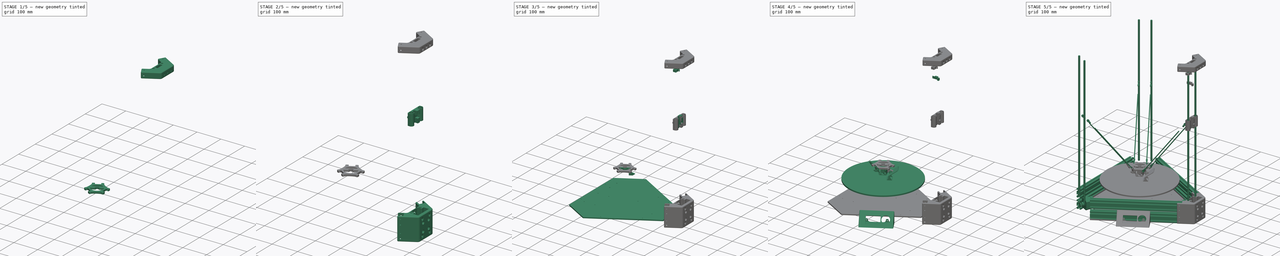
[diagram: build sequence overview — one tinted view per stage of 5, left to right]
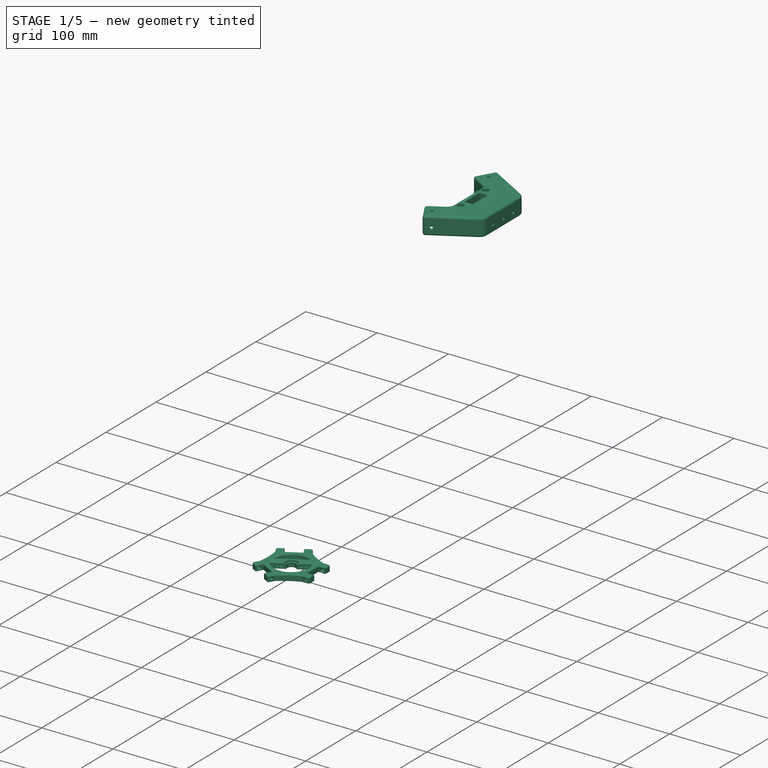
[diagram: stage 1 of 5 — iso view after this stage's code; geometry added in this stage tinted green]
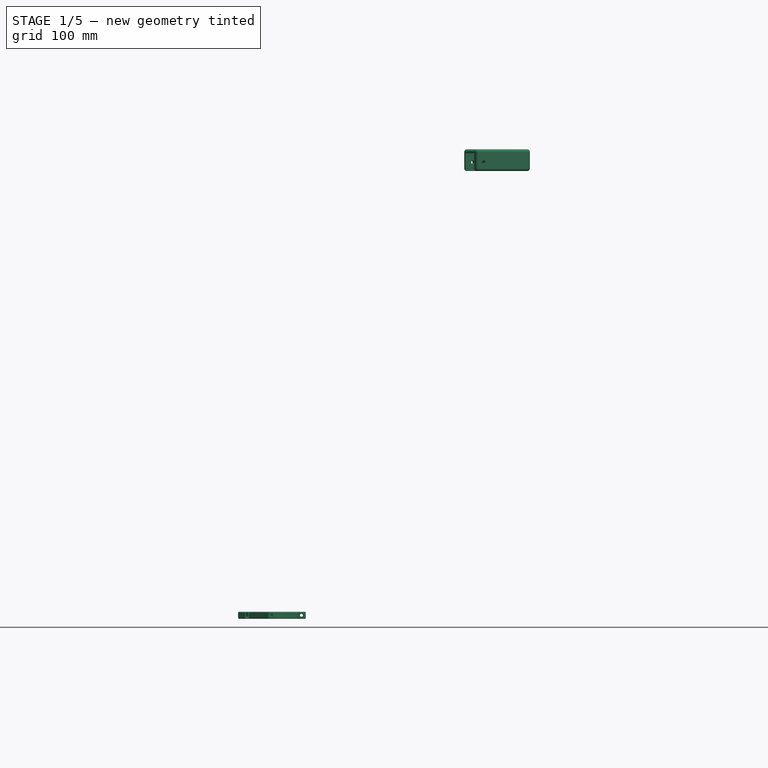
[diagram: stage 1 of 5 — front view after this stage's code; geometry added in this stage tinted green]
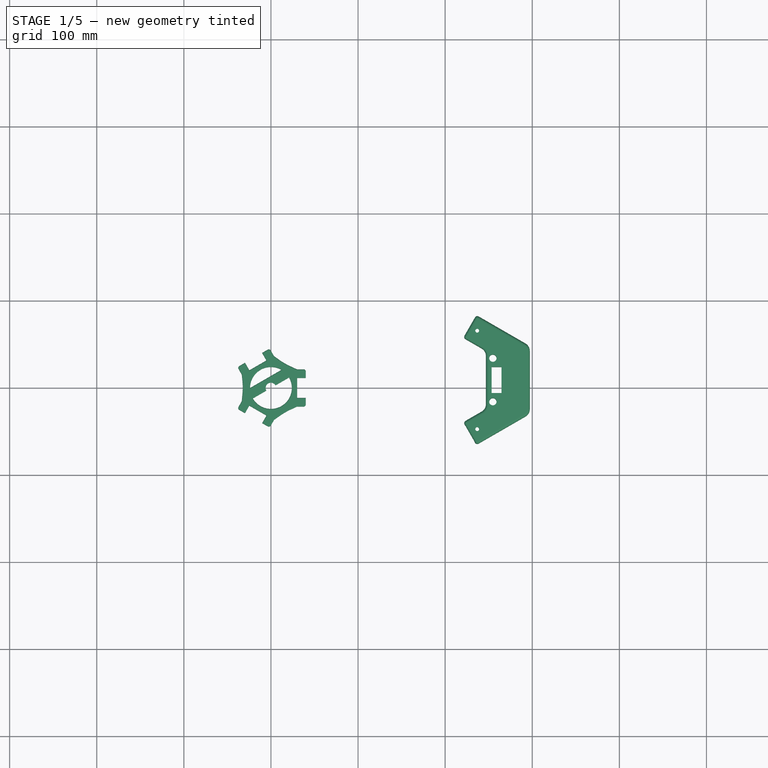
[diagram: stage 1 of 5 — top view after this stage's code; geometry added in this stage tinted green]
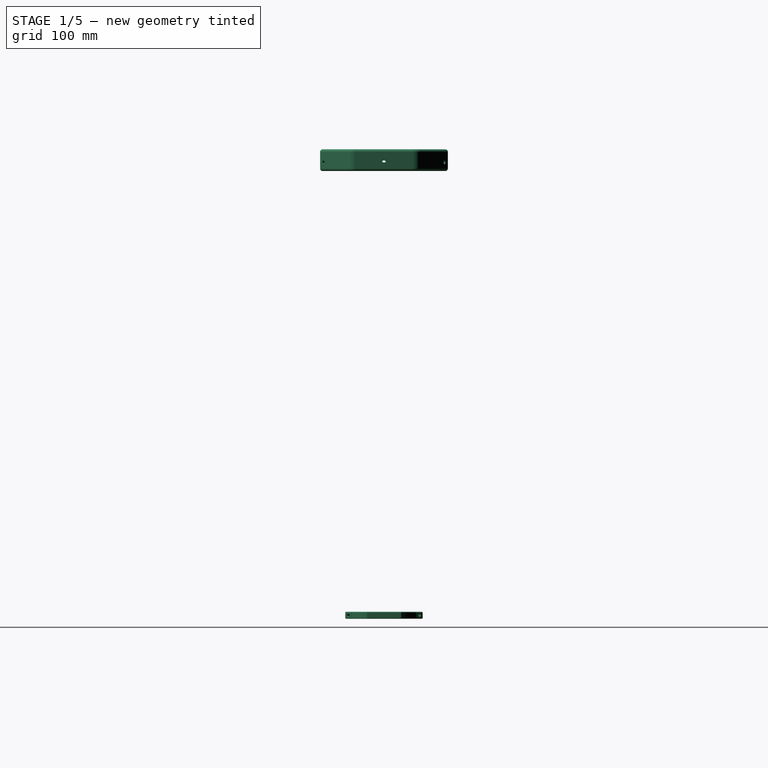
[diagram: stage 1 of 5 — right view after this stage's code; geometry added in this stage tinted green]
FCSTD DOCUMENT  (FreeCAD 0.16R6707 (Git))
Label: AX-02
License: CreativeCommons Attribution-NonCommercial
LicenseURL: http://creativecommons.org/licenses/by-nc/4.0/
objects: Sketcher::SketchObject×91, PartDesign::Pocket×62, Part::Feature×61, Part::MultiFuse×36, PartDesign::Fillet×34, PartDesign::Pad×29, App::DocumentObjectGroup×19, Part::Cylinder×13, Drawing::FeatureViewPython×10, PartDesign::Chamfer×4, Part::Chamfer×3, Part::Cut×3, Drawing::FeatureViewPart×2, Drawing::FeaturePage×1, PartDesign::Mirrored×1, PartDesign::LinearPattern×1, Part::Fillet×1
note: 430 computed .brp shape members not serialized (recipe doc carries the construction recipe); baked Part::Feature solids carry a one-line shape summary decoded from their .brp

FEATURE [Sketcher::SketchObject] Sketch002
  ExternalGeometry = -> [Pad]
  Placement = pos=(0,0,90) rot=(0,0,1;0rad)
  Support = -> Pad [Face14]
  sketch-geometry (2):
    g0: Circle CenterX=254.8 CenterY=25 CenterZ=0 NormalX=0 NormalY=0 NormalZ=1 Radius=4.15
    g1: Circle CenterX=254.8 CenterY=-25 CenterZ=0 NormalX=0 NormalY=0 NormalZ=1 Radius=4.15
  constraints (5):
    c: Symmetric(g0,g1,g-1)
    c: Radius(g1) = 4.15
    c: Equal(g1,g0)
    c: DistanceY(g1,g0) = 50
    c: DistanceX(g-3,g1) = 10
FEATURE [Part::Feature] Part__Feature005  label="PM Wantai 609  Nema 17"
  Placement = pos=(114,0,45) rot=(0.57735,0.57735,0.57735;2.0944rad)
  shape: bbox 60 x 48.3 x 42.3 mm, 226 faces (baked)
FEATURE [Part::Feature] Part__Feature006  label="GT2 Pulley"
  Placement = pos=(165,0,45) rot=(0,-1,0;1.5708rad)
  shape: bbox 16.13 x 17.78 x 17.78 mm, 134 faces (baked)
FEATURE [Sketcher::SketchObject] Sketch040
  Placement = pos=(0,0,670) rot=(0,0,1;0rad)
  sketch-geometry (8):
    g0: LineSegment StartX=297.2 StartY=39 StartZ=0 EndX=235.819 EndY=74.4382 EndZ=0
    g1: LineSegment StartX=235.819 StartY=74.4382 StartZ=0 EndX=220.819 EndY=48.4574 EndZ=0
    g2: LineSegment StartX=220.819 StartY=48.4574 StartZ=0 EndX=246.8 EndY=33.4574 EndZ=0
    g3: LineSegment StartX=246.8 StartY=33.4574 StartZ=0 EndX=246.8 EndY=-33.4574 EndZ=0
    g4: LineSegment StartX=246.8 StartY=-33.4574 StartZ=0 EndX=220.819 EndY=-48.4574 EndZ=0
    g5: LineSegment StartX=220.819 StartY=-48.4574 StartZ=0 EndX=235.819 EndY=-74.4382 EndZ=0
    g6: LineSegment StartX=235.819 StartY=-74.4382 StartZ=0 EndX=297.2 EndY=-39 EndZ=0
    g7: LineSegment StartX=297.2 StartY=39 StartZ=0 EndX=297.2 EndY=-39 EndZ=0
  constraints (25):
    c: Coincident(g0,g1)
    c: Coincident(g1,g2)
    c: Coincident(g2,g3)
    c: Vertical(g3)
    c: Coincident(g3,g4)
    c: Coincident(g4,g5)
    c: Coincident(g5,g6)
    c: Symmetric(g2,g3,g-1)
    c: Parallel(g2,g0)
    c: Parallel(g4,g6)
    c: Angle(g3,g4) = 2.0944
    c: Angle(g2,g3) = 2.0944
    c: Distance(g1) = 30
    c: Equal(g5,g1)
    c: Equal(g4,g2)
    c: Coincident(g7,g6)
    c: Vertical(g7)
    c: Coincident(g0,g7)
    c: Symmetric(g0,g6,g-1)
    c: DistanceY(g7,g7) = 78
    c: Angle(g1,g0) = 1.5708
    c: Angle(g6,g5) = 1.5708
    c: Distance(g4) = 30
    c: DistanceX(g3,g6) = 50.4
    c: DistanceX(g-1,g3) = 246.8
FEATURE [PartDesign::Pad] Pad006
  Length = 25
  Length2 = 100
  Placement = pos=(0,0,670) rot=(0,0,1;0rad)
  Sketch = -> Sketch040
  Type = 0
FEATURE [Sketcher::SketchObject] Sketch
  ExternalGeometry = -> [Pad006]
  Placement = pos=(0,0,670) rot=(1,0,0;3.14159rad)
  Support = -> Pad006 [Face9]
  sketch-geometry (4):
    g0: LineSegment StartX=266.8 StartY=30.2 StartZ=0 EndX=287.2 EndY=30.2 EndZ=0
    g1: LineSegment StartX=287.2 StartY=30.2 StartZ=0 EndX=287.2 EndY=-30.2 EndZ=0
    g2: LineSegment StartX=287.2 StartY=-30.2 StartZ=0 EndX=266.8 EndY=-30.2 EndZ=0
    g3: LineSegment StartX=266.8 StartY=-30.2 StartZ=0 EndX=266.8 EndY=30.2 EndZ=0
  constraints (12):
    c: Coincident(g0,g1)
    c: Coincident(g1,g2)
    c: Coincident(g2,g3)
    c: Coincident(g3,g0)
    c: Horizontal(g0)
    c: Horizontal(g2)
    c: Vertical(g1)
    c: Vertical(g3)
    c: Symmetric(g2,g0,g-1)
    c: DistanceX(g-3,g2) = 20
    c: DistanceX(g2,g2) = 20.4
    c: DistanceY(g1,g1) = 60.4
FEATURE [PartDesign::Pocket] Pocket033
  Length = 20
  Placement = pos=(0,0,670) rot=(0,0,1;0rad)
  Sketch = -> Sketch
  Type = 0
FEATURE [Sketcher::SketchObject] Sketch041
  ExternalGeometry = -> [Pocket033]
  Placement = pos=(144.632,-83.5032,670) rot=(-0.377964,0.654654,0.654654;3.86433rad)
  Support = -> Pocket033 [Face3]
  sketch-geometry (4):
    g0: LineSegment StartX=-177.575 StartY=0 StartZ=0 EndX=-157.175 EndY=0 EndZ=0
    g1: LineSegment StartX=-157.175 StartY=0 StartZ=0 EndX=-157.175 EndY=20.4 EndZ=0
    g2: LineSegment StartX=-157.175 StartY=20.4 StartZ=0 EndX=-177.575 EndY=20.4 EndZ=0
    g3: LineSegment StartX=-177.575 StartY=20.4 StartZ=0 EndX=-177.575 EndY=0 EndZ=0
  constraints (12):
    c: Coincident(g0,g1)
    c: Coincident(g1,g2)
    c: Coincident(g2,g3)
    c: Coincident(g3,g0)
    c: Horizontal(g0)
    c: Horizontal(g2)
    c: Vertical(g1)
    c: Vertical(g3)
    c: PointOnObject(g0,g-1)
    c: Equal(g0,g1)
    c: DistanceX(g0,g0) = 20.4
    c: DistanceX(g0,g-3) = 4.8
FEATURE [PartDesign::Pocket] Pocket034
  Length = 20
  Placement = pos=(0,0,670) rot=(0,0,1;0rad)
  Sketch = -> Sketch041
  Type = 0
FEATURE [Sketcher::SketchObject] Sketch042
  ExternalGeometry = -> [Pocket034]
  Placement = pos=(144.632,83.5032,670) rot=(0.774597,-0.447214,-0.447214;1.82348rad)
  Support = -> Pocket034 [Face14]
  sketch-geometry (4):
    g0: LineSegment StartX=157.175 StartY=0 StartZ=0 EndX=177.575 EndY=0 EndZ=0
    g1: LineSegment StartX=177.575 StartY=0 StartZ=0 EndX=177.575 EndY=20.4 EndZ=0
    g2: LineSegment StartX=177.575 StartY=20.4 StartZ=0 EndX=157.175 EndY=20.4 EndZ=0
    g3: LineSegment StartX=157.175 StartY=20.4 StartZ=0 EndX=157.175 EndY=0 EndZ=0
  constraints (12):
    c: Coincident(g0,g1)
    c: Coincident(g1,g2)
    c: Coincident(g2,g3)
    c: Coincident(g3,g0)
    c: Horizontal(g0)
    c: Horizontal(g2)
    c: Vertical(g1)
    c: Vertical(g3)
    c: PointOnObject(g0,g-1)
    c: Equal(g0,g1)
    c: DistanceX(g0,g0) = 20.4
    c: DistanceX(g-3,g2) = 4.8
FEATURE [PartDesign::Pocket] Pocket035
  Length = 20
  Placement = pos=(0,0,670) rot=(0,0,1;0rad)
  Sketch = -> Sketch042
  Type = 0
FEATURE [Sketcher::SketchObject] Sketch043
  ExternalGeometry = -> [Pocket035]
  Placement = pos=(91.1875,-157.941,670) rot=(0.935113,0.250563,0.250563;1.63783rad)
  Support = -> Pocket035 [Face6]
  sketch-geometry (1):
    g0: Circle CenterX=177.006 CenterY=10 CenterZ=0 NormalX=0 NormalY=0 NormalZ=1 Radius=2.2
  constraints (3):
    c: DistanceY(g-1,g0) = 10
    c: DistanceX(g-3,g0) = 10
    c: Radius(g0) = 2.2
FEATURE [PartDesign::Pocket] Pocket036
  Length = 5
  Placement = pos=(0,0,670) rot=(0,0,1;0rad)
  Sketch = -> Sketch043
  Type = 1
FEATURE [Sketcher::SketchObject] Sketch044
  ExternalGeometry = -> [Pocket036]
  Placement = pos=(91.1875,157.941,670) rot=(0.186157,0.694747,0.694747;2.77349rad)
  Support = -> Pocket036 [Face1]
  sketch-geometry (1):
    g0: Circle CenterX=-177.006 CenterY=10 CenterZ=0 NormalX=0 NormalY=0 NormalZ=1 Radius=2.2
  constraints (3):
    c: DistanceX(g0,g-3) = 10
    c: DistanceY(g-1,g0) = 10
    c: Radius(g0) = 2.2
FEATURE [PartDesign::Pocket] Pocket037
  Length = 5
  Placement = pos=(0,0,670) rot=(0,0,1;0rad)
  Sketch = -> Sketch044
  Type = 1
FEATURE [Sketcher::SketchObject] Sketch045
  ExternalGeometry = -> [Pocket037]
  Placement = pos=(0,0,695) rot=(0,0,1;0rad)
  Support = -> Pocket037 [Face4]
  sketch-geometry (4):
    g0: LineSegment StartX=253.4 StartY=15 StartZ=0 EndX=264.7 EndY=15 EndZ=0
    g1: LineSegment StartX=264.7 StartY=15 StartZ=0 EndX=264.7 EndY=-15 EndZ=0
    g2: LineSegment StartX=264.7 StartY=-15 StartZ=0 EndX=253.4 EndY=-15 EndZ=0
    g3: LineSegment StartX=253.4 StartY=-15 StartZ=0 EndX=253.4 EndY=15 EndZ=0
  constraints (11):
    c: Coincident(g0,g1)
    c: Coincident(g2,g3)
    c: Coincident(g3,g0)
    c: Horizontal(g0)
    c: Horizontal(g2)
    c: Vertical(g1)
    c: Vertical(g3)
    c: Symmetric(g2,g0,g-1)
    c: DistanceX(g0,g0) = 11.3
    c: DistanceY(g1,g1) = 30
    c: DistanceX(g-3,g1) = 17.9
FEATURE [PartDesign::Pocket] Pocket038
  Length = 5
  Placement = pos=(0,0,670) rot=(0,0,1;0rad)
  Sketch = -> Sketch045
  Type = 1
FEATURE [Sketcher::SketchObject] Sketch230
  sketch-geometry (10):
    g0: LineSegment StartX=30 StartY=21.4 StartZ=0 EndX=40 EndY=21.4 EndZ=0
    g1: LineSegment StartX=40 StartY=21.4 StartZ=0 EndX=40 EndY=11.4 EndZ=0
    g2: LineSegment StartX=40 StartY=11.4 StartZ=0 EndX=30 EndY=11.4 EndZ=0
    g3: LineSegment StartX=30 StartY=11.4 StartZ=0 EndX=30 EndY=-11.4 EndZ=0
    g4: LineSegment StartX=30 StartY=-11.4 StartZ=0 EndX=40 EndY=-11.4 EndZ=0
    g5: LineSegment StartX=40 StartY=-11.4 StartZ=0 EndX=40 EndY=-21.4 EndZ=0
    g6: LineSegment StartX=40 StartY=-21.4 StartZ=0 EndX=30 EndY=-21.4 EndZ=0
    g7: LineSegment StartX=30 StartY=-21.4 StartZ=0 EndX=0 EndY=-35 EndZ=0
    g8: LineSegment StartX=30 StartY=21.4 StartZ=0 EndX=0 EndY=35 EndZ=0
    g9: LineSegment StartX=0 StartY=35 StartZ=0 EndX=0 EndY=-35 EndZ=0
  constraints (29):
    c: Horizontal(g0)
    c: Coincident(g0,g1)
    c: Vertical(g1)
    c: Coincident(g1,g2)
    c: Horizontal(g2)
    c: Coincident(g2,g3)
    c: Vertical(g3)
    c: Coincident(g3,g4)
    c: Horizontal(g4)
    c: Coincident(g4,g5)
    c: Vertical(g5)
    c: Coincident(g5,g6)
    c: Horizontal(g6)
    c: Coincident(g6,g7)
    c: Symmetric(g2,g3,g-1)
    c: Coincident(g8,g0)
    c: Symmetric(g7,g8,g-1)
    c: Equal(g2,g0)
    c: Equal(g0,g4)
    c: Equal(g4,g6)
    c: DistanceY(g5,g0) = 42.8
    c: Equal(g1,g5)
    c: DistanceY(g1,g1) = 10
    c: DistanceX(g2,g2) = 10
    c: PointOnObject(g9,g-2)
    c: Coincident(g9,g7)
    c: DistanceX(g-1,g3) = 30
    c: Coincident(g8,g9)
    c: DistanceY(g9,g9) = 70
FEATURE [PartDesign::Pad] Pad055
  Length = 8
  Length2 = 100
  Sketch = -> Sketch230
  Type = 0
FEATURE [Sketcher::SketchObject] Sketch231
  Placement = pos=(0,0,0) rot=(0,0,1;2.0944rad)
  sketch-geometry (10):
    g0: LineSegment StartX=30 StartY=21.3 StartZ=0 EndX=40 EndY=21.3 EndZ=0
    g1: LineSegment StartX=40 StartY=21.3 StartZ=0 EndX=40 EndY=11.3 EndZ=0
    g2: LineSegment StartX=40 StartY=11.3 StartZ=0 EndX=30 EndY=11.3 EndZ=0
    g3: LineSegment StartX=30 StartY=11.3 StartZ=0 EndX=30 EndY=-11.3 EndZ=0
    g4: LineSegment StartX=30 StartY=-11.3 StartZ=0 EndX=40 EndY=-11.3 EndZ=0
    g5: LineSegment StartX=40 StartY=-11.3 StartZ=0 EndX=40 EndY=-21.3 EndZ=0
    g6: LineSegment StartX=40 StartY=-21.3 StartZ=0 EndX=30 EndY=-21.3 EndZ=0
    g7: LineSegment StartX=30 StartY=-21.3 StartZ=0 EndX=0 EndY=-35 EndZ=0
    g8: LineSegment StartX=30 StartY=21.3 StartZ=0 EndX=0 EndY=35 EndZ=0
    g9: LineSegment StartX=0 StartY=35 StartZ=0 EndX=0 EndY=-35 EndZ=0
  constraints (29):
    c: Horizontal(g0)
    c: Coincident(g0,g1)
    c: Vertical(g1)
    c: Coincident(g1,g2)
    c: Horizontal(g2)
    c: Coincident(g2,g3)
    c: Vertical(g3)
    c: Coincident(g3,g4)
    c: Horizontal(g4)
    c: Coincident(g4,g5)
    c: Vertical(g5)
    c: Coincident(g5,g6)
    c: Horizontal(g6)
    c: Coincident(g6,g7)
    c: Symmetric(g2,g3,g-1)
    c: Coincident(g8,g0)
    c: Symmetric(g7,g8,g-1)
    c: Equal(g2,g0)
    c: Equal(g0,g4)
    c: Equal(g4,g6)
    c: DistanceY(g5,g0) = 42.6
    c: Equal(g1,g5)
    c: DistanceY(g1,g1) = 10
    c: DistanceX(g2,g2) = 10
    c: PointOnObject(g9,g-2)
    c: Coincident(g9,g7)
    c: DistanceX(g-1,g3) = 30
    c: Coincident(g8,g9)
    c: DistanceY(g9,g9) = 70
FEATURE [Sketcher::SketchObject] Sketch232
  Placement = pos=(0,0,0) rot=(0,0,-1;2.0944rad)
  sketch-geometry (10):
    g0: LineSegment StartX=30 StartY=21.4 StartZ=0 EndX=40 EndY=21.4 EndZ=0
    g1: LineSegment StartX=40 StartY=21.4 StartZ=0 EndX=40 EndY=11.4 EndZ=0
    g2: LineSegment StartX=40 StartY=11.4 StartZ=0 EndX=30 EndY=11.4 EndZ=0
    g3: LineSegment StartX=30 StartY=11.4 StartZ=0 EndX=30 EndY=-11.4 EndZ=0
    g4: LineSegment StartX=30 StartY=-11.4 StartZ=0 EndX=40 EndY=-11.4 EndZ=0
    g5: LineSegment StartX=40 StartY=-11.4 StartZ=0 EndX=40 EndY=-21.4 EndZ=0
    g6: LineSegment StartX=40 StartY=-21.4 StartZ=0 EndX=30 EndY=-21.4 EndZ=0
    g7: LineSegment StartX=30 StartY=-21.4 StartZ=0 EndX=0 EndY=-35 EndZ=0
    g8: LineSegment StartX=30 StartY=21.4 StartZ=0 EndX=0 EndY=35 EndZ=0
    g9: LineSegment StartX=0 StartY=35 StartZ=0 EndX=0 EndY=-35 EndZ=0
  constraints (29):
    c: Horizontal(g0)
    c: Coincident(g0,g1)
    c: Vertical(g1)
    c: Coincident(g1,g2)
    c: Horizontal(g2)
    c: Coincident(g2,g3)
    c: Vertical(g3)
    c: Coincident(g3,g4)
    c: Horizontal(g4)
    c: Coincident(g4,g5)
    c: Vertical(g5)
    c: Coincident(g5,g6)
    c: Horizontal(g6)
    c: Coincident(g6,g7)
    c: Symmetric(g2,g3,g-1)
    c: Coincident(g8,g0)
    c: Symmetric(g7,g8,g-1)
    c: Equal(g2,g0)
    c: Equal(g0,g4)
    c: Equal(g4,g6)
    c: DistanceY(g5,g0) = 42.8
    c: Equal(g1,g5)
    c: DistanceY(g1,g1) = 10
    c: DistanceX(g2,g2) = 10
    c: PointOnObject(g9,g-2)
    c: Coincident(g9,g7)
    c: DistanceX(g-1,g3) = 30
    c: Coincident(g8,g9)
    c: DistanceY(g9,g9) = 70
FEATURE [PartDesign::Pad] Pad056
  Length = 8
  Length2 = 100
  Placement = pos=(0,0,0) rot=(0,0,1;2.0944rad)
  Sketch = -> Sketch231
  Type = 0
FEATURE [PartDesign::Pad] Pad057
  Length = 8
  Length2 = 100
  Placement = pos=(0,0,0) rot=(0,0,-1;2.0944rad)
  Sketch = -> Sketch232
  Type = 0
FEATURE [Part::MultiFuse] Fusion036
  Placement = pos=(0,0,156) rot=(0,0,1;0rad)
  Shapes = -> [Pad055,Pad057,Pad056]
FEATURE [App::DocumentObjectGroup] Group023  label="Effector Ball Joints"
  Group = -> [Fusion029,Fusion032,Fusion035]
FEATURE [Sketcher::SketchObject] Sketch233
  Placement = pos=(18.5329,-10.7,156) rot=(0.774597,0.447214,0.447214;1.82348rad)
  Support = -> Fusion036 [Face1]
  sketch-geometry (1):
    g0: Circle CenterX=-35 CenterY=4 CenterZ=0 NormalX=0 NormalY=0 NormalZ=1 Radius=1.7
  constraints (3):
    c: DistanceY(g-1,g0) = 4
    c: DistanceX(g0,g-1) = 35
    c: Radius(g0) = 1.7
FEATURE [PartDesign::Pocket] Pocket176
  Length = 5
  Placement = pos=(0,0,156) rot=(0,0,1;0rad)
  Sketch = -> Sketch233
  Type = 1
FEATURE [Sketcher::SketchObject] Sketch234
  Placement = pos=(0,21.4,156) rot=(0,0.707107,0.707107;3.14159rad)
  Support = -> Pocket176 [Face17]
  sketch-geometry (1):
    g0: Circle CenterX=-35 CenterY=4 CenterZ=0 NormalX=0 NormalY=0 NormalZ=1 Radius=1.7
  constraints (3):
    c: DistanceY(g-1,g0) = 4
    c: DistanceX(g0,g-1) = 35
    c: Radius(g0) = 1.7
FEATURE [PartDesign::Pocket] Pocket177
  Length = 5
  Placement = pos=(0,0,156) rot=(0,0,1;0rad)
  Sketch = -> Sketch234
  Type = 1
FEATURE [Sketcher::SketchObject] Sketch235
  Placement = pos=(-18.4463,-10.65,156) rot=(0.774597,-0.447214,-0.447214;1.82348rad)
  Support = -> Pocket177 [Face8]
  sketch-geometry (1):
    g0: Circle CenterX=-35 CenterY=4 CenterZ=0 NormalX=0 NormalY=0 NormalZ=1 Radius=1.7
  constraints (3):
    c: DistanceY(g-1,g0) = 4
    c: DistanceX(g0,g-1) = 35
    c: Radius(g0) = 1.7
FEATURE [PartDesign::Pocket] Pocket178
  Length = 5
  Placement = pos=(0,0,156) rot=(0,0,1;0rad)
  Sketch = -> Sketch235
  Type = 1
FEATURE [Sketcher::SketchObject] Sketch236
  Placement = pos=(0,0,164) rot=(0,0,1;0rad)
  Support = -> Pocket178 [Face4]
  sketch-geometry (1):
    g0: Circle CenterX=0 CenterY=0 CenterZ=0 NormalX=0 NormalY=0 NormalZ=1 Radius=24
  constraints (2):
    c: Coincident(g0,g-1)
    c: Radius(g0) = 24
FEATURE [PartDesign::Pocket] Pocket179
  Length = 5
  Placement = pos=(0,0,156) rot=(0,0,1;0rad)
  Sketch = -> Sketch236
  Type = 1
FEATURE [Sketcher::SketchObject] Sketch294
  ExternalGeometry = -> [Pocket209]
  Placement = pos=(0,-17.6,645) rot=(0,0.707107,0.707107;3.14159rad)
  Support = -> Pocket209 [Face11]
  sketch-geometry (5):
    g0: LineSegment StartX=-260.8 StartY=8 StartZ=0 EndX=-248.8 EndY=8 EndZ=0
    g1: LineSegment StartX=-248.8 StartY=8 StartZ=0 EndX=-248.8 EndY=2 EndZ=0
    g2: LineSegment StartX=-248.8 StartY=2 StartZ=0 EndX=-260.8 EndY=2 EndZ=0
    g3: LineSegment StartX=-260.8 StartY=2 StartZ=0 EndX=-260.8 EndY=8 EndZ=0
    g4: LineSegment [constr] StartX=-264.3 StartY=5 StartZ=0 EndX=-245.3 EndY=5 EndZ=0
  constraints (15):
    c: Coincident(g0,g1)
    c: Coincident(g1,g2)
    c: Coincident(g2,g3)
    c: Coincident(g3,g0)
    c: Horizontal(g0)
    c: Horizontal(g2)
    c: Vertical(g1)
    c: Vertical(g3)
    c: DistanceX(g0,g0) = 12
    c: DistanceY(g3,g3) = 6
    c: Symmetric(g0,g2,g4)
    c: DistanceY(g-1,g4) = 5
    c: Coincident(g4,g-4)
    c: Coincident(g4,g-3)
    c: DistanceX(g4,g2) = 3.5
FEATURE [Drawing::FeatureViewPart] Ortho  label="Ortho_0_0"
  Direction = (0,0,1)
  HiddenWidth = 0.15
  LineWidth = 0.35
  Rotation = 90
  Scale = 0.3
  ShowHiddenLines = false
  ShowSmoothLines = false
  Tolerance = 0.05
  ViewResult = <g id="Ortho_0_0"\n   transform="rotate(90,125,108) translate(125,108) scale(0.3,0.3)"\n  >\n<g   stroke="rgb(0, 0, 0)"\n   stroke-width="1.16667"\n   stroke-linecap="butt"\n   stroke-linejoin="miter"\n   fill="none"\n   transform="scale(1,-1)"\n  >\n<path id= "1" d=" M -177 146.174 L -177 -146.826 " />\n<path id= "2" d=" M -177 146.174 L -39 226.5 " />\n<path id= "3" d=" M -177 -146.826 L -39 -226.5 " />\n<path id= "4" d=" M -39 226.5 L 215 79.853 " />\n<path id= "5" d=" M -39 -226.5 L 215 -79.147 " />\n<path id= "6" d=" M 215 79.853 L 215 -79.147 " />\n<circle cx ="168.5" cy ="-95.5" r ="2.2" /><circle cx ="-152.5" cy ="0" r ="1.7" /><circle cx ="168.5" cy ="95.5" r ="2.2" /><circle cx ="-168.5" cy ="-95.5" r ="2.2" /><circle cx ="-168.5" cy ="95.5" r ="2.2" /><circle cx ="76.25" cy ="132.069" r ="1.7" /><circle cx ="0" cy ="193" r ="2.2" /><circle cx ="76.25" cy ="-132.069" r ="1.7" /><circle cx ="0" cy ="-193" r ="2.2" /></g>\n</g>
  Visible = true
  X = 125
  Y = 108
FEATURE [Drawing::FeatureViewPython] dim001  # drawing view (typed FeaturePython)
  Rotation = 0
  ViewResult = <g> \n  <line x1="78.952200" y1="56.100000" x2="19.000000" y2="56.100000" style="stroke:rgb(0,0,255);stroke-width:0.50" />\n<line x1="98.955900" y1="173.700000" x2="19.000000" y2="173.700000" style="stroke:rgb(0,0,255);stroke-width:0.50" />\n<line x1="20.000000" y1="56.100000" x2="20.000000" y2="173.700000" style="stroke:rgb(0,0,255);stroke-width:0.50" /> \n  <polygon points="20.000000,173.700000 21.000000,170.700000 20.000000,169.700000 19.000000,170.700000" style="fill:rgb(0,0,255);stroke:rgb(0,0,255);stroke-width:0" /><polygon points="20.000000,56.100000 19.000000,59.100000 20.000000,60.100000 21.000000,59.100000" style="fill:rgb(0,0,255);stroke:rgb(0,0,255);stroke-width:0" /> \n  <text x="18.000000" y="114.900000" font-family="inherit" font-size="3.6" fill="rgb(0,0,255)" text-anchor="middle" transform="rotate(-90.000000 18.000000,114.900000)" >392</text> </g>
  Visible = true
  X = 0
  Y = 0
  arrowL1 = 3
  arrowL2 = 1
  arrowW = 2
  arrow_scheme = 0
  autoPlaceOffset = 2
  autoPlaceText = true
  click1_x = 20
  click1_y = 165.228
  click2_x = 20
  click2_y = 165.228
  comma_decimal_place = false
  dimension_line_overshoot = 1
  gap_datum_points = 2
  halfDimension_linear = false
  lineColor = rgb(0,0,255)
  strokeWidth = 0.5
  textFormat_linear = %(value)3.3f
  textRenderer_color = rgb(0,0,255)
  textRenderer_family = inherit
  textRenderer_size = 3.6
  unit_custom_scale = 1
  unit_scheme = 0
FEATURE [Drawing::FeatureViewPython] dim002  # drawing view (typed FeaturePython)
  Rotation = 0
  ViewResult = <g> \n  <line x1="100.955900" y1="175.700000" x2="100.955900" y2="201.228400" style="stroke:rgb(0,0,255);stroke-width:0.50" />\n<line x1="148.955900" y1="175.700000" x2="148.955900" y2="201.228400" style="stroke:rgb(0,0,255);stroke-width:0.50" />\n<line x1="100.955900" y1="200.228400" x2="148.955900" y2="200.228400" style="stroke:rgb(0,0,255);stroke-width:0.50" /> \n  <polygon points="148.955900,200.228400 145.955900,199.228400 144.955900,200.228400 145.955900,201.228400" style="fill:rgb(0,0,255);stroke:rgb(0,0,255);stroke-width:0" /><polygon points="100.955900,200.228400 103.955900,201.228400 104.955900,200.228400 103.955900,199.228400" style="fill:rgb(0,0,255);stroke:rgb(0,0,255);stroke-width:0" /> \n  <text x="124.955900" y="198.228400" font-family="inherit" font-size="3.6" fill="rgb(0,0,255)" text-anchor="middle" transform="rotate(0.000000 124.955900,198.228400)" >160</text> </g>
  Visible = true
  X = 0
  Y = 0
  arrowL1 = 3
  arrowL2 = 1
  arrowW = 2
  arrow_scheme = 0
  autoPlaceOffset = 2
  autoPlaceText = true
  click1_x = 150
  click1_y = 200.228
  click2_x = 150
  click2_y = 200.228
  comma_decimal_place = false
  dimension_line_overshoot = 1
  gap_datum_points = 2
  halfDimension_linear = false
  lineColor = rgb(0,0,255)
  strokeWidth = 0.5
  textFormat_linear = %(value)3.3f
  textRenderer_color = rgb(0,0,255)
  textRenderer_family = inherit
  textRenderer_size = 3.6
  unit_custom_scale = 1
  unit_scheme = 0
FEATURE [Drawing::FeatureViewPython] dim003  # drawing view (typed FeaturePython)
  Rotation = 0
  ViewResult = <g> \n  <line x1="80.952200" y1="54.100000" x2="80.952200" y2="24.228400" style="stroke:rgb(0,0,255);stroke-width:0.50" />\n<line x1="168.852200" y1="54.100000" x2="168.852200" y2="24.228400" style="stroke:rgb(0,0,255);stroke-width:0.50" />\n<line x1="80.952200" y1="25.228400" x2="168.852200" y2="25.228400" style="stroke:rgb(0,0,255);stroke-width:0.50" /> \n  <polygon points="168.852200,25.228400 165.852200,24.228400 164.852200,25.228400 165.852200,26.228400" style="fill:rgb(0,0,255);stroke:rgb(0,0,255);stroke-width:0" /><polygon points="80.952200,25.228400 83.952200,26.228400 84.952200,25.228400 83.952200,24.228400" style="fill:rgb(0,0,255);stroke:rgb(0,0,255);stroke-width:0" /> \n  <text x="124.902200" y="23.228400" font-family="inherit" font-size="3.6" fill="rgb(0,0,255)" text-anchor="middle" transform="rotate(0.000000 124.902200,23.228400)" >293</text> </g>
  Visible = true
  X = 0
  Y = 0
  arrowL1 = 3
  arrowL2 = 1
  arrowW = 2
  arrow_scheme = 0
  autoPlaceOffset = 2
  autoPlaceText = true
  click1_x = 160
  click1_y = 25.2284
  click2_x = 160
  click2_y = 25.2284
  comma_decimal_place = false
  dimension_line_overshoot = 1
  gap_datum_points = 2
  halfDimension_linear = false
  lineColor = rgb(0,0,255)
  strokeWidth = 0.5
  textFormat_linear = %(value)3.3f
  textRenderer_color = rgb(0,0,255)
  textRenderer_family = inherit
  textRenderer_size = 3.6
  unit_custom_scale = 1
  unit_scheme = 0
FEATURE [Drawing::FeatureViewPython] dim004  # drawing view (typed FeaturePython)
  Rotation = 0
  ViewResult = <g> \n  <line x1="57.050000" y1="99.500000" x2="57.050000" y2="116.228400" style="stroke:rgb(0,0,255);stroke-width:0.50" />\n<line x1="192.950000" y1="99.500000" x2="192.950000" y2="116.228400" style="stroke:rgb(0,0,255);stroke-width:0.50" />\n<line x1="57.050000" y1="115.228400" x2="192.950000" y2="115.228400" style="stroke:rgb(0,0,255);stroke-width:0.50" /> \n  <polygon points="192.950000,115.228400 189.950000,114.228400 188.950000,115.228400 189.950000,116.228400" style="fill:rgb(0,0,255);stroke:rgb(0,0,255);stroke-width:0" /><polygon points="57.050000,115.228400 60.050000,116.228400 61.050000,115.228400 60.050000,114.228400" style="fill:rgb(0,0,255);stroke:rgb(0,0,255);stroke-width:0" /> \n  <text x="125.000000" y="113.228400" font-family="inherit" font-size="3.6" fill="rgb(0,0,255)" text-anchor="middle" transform="rotate(0.000000 125.000000,113.228400)" >453</text> </g>
  Visible = true
  X = 0
  Y = 0
  arrowL1 = 3
  arrowL2 = 1
  arrowW = 2
  arrow_scheme = 0
  autoPlaceOffset = 2
  autoPlaceText = true
  click1_x = 185
  click1_y = 115.228
  click2_x = 185
  click2_y = 115.228
  comma_decimal_place = false
  dimension_line_overshoot = 1
  gap_datum_points = 2
  halfDimension_linear = false
  lineColor = rgb(0,0,255)
  strokeWidth = 0.5
  textFormat_linear = %(value)3.3f
  textRenderer_color = rgb(0,0,255)
  textRenderer_family = inherit
  textRenderer_size = 3.6
  unit_custom_scale = 1
  unit_scheme = 0
FEATURE [Drawing::FeatureViewPython] dim005  # drawing view (typed FeaturePython)
  Rotation = 0
  ViewResult = <g> \n  <line x1="80.952200" y1="58.100000" x2="80.952200" y2="76.228400" style="stroke:rgb(0,0,255);stroke-width:0.50" />\n<line x1="57.050000" y1="95.500000" x2="57.050000" y2="74.228400" style="stroke:rgb(0,0,255);stroke-width:0.50" />\n<line x1="80.952200" y1="75.228400" x2="57.050000" y2="75.228400" style="stroke:rgb(0,0,255);stroke-width:0.50" /> \n  <polygon points="57.050000,75.228400 60.050000,76.228400 61.050000,75.228400 60.050000,74.228400" style="fill:rgb(0,0,255);stroke:rgb(0,0,255);stroke-width:0" /><polygon points="80.952200,75.228400 77.952200,74.228400 76.952200,75.228400 77.952200,76.228400" style="fill:rgb(0,0,255);stroke:rgb(0,0,255);stroke-width:0" /> \n  <text x="69.001100" y="73.228400" font-family="inherit" font-size="3.6" fill="rgb(0,0,255)" text-anchor="middle" transform="rotate(0.000000 69.001100,73.228400)" >79.674</text> </g>
  Visible = true
  X = 0
  Y = 0
  arrowL1 = 3
  arrowL2 = 1
  arrowW = 2
  arrow_scheme = 0
  autoPlaceOffset = 2
  autoPlaceText = true
  click1_x = 60
  click1_y = 75.2284
  click2_x = 60
  click2_y = 75.2284
  comma_decimal_place = false
  dimension_line_overshoot = 1
  gap_datum_points = 2
  halfDimension_linear = false
  lineColor = rgb(0,0,255)
  strokeWidth = 0.5
  textFormat_linear = %(value)3.3f
  textRenderer_color = rgb(0,0,255)
  textRenderer_family = inherit
  textRenderer_size = 3.6
  unit_custom_scale = 1
  unit_scheme = 0
FEATURE [Drawing::FeatureViewPython] dim006  # drawing view (typed FeaturePython)
  Rotation = 0
  ViewResult = <g> \n  <line x1="194.950000" y1="97.500000" x2="211.000000" y2="97.500000" style="stroke:rgb(0,0,255);stroke-width:0.50" />\n<line x1="150.955900" y1="173.700000" x2="211.000000" y2="173.700000" style="stroke:rgb(0,0,255);stroke-width:0.50" />\n<line x1="210.000000" y1="97.500000" x2="210.000000" y2="173.700000" style="stroke:rgb(0,0,255);stroke-width:0.50" /> \n  <polygon points="210.000000,173.700000 211.000000,170.700000 210.000000,169.700000 209.000000,170.700000" style="fill:rgb(0,0,255);stroke:rgb(0,0,255);stroke-width:0" /><polygon points="210.000000,97.500000 209.000000,100.500000 210.000000,101.500000 211.000000,100.500000" style="fill:rgb(0,0,255);stroke:rgb(0,0,255);stroke-width:0" /> \n  <text x="208.000000" y="135.600000" font-family="inherit" font-size="3.6" fill="rgb(0,0,255)" text-anchor="middle" transform="rotate(-90.000000 208.000000,135.600000)" >254</text> </g>
  Visible = true
  X = 0
  Y = 0
  arrowL1 = 3
  arrowL2 = 1
  arrowW = 2
  arrow_scheme = 0
  autoPlaceOffset = 2
  autoPlaceText = true
  click1_x = 210
  click1_y = 150.228
  click2_x = 210
  click2_y = 150.228
  comma_decimal_place = false
  dimension_line_overshoot = 1
  gap_datum_points = 2
  halfDimension_linear = false
  lineColor = rgb(0,0,255)
  strokeWidth = 0.5
  textFormat_linear = %(value)3.3f
  textRenderer_color = rgb(0,0,255)
  textRenderer_family = inherit
  textRenderer_size = 3.6
  unit_custom_scale = 1
  unit_scheme = 0
FEATURE [Drawing::FeatureViewPython] dim007  # drawing view (typed FeaturePython)
  Rotation = 0
  ViewResult = <g> <path d = "M 162.189629 150.778513 A 26.467455 26.467455 0 0 0 122.488445 173.700000" style="stroke:rgb(0,0,255);stroke-width:0.50;fill:none" />\n<polygon points="162.189629,150.778513 160.091553,148.412488 158.725528,148.778513 159.091553,150.144538" style="fill:rgb(0,0,255);stroke:rgb(0,0,255);stroke-width:0" />\n<polygon points="122.488445,173.700000 123.488445,170.700000 122.488445,169.700000 121.488445,170.700000" style="fill:rgb(0,0,255);stroke:rgb(0,0,255);stroke-width:0" />\n<text x="135.000000" y="155.228400" font-family="inherit" font-size="3.6" fill="rgb(0,0,255)" text-anchor="-2.21782904527"  >120.0°</text> </g>
  Visible = true
  X = 0
  Y = 0
  arrowL1 = 3
  arrowL2 = 1
  arrowW = 2
  arrow_scheme = 0
  click1_x = 130
  click1_y = 155.228
  click2_x = 135
  click2_y = 155.228
  comma_decimal_place = false
  dimension_line_overshoot = 1
  gap_datum_points = 2
  lineColor = rgb(0,0,255)
  strokeWidth = 0.5
  textFormat_angular = %(value)3.1f°
  textRenderer_color = rgb(0,0,255)
  textRenderer_family = inherit
  textRenderer_size = 3.6
FEATURE [Drawing::FeatureViewPart] Ortho001  label="Ortho_0_0"
  Direction = (0,0,1)
  HiddenWidth = 0.15
  LineWidth = 0.35
  Rotation = 90
  Scale = 0.3
  ShowHiddenLines = false
  ShowSmoothLines = false
  Tolerance = 0.05
  ViewResult = <g id="Ortho_0_0"\n   transform="rotate(90,310,108) translate(310,108) scale(0.3,0.3)"\n  >\n<g   stroke="rgb(0, 0, 0)"\n   stroke-width="1.16667"\n   stroke-linecap="butt"\n   stroke-linejoin="miter"\n   fill="none"\n   transform="scale(1,-1)"\n  >\n<path id= "1" d=" M -177 146.174 L -177 -146.826 " />\n<path id= "2" d=" M -177 146.174 L -39 226.5 " />\n<path id= "3" d=" M -177 -146.826 L -39 -226.5 " />\n<path id= "4" d=" M -39 226.5 L 215 79.853 " />\n<path id= "5" d=" M -39 -226.5 L 215 -79.147 " />\n<path id= "6" d=" M 215 79.853 L 215 -79.147 " />\n<circle cx ="168.5" cy ="-95.5" r ="2.2" /><circle cx ="-152.5" cy ="0" r ="1.7" /><circle cx ="168.5" cy ="95.5" r ="2.2" /><circle cx ="-168.5" cy ="-95.5" r ="2.2" /><circle cx ="-168.5" cy ="95.5" r ="2.2" /><circle cx ="76.25" cy ="132.069" r ="1.7" /><circle cx ="0" cy ="193" r ="2.2" /><circle cx ="76.25" cy ="-132.069" r ="1.7" /><circle cx ="0" cy ="-193" r ="2.2" /></g>\n</g>
  Visible = true
  X = 310
  Y = 108
FEATURE [Drawing::FeatureViewPython] dim008  # drawing view (typed FeaturePython)
  Rotation = 0
  ViewResult = <g> \n  <line x1="280.825000" y1="56.110000" x2="280.825000" y2="40.094400" style="stroke:rgb(0,0,255);stroke-width:0.50" />\n<line x1="265.952200" y1="54.100000" x2="265.952200" y2="40.094400" style="stroke:rgb(0,0,255);stroke-width:0.50" />\n<line x1="280.825000" y1="41.094400" x2="265.952200" y2="41.094400" style="stroke:rgb(0,0,255);stroke-width:0.50" /> \n  <polygon points="265.952200,41.094400 268.952200,42.094400 269.952200,41.094400 268.952200,40.094400" style="fill:rgb(0,0,255);stroke:rgb(0,0,255);stroke-width:0" /><polygon points="280.825000,41.094400 277.825000,40.094400 276.825000,41.094400 277.825000,42.094400" style="fill:rgb(0,0,255);stroke:rgb(0,0,255);stroke-width:0" /> \n  <text x="273.388600" y="39.094400" font-family="inherit" font-size="3.6" fill="rgb(0,0,255)" text-anchor="middle" transform="rotate(0.000000 273.388600,39.094400)" >49.576</text> </g>
  Visible = true
  X = 0
  Y = 0
  arrowL1 = 3
  arrowL2 = 1
  arrowW = 2
  arrow_scheme = 0
  autoPlaceOffset = 2
  autoPlaceText = true
  click1_x = 270
  click1_y = 41.0944
  click2_x = 270
  click2_y = 41.0944
  comma_decimal_place = false
  dimension_line_overshoot = 1
  gap_datum_points = 2
  halfDimension_linear = false
  lineColor = rgb(0,0,255)
  strokeWidth = 0.5
  textFormat_linear = %(value)3.3f
  textRenderer_color = rgb(0,0,255)
  textRenderer_family = inherit
  textRenderer_size = 3.6
  unit_custom_scale = 1
  unit_scheme = 0
FEATURE [Drawing::FeatureViewPython] dim009  # drawing view (typed FeaturePython)
  Rotation = 0
  ViewResult = <g> \n  <line x1="280.825000" y1="56.110000" x2="280.825000" y2="40.094400" style="stroke:rgb(0,0,255);stroke-width:0.50" />\n<line x1="339.175000" y1="56.110000" x2="339.175000" y2="40.094400" style="stroke:rgb(0,0,255);stroke-width:0.50" />\n<line x1="280.825000" y1="41.094400" x2="339.175000" y2="41.094400" style="stroke:rgb(0,0,255);stroke-width:0.50" /> \n  <polygon points="339.175000,41.094400 336.175000,40.094400 335.175000,41.094400 336.175000,42.094400" style="fill:rgb(0,0,255);stroke:rgb(0,0,255);stroke-width:0" /><polygon points="280.825000,41.094400 283.825000,42.094400 284.825000,41.094400 283.825000,40.094400" style="fill:rgb(0,0,255);stroke:rgb(0,0,255);stroke-width:0" /> \n  <text x="310.000000" y="39.094400" font-family="inherit" font-size="3.6" fill="rgb(0,0,255)" text-anchor="middle" transform="rotate(0.000000 310.000000,39.094400)" >194.5</text> </g>
  Visible = true
  X = 0
  Y = 0
  arrowL1 = 3
  arrowL2 = 1
  arrowW = 2
  arrow_scheme = 0
  autoPlaceOffset = 2
  autoPlaceText = true
  click1_x = 335
  click1_y = 41.0944
  click2_x = 335
  click2_y = 41.0944
  comma_decimal_place = false
  dimension_line_overshoot = 1
  gap_datum_points = 2
  halfDimension_linear = false
  lineColor = rgb(0,0,255)
  strokeWidth = 0.5
  textFormat_linear = %(value)3.3f
  textRenderer_color = rgb(0,0,255)
  textRenderer_family = inherit
  textRenderer_size = 3.6
  unit_custom_scale = 1
  unit_scheme = 0
FEATURE [Drawing::FeatureViewPython] centerLines001  # drawing view (typed FeaturePython)
  Rotation = 0
  ViewResult = <g transform="scale(0.300000,0.300000)" stroke="rgb(0,0,255)"  stroke-width="1.066667" > <path d="M 936.083333,191.500000 L 936.083333,200.000000 "/>\n<path d="M 936.083333,191.500000 L 933.333333,191.500000 "/>\n<path d="M 936.083333,191.500000 L 936.083333,183.333333 "/>\n<path d="M 936.083333,191.500000 L 926.083333,191.500000 M 919.416667,191.500000 L 916.666667,191.500000 "/> </g> 
  Visible = true
  X = 0
  Y = 0
  centerLine_color = rgb(0,0,255)
  centerLine_len_dash = 6
  centerLine_len_dot = 3
  centerLine_len_gap = 2
  centerLine_width = 0.32
  click1_x = 280
  click1_y = 60
  click2_x = 275
  click2_y = 55
FEATURE [Drawing::FeaturePage] Page  label="Acrylic Cover Drawing"
  EditableTexts = AUTHOR NAME | CREATION DATE | SUPERVISOR NAME | CHECK DATE | SCALE | WEIGHT | NUMBER | SHEET | TITLE | SUBTITLE
  Group = -> [Ortho,dim001,dim002,dim003,dim004,dim005,dim006,dim007,Ortho001,dim008,dim009,centerLines001]
FEATURE [PartDesign::Pocket] Pocket211
  Length = 20
  Placement = pos=(0,0,670) rot=(0,0,1;0rad)
  Sketch = -> Sketch048
  Type = 0
FEATURE [Sketcher::SketchObject] Sketch049
  Placement = pos=(0,0,695) rot=(0,0,1;0rad)
  Support = -> Pocket211 [Face4]
  sketch-geometry (2):
    g0: Circle CenterX=236.8 CenterY=56.5 CenterZ=0 NormalX=0 NormalY=0 NormalZ=1 Radius=2.2
    g1: Circle CenterX=236.8 CenterY=-56.5 CenterZ=0 NormalX=0 NormalY=0 NormalZ=1 Radius=2.2
  constraints (5):
    c: Radius(g1) = 2.2
    c: Equal(g1,g0)
    c: Symmetric(g1,g0,g-1)
    c: DistanceY(g-1,g0) = 56.5
    c: DistanceX(g-1,g0) = 236.8
FEATURE [PartDesign::Pocket] Pocket212
  Length = 5
  Placement = pos=(0,0,670) rot=(0,0,1;0rad)
  Sketch = -> Sketch049
  Type = 0
FEATURE [Sketcher::SketchObject] Sketch050
  Placement = pos=(297.2,0,670) rot=(0.57735,0.57735,0.57735;2.0944rad)
  Support = -> Pocket212 [Face2]
  sketch-geometry (3):
    g0: Circle CenterX=-20 CenterY=10 CenterZ=0 NormalX=0 NormalY=0 NormalZ=1 Radius=2.2
    g1: Circle CenterX=20 CenterY=10 CenterZ=0 NormalX=0 NormalY=0 NormalZ=1 Radius=2.2
    g2: Circle CenterX=0 CenterY=10 CenterZ=0 NormalX=0 NormalY=0 NormalZ=1 Radius=2.2
  constraints (8):
    c: Symmetric(g0,g1,g-2)
    c: DistanceY(g-1,g0) = 10
    c: Radius(g0) = 2.2
    c: Equal(g0,g1)
    c: DistanceX(g0,g-1) = 20
    c: PointOnObject(g2,g-2)
    c: DistanceY(g-1,g2) = 10
    c: Equal(g1,g2)
FEATURE [PartDesign::Pocket] Pocket213
  Length = 10
  Placement = pos=(0,0,670) rot=(0,0,1;0rad)
  Sketch = -> Sketch050
  Type = 0
FEATURE [Sketcher::SketchObject] Sketch051
  Placement = pos=(0,0,670) rot=(1,0,0;3.14159rad)
  Support = -> Pocket213 [Face3]
  sketch-geometry (2):
    g0: Circle CenterX=254.8 CenterY=25 CenterZ=0 NormalX=0 NormalY=0 NormalZ=1 Radius=4.2
    g1: Circle CenterX=254.8 CenterY=-25 CenterZ=0 NormalX=0 NormalY=0 NormalZ=1 Radius=4.2
  constraints (5):
    c: Symmetric(g1,g0,g-1)
    c: Radius(g0) = 4.2
    c: Equal(g0,g1)
    c: DistanceY(g1,g0) = 50
    c: DistanceX(g-1,g1) = 254.8
FEATURE [PartDesign::Pocket] Pocket214
  Length = 20
  Placement = pos=(0,0,670) rot=(0,0,1;0rad)
  Sketch = -> Sketch051
  Type = 1
FEATURE [PartDesign::Fillet] Fillet185
  Base = -> Pocket214 [Edge8,Edge1,Edge83,Edge81]
  Placement = pos=(0,0,670) rot=(0,0,1;0rad)
  Radius = 10
FEATURE [PartDesign::Fillet] Fillet186
  Base = -> Fillet185 [Edge7,Edge15,Edge22,Edge14]
  Placement = pos=(0,0,670) rot=(0,0,1;0rad)
  Radius = 3
FEATURE [PartDesign::Fillet] Fillet187
  Base = -> Fillet186 [Edge47,Edge43,Edge5,Edge46,Edge50,Edge52,Edge54,Edge51,Edge1,Edge17,Edge21,Edge25,Edge14]
  Placement = pos=(0,0,670) rot=(0,0,1;0rad)
  Radius = 3
FEATURE [PartDesign::Pad] Pad109
  Length = 8
  Length2 = 100
  Placement = pos=(0,0,156) rot=(0,0,1;0.523599rad)
  Sketch = -> Sketch260
  Type = 0
FEATURE [Part::MultiFuse] Fusion052
  Shapes = -> [Pocket179,Pad109]
FEATURE [Sketcher::SketchObject] Sketch324
  Placement = pos=(0,0,164) rot=(0,0,1;0rad)
  Support = -> Fusion052 [Face38]
  sketch-geometry (1):
    g0: Circle CenterX=0 CenterY=0 CenterZ=0 NormalX=0 NormalY=0 NormalZ=1 Radius=6.1
  constraints (2):
    c: Coincident(g0,g-1)
    c: Radius(g0) = 6.1
FEATURE [PartDesign::Pocket] Pocket268
  Length = 5
  Sketch = -> Sketch324
  Type = 1
FEATURE [Sketcher::SketchObject] Sketch325
  Placement = pos=(0,0,164) rot=(0,0,1;0rad)
  Support = -> Pocket268 [Face4]
  sketch-geometry (1):
    g0: Circle CenterX=0 CenterY=0 CenterZ=0 NormalX=0 NormalY=0 NormalZ=1 Radius=8.15
  constraints (2):
    c: Coincident(g0,g-1)
    c: Radius(g0) = 8.15
FEATURE [PartDesign::Pocket] Pocket269
  Length = 2
  Sketch = -> Sketch325
  Type = 0
FEATURE [Sketcher::SketchObject] Sketch280
  Placement = pos=(-15,25.9808,0) rot=(-0.186157,0.694747,0.694747;3.50969rad)
  Support = -> Pocket269 [Face14]
  sketch-geometry (2):
    g0: Circle CenterX=-5 CenterY=160 CenterZ=0 NormalX=0 NormalY=0 NormalZ=1 Radius=2.7
    g1: Circle CenterX=5 CenterY=160 CenterZ=0 NormalX=0 NormalY=0 NormalZ=1 Radius=2.7
  constraints (5):
    c: Symmetric(g1,g0,g-2)
    c: Radius(g0) = 2.7
    c: Equal(g0,g1)
    c: DistanceX(g0,g1) = 10
    c: DistanceY(g-1,g1) = 160
FEATURE [PartDesign::Pocket] Pocket270
  Length = 5.2
  Sketch = -> Sketch280
  Type = 0
FEATURE [Sketcher::SketchObject] Sketch313
  Placement = pos=(9.87269,-5.7,0) rot=(-0.377964,0.654654,0.654654;3.86433rad)
  Support = -> Pocket270 [Face21]
  sketch-geometry (7):
    g0: LineSegment StartX=38 StartY=158.268 StartZ=0 EndX=38 EndY=161.732 EndZ=0
    g1: LineSegment StartX=38 StartY=161.732 StartZ=0 EndX=35 EndY=163.464 EndZ=0
    g2: LineSegment StartX=35 StartY=163.464 StartZ=0 EndX=32 EndY=161.732 EndZ=0
    g3: LineSegment StartX=32 StartY=161.732 StartZ=0 EndX=32 EndY=158.268 EndZ=0
    g4: LineSegment StartX=32 StartY=158.268 StartZ=0 EndX=35 EndY=156.536 EndZ=0
    g5: LineSegment StartX=35 StartY=156.536 StartZ=0 EndX=38 EndY=158.268 EndZ=0
    g6: Circle [constr] CenterX=35 CenterY=160 CenterZ=0 NormalX=0 NormalY=0 NormalZ=1 Radius=3.4641
  constraints (17):
    c: Coincident(g0,g1)
    c: Coincident(g1,g2)
    c: Coincident(g2,g3)
    c: Coincident(g3,g4)
    c: Coincident(g4,g5)
    c: Coincident(g5,g0)
    c: Equal(g0, g1-g5) x5
    c: PointOnObject(g0,g6)
    c: PointOnObject(g1,g6)
    c: PointOnObject(g2,g6)
    c: PointOnObject(g3,g6)
    c: PointOnObject(g4,g6)
    c: PointOnObject(g5,g6)
    c: Vertical(g0)
    c: DistanceX(g2,g0) = 6
    c: DistanceY(g-1,g6) = 160
    c: DistanceX(g-1,g6) = 35
FEATURE [PartDesign::Pocket] Pocket271
  Length = 5
  Sketch = -> Sketch313
  Type = 0
FEATURE [Sketcher::SketchObject] Sketch312
  Placement = pos=(-9.87269,5.7,0) rot=(0.774597,0.447214,0.447214;1.82348rad)
  Support = -> Pocket271 [Face17]
  sketch-geometry (7):
    g0: LineSegment StartX=-32 StartY=158.268 StartZ=0 EndX=-32 EndY=161.732 EndZ=0
    g1: LineSegment StartX=-32 StartY=161.732 StartZ=0 EndX=-35 EndY=163.464 EndZ=0
    g2: LineSegment StartX=-35 StartY=163.464 StartZ=0 EndX=-38 EndY=161.732 EndZ=0
    g3: LineSegment StartX=-38 StartY=161.732 StartZ=0 EndX=-38 EndY=158.268 EndZ=0
    g4: LineSegment StartX=-38 StartY=158.268 StartZ=0 EndX=-35 EndY=156.536 EndZ=0
    g5: LineSegment StartX=-35 StartY=156.536 StartZ=0 EndX=-32 EndY=158.268 EndZ=0
    g6: Circle [constr] CenterX=-35 CenterY=160 CenterZ=0 NormalX=0 NormalY=0 NormalZ=1 Radius=3.4641
  constraints (17):
    c: Coincident(g0,g1)
    c: Coincident(g1,g2)
    c: Coincident(g2,g3)
    c: Coincident(g3,g4)
    c: Coincident(g4,g5)
    c: Coincident(g5,g0)
    c: Equal(g0, g1-g5) x5
    c: PointOnObject(g0,g6)
    c: PointOnObject(g1,g6)
    c: PointOnObject(g2,g6)
    c: PointOnObject(g3,g6)
    c: PointOnObject(g4,g6)
    c: PointOnObject(g5,g6)
    c: Vertical(g0)
    c: DistanceX(g2,g0) = 6
    c: DistanceY(g-1,g6) = 160
    c: DistanceX(g6,g-1) = 35
FEATURE [PartDesign::Pocket] Pocket272
  Length = 5
  Sketch = -> Sketch312
  Type = 0
FEATURE [Sketcher::SketchObject] Sketch317
  Placement = pos=(0,11.4,0) rot=(1,0,0;1.5708rad)
  Support = -> Pocket272 [Face26]
  sketch-geometry (7):
    g0: LineSegment StartX=38 StartY=158.268 StartZ=0 EndX=38 EndY=161.732 EndZ=0
    g1: LineSegment StartX=38 StartY=161.732 StartZ=0 EndX=35 EndY=163.464 EndZ=0
    g2: LineSegment StartX=35 StartY=163.464 StartZ=0 EndX=32 EndY=161.732 EndZ=0
    g3: LineSegment StartX=32 StartY=161.732 StartZ=0 EndX=32 EndY=158.268 EndZ=0
    g4: LineSegment StartX=32 StartY=158.268 StartZ=0 EndX=35 EndY=156.536 EndZ=0
    g5: LineSegment StartX=35 StartY=156.536 StartZ=0 EndX=38 EndY=158.268 EndZ=0
    g6: Circle [constr] CenterX=35 CenterY=160 CenterZ=0 NormalX=0 NormalY=0 NormalZ=1 Radius=3.4641
  constraints (17):
    c: Coincident(g0,g1)
    c: Coincident(g1,g2)
    c: Coincident(g2,g3)
    c: Coincident(g3,g4)
    c: Coincident(g4,g5)
    c: Coincident(g5,g0)
    c: Equal(g0, g1-g5) x5
    c: PointOnObject(g0,g6)
    c: PointOnObject(g1,g6)
    c: PointOnObject(g2,g6)
    c: PointOnObject(g3,g6)
    c: PointOnObject(g4,g6)
    c: PointOnObject(g5,g6)
    c: Vertical(g0)
    c: DistanceX(g2,g0) = 6
    c: DistanceX(g-1,g6) = 35
    c: DistanceY(g-1,g6) = 160
FEATURE [PartDesign::Pocket] Pocket273
  Length = 5
  Sketch = -> Sketch317
  Type = 0
FEATURE [Sketcher::SketchObject] Sketch318
  Placement = pos=(9.78609,5.65,0) rot=(0.774597,-0.447214,-0.447214;1.82348rad)
  Support = -> Pocket273 [Face16]
  sketch-geometry (7):
    g0: LineSegment StartX=-32 StartY=158.268 StartZ=0 EndX=-32 EndY=161.732 EndZ=0
    g1: LineSegment StartX=-32 StartY=161.732 StartZ=0 EndX=-35 EndY=163.464 EndZ=0
    g2: LineSegment StartX=-35 StartY=163.464 StartZ=0 EndX=-38 EndY=161.732 EndZ=0
    g3: LineSegment StartX=-38 StartY=161.732 StartZ=0 EndX=-38 EndY=158.268 EndZ=0
    g4: LineSegment StartX=-38 StartY=158.268 StartZ=0 EndX=-35 EndY=156.536 EndZ=0
    g5: LineSegment StartX=-35 StartY=156.536 StartZ=0 EndX=-32 EndY=158.268 EndZ=0
    g6: Circle [constr] CenterX=-35 CenterY=160 CenterZ=0 NormalX=0 NormalY=0 NormalZ=1 Radius=3.4641
  constraints (17):
    c: Coincident(g0,g1)
    c: Coincident(g1,g2)
    c: Coincident(g2,g3)
    c: Coincident(g3,g4)
    c: Coincident(g4,g5)
    c: Coincident(g5,g0)
    c: Equal(g0, g1-g5) x5
    c: PointOnObject(g0,g6)
    c: PointOnObject(g1,g6)
    c: PointOnObject(g2,g6)
    c: PointOnObject(g3,g6)
    c: PointOnObject(g4,g6)
    c: PointOnObject(g5,g6)
    c: Vertical(g0)
    c: DistanceX(g2,g0) = 6
    c: DistanceY(g-1,g6) = 160
    c: DistanceX(g6,g-1) = 35
FEATURE [PartDesign::Pocket] Pocket274
  Length = 5
  Sketch = -> Sketch318
  Type = 0
FEATURE [Sketcher::SketchObject] Sketch316
  Placement = pos=(0,-11.4,0) rot=(0,0.707107,0.707107;3.14159rad)
  Support = -> Pocket274 [Face30]
  sketch-geometry (7):
    g0: LineSegment StartX=-32 StartY=158.268 StartZ=0 EndX=-32 EndY=161.732 EndZ=0
    g1: LineSegment StartX=-32 StartY=161.732 StartZ=0 EndX=-35 EndY=163.464 EndZ=0
    g2: LineSegment StartX=-35 StartY=163.464 StartZ=0 EndX=-38 EndY=161.732 EndZ=0
    g3: LineSegment StartX=-38 StartY=161.732 StartZ=0 EndX=-38 EndY=158.268 EndZ=0
    g4: LineSegment StartX=-38 StartY=158.268 StartZ=0 EndX=-35 EndY=156.536 EndZ=0
    g5: LineSegment StartX=-35 StartY=156.536 StartZ=0 EndX=-32 EndY=158.268 EndZ=0
    g6: Circle [constr] CenterX=-35 CenterY=160 CenterZ=0 NormalX=0 NormalY=0 NormalZ=1 Radius=3.4641
  constraints (17):
    c: Coincident(g0,g1)
    c: Coincident(g1,g2)
    c: Coincident(g2,g3)
    c: Coincident(g3,g4)
    c: Coincident(g4,g5)
    c: Coincident(g5,g0)
    c: Equal(g0, g1-g5) x5
    c: PointOnObject(g0,g6)
    c: PointOnObject(g1,g6)
    c: PointOnObject(g2,g6)
    c: PointOnObject(g3,g6)
    c: PointOnObject(g4,g6)
    c: PointOnObject(g5,g6)
    c: Vertical(g0)
    c: DistanceX(g2,g0) = 6
    c: DistanceY(g-1,g6) = 160
    c: DistanceX(g6,g-1) = 35
FEATURE [PartDesign::Pocket] Pocket275
  Length = 5
  Sketch = -> Sketch316
  Type = 0
FEATURE [Sketcher::SketchObject] Sketch315
  Placement = pos=(-9.78609,-5.65,0) rot=(0.377964,0.654654,0.654654;2.41886rad)
  Support = -> Pocket275 [Face12]
  sketch-geometry (7):
    g0: LineSegment StartX=38 StartY=158.268 StartZ=0 EndX=38 EndY=161.732 EndZ=0
    g1: LineSegment StartX=38 StartY=161.732 StartZ=0 EndX=35 EndY=163.464 EndZ=0
    g2: LineSegment StartX=35 StartY=163.464 StartZ=0 EndX=32 EndY=161.732 EndZ=0
    g3: LineSegment StartX=32 StartY=161.732 StartZ=0 EndX=32 EndY=158.268 EndZ=0
    g4: LineSegment StartX=32 StartY=158.268 StartZ=0 EndX=35 EndY=156.536 EndZ=0
    g5: LineSegment StartX=35 StartY=156.536 StartZ=0 EndX=38 EndY=158.268 EndZ=0
    g6: Circle [constr] CenterX=35 CenterY=160 CenterZ=0 NormalX=0 NormalY=0 NormalZ=1 Radius=3.4641
  constraints (17):
    c: Coincident(g0,g1)
    c: Coincident(g1,g2)
    c: Coincident(g2,g3)
    c: Coincident(g3,g4)
    c: Coincident(g4,g5)
    c: Coincident(g5,g0)
    c: Equal(g0, g1-g5) x5
    c: PointOnObject(g0,g6)
    c: PointOnObject(g1,g6)
    c: PointOnObject(g2,g6)
    c: PointOnObject(g3,g6)
    c: PointOnObject(g4,g6)
    c: PointOnObject(g5,g6)
    c: Vertical(g0)
    c: DistanceX(g2,g0) = 6
    c: DistanceX(g-1,g6) = 35
    c: DistanceY(g-1,g6) = 160
FEATURE [PartDesign::Pocket] Pocket276
  Length = 5
  Sketch = -> Sketch315
  Type = 0
FEATURE [Sketcher::SketchObject] Sketch319
  Placement = pos=(0,0,0) rot=(0.935113,0.250563,0.250563;1.63783rad)
  Support = -> Pocket276 [Face32]
  sketch-geometry (4):
    g0: Circle CenterX=-16.5 CenterY=160 CenterZ=0 NormalX=0 NormalY=0 NormalZ=1 Radius=2.2
    g1: Circle CenterX=-11.5 CenterY=160 CenterZ=0 NormalX=0 NormalY=0 NormalZ=1 Radius=2.2
    g2: Circle CenterX=11.5 CenterY=160 CenterZ=0 NormalX=0 NormalY=0 NormalZ=1 Radius=2.2
    g3: Circle CenterX=16.5 CenterY=160 CenterZ=0 NormalX=0 NormalY=0 NormalZ=1 Radius=2.2
  constraints (10):
    c: Radius(g0) = 2.2
    c: Equal(g0,g1)
    c: Equal(g0,g2)
    c: Equal(g0,g3)
    c: Symmetric(g1,g2,g-2)
    c: Symmetric(g0,g3,g-2)
    c: DistanceY(g-1,g1) = 160
    c: DistanceY(g-1,g3) = 160
    c: DistanceX(g1,g2) = 23
    c: DistanceX(g0,g3) = 33
FEATURE [PartDesign::Pocket] Pocket277
  Length = 3.2
  Sketch = -> Sketch319
  Type = 0
FEATURE [PartDesign::Fillet] Fillet202
  Base = -> Pocket277 [Edge7,Edge120,Edge80]
  Radius = 80
FEATURE [App::DocumentObjectGroup] Group027  label="Effector Files"
  Group = -> [Fusion036,Pocket176,Pocket177,Pocket178,Fusion052,Pocket268,Pocket269,Pocket270,Pocket271,Pocket272,Pocket273,Pocket274,Pocket275,Pocket276,Pocket277,Fillet202]
FEATURE [App::DocumentObjectGroup] Group035  label="Assembly Parts"
  Group = -> [Group034,Group033,Group027,Group026,Group025,Group,Group002,Group005,Cylinder,Pad102,Group037]
FEATURE [PartDesign::Fillet] Fillet203
  Base = -> Fillet202 [Edge115,Edge123,Edge127,Edge128,Edge132,Edge130,Edge3,Edge44,Edge87,Edge85,Edge81,Edge83]
  Radius = 2.5
FEATURE [Part::Fillet] Fillet204  label="Effector"
  Base = -> Fillet203
  Edges = 58 edges r=1: [Edge7,Edge8,Edge12,Edge13,Edge14,Edge16,Edge17,Edge18,Edge19,Edge20,Edge21,Edge23,Edge24,Edge25,Edge29,Edge30,Edge34,Edge35,Edge39,Edge40,Edge41,Edge43,Edge44,Edge45,Edge46,Edge48,Edge50,Edge51,Edge52,Edge55,Edge59,Edge60,Edge64,Edge65,Edge66,Edge68,Edge69,Edge70,Edge71,Edge72,Edge73,Edge75,Edge76,+15 more]
FEATURE [Part::Feature] Part__Feature102  label="Sensor Mount"
  Placement = pos=(-19,33,130) rot=(0.186157,-0.694747,0.694747;3.50969rad)
  shape: bbox 30.87 x 34.3 x 75.91 mm, 68 faces (baked)
FEATURE [Part::Feature] Part__Feature103  label="Bottom Cover Plate"
  Placement = pos=(0,0,90) rot=(0,0,1;0.523599rad)
  shape: bbox 391.4 x 450.5 x 3 mm, 24 faces (baked)
FEATURE [Part::Feature] Part__Feature104  label="Top Cover Plate"
  Placement = pos=(0,0,690) rot=(0,0,1;0.523599rad)
  shape: bbox 391.4 x 450.5 x 3 mm, 24 faces (baked)
FEATURE [Part::Feature] Part__Feature105  label="Build plate"
  Placement = pos=(0,0,93) rot=(0,0,1;0.523599rad)
  shape: bbox 323.9 x 309.3 x 5 mm, 29 faces (baked)
FEATURE [Part::Feature] Part__Feature106  label="Electronics Plate"
  Placement = pos=(0,0,13) rot=(0,0,1;0.523599rad)
  shape: bbox 370.7 x 428 x 3 mm, 24 faces (baked)
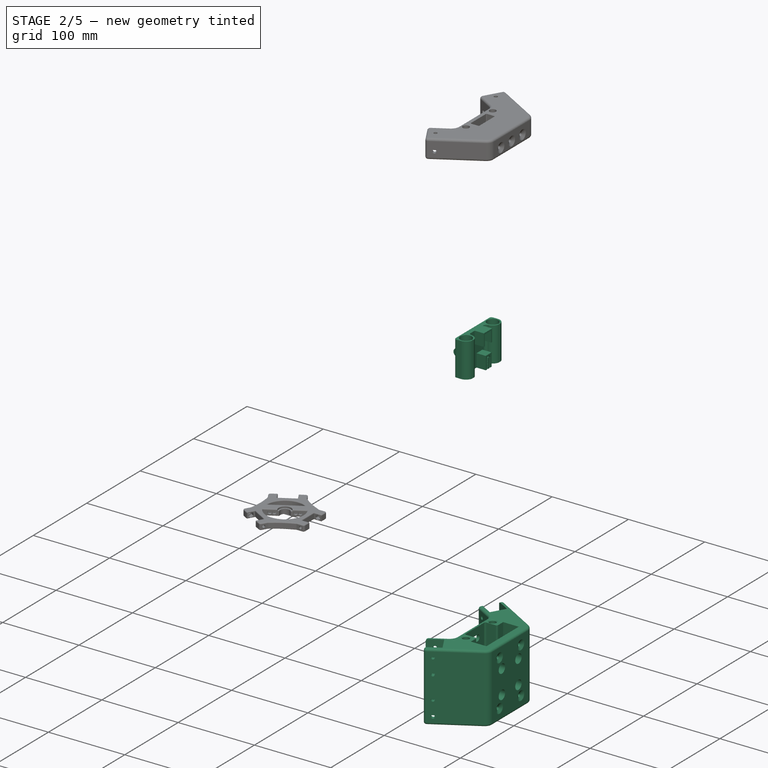
[diagram: stage 2 of 5 — iso view after this stage's code; geometry added in this stage tinted green]
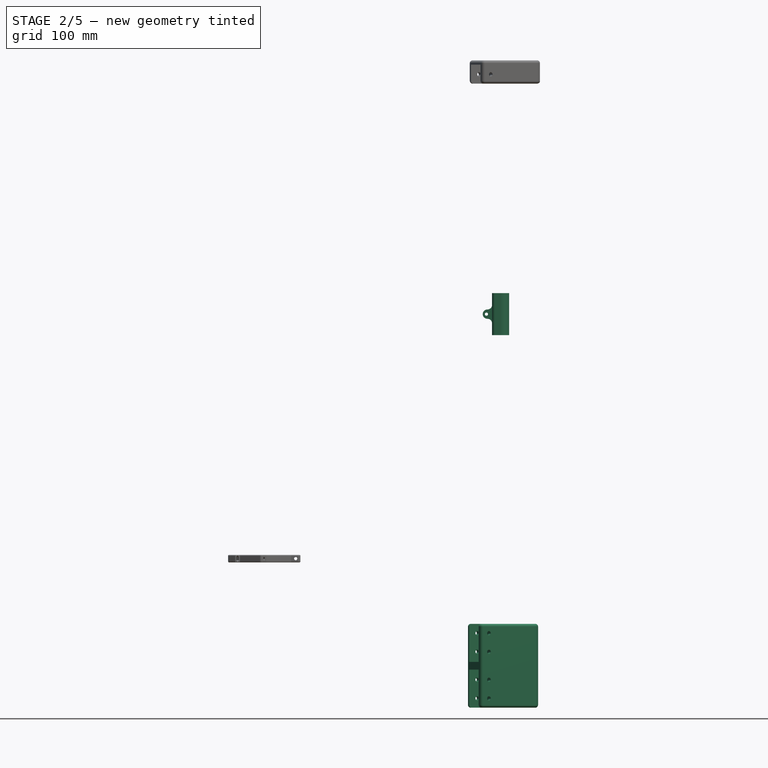
[diagram: stage 2 of 5 — front view after this stage's code; geometry added in this stage tinted green]
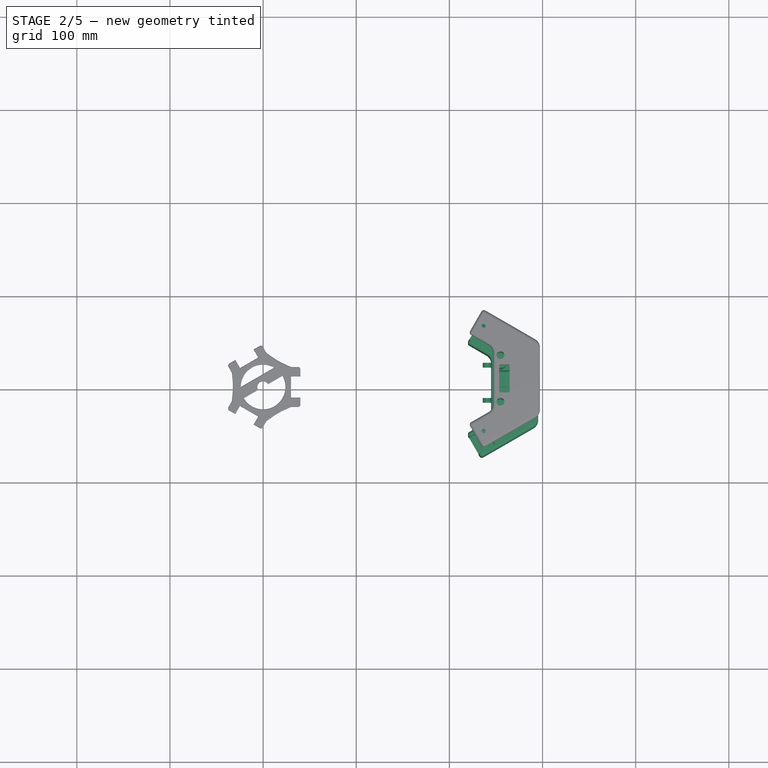
[diagram: stage 2 of 5 — top view after this stage's code; geometry added in this stage tinted green]
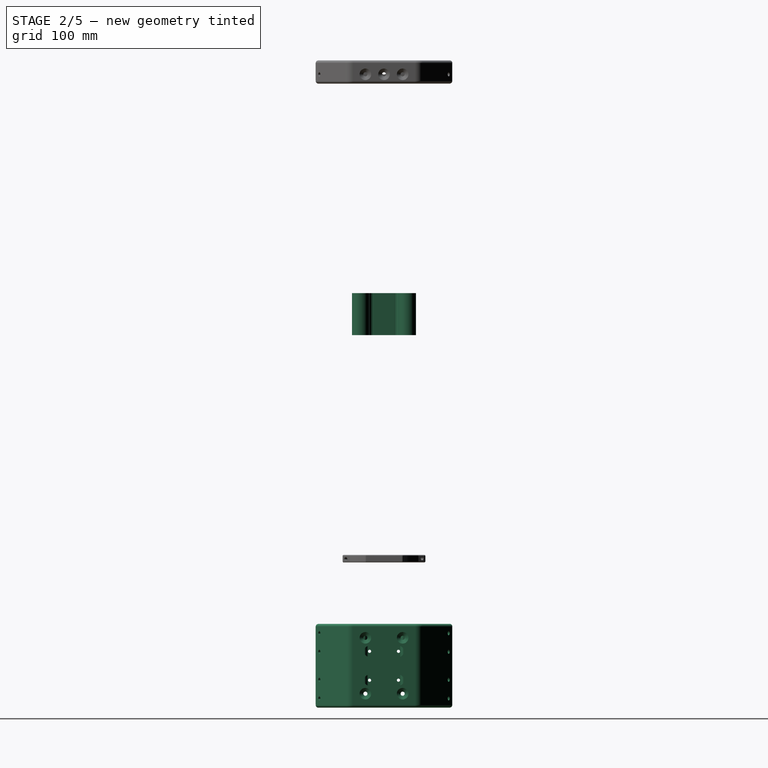
[diagram: stage 2 of 5 — right view after this stage's code; geometry added in this stage tinted green]
FEATURE [Part::Feature] Part__Feature  label="_NFS5-2060-690"
  Placement = pos=(277,0,690) rot=(0,0,1;0rad)
  shape: bbox 20 x 60 x 690 mm, 165 faces (baked)
FEATURE [Sketcher::SketchObject] Sketch001
  sketch-geometry (12):
    g0: LineSegment StartX=295.2 StartY=39 StartZ=0 EndX=233.819 EndY=74.4382 EndZ=0
    g1: LineSegment StartX=233.819 StartY=74.4382 StartZ=0 EndX=218.819 EndY=48.4574 EndZ=0
    g2: LineSegment StartX=218.819 StartY=48.4574 StartZ=0 EndX=244.8 EndY=33.4574 EndZ=0
    g3: LineSegment StartX=244.8 StartY=33.4574 StartZ=0 EndX=244.8 EndY=-33.4574 EndZ=0
    g4: LineSegment StartX=244.8 StartY=-33.4574 StartZ=0 EndX=218.819 EndY=-48.4574 EndZ=0
    g5: LineSegment StartX=218.819 StartY=-48.4574 StartZ=0 EndX=233.819 EndY=-74.4382 EndZ=0
    g6: LineSegment StartX=233.819 StartY=-74.4382 StartZ=0 EndX=295.2 EndY=-39 EndZ=0
    g7: LineSegment StartX=295.2 StartY=39 StartZ=0 EndX=295.2 EndY=-39 EndZ=0
    g8: LineSegment StartX=264.8 StartY=30.2 StartZ=0 EndX=285.2 EndY=30.2 EndZ=0
    g9: LineSegment StartX=285.2 StartY=30.2 StartZ=0 EndX=285.2 EndY=-30.2 EndZ=0
    g10: LineSegment StartX=285.2 StartY=-30.2 StartZ=0 EndX=264.8 EndY=-30.2 EndZ=0
    g11: LineSegment StartX=264.8 StartY=-30.2 StartZ=0 EndX=264.8 EndY=30.2 EndZ=0
  constraints (37):
    c: Coincident(g0,g1)
    c: Coincident(g1,g2)
    c: Coincident(g2,g3)
    c: Vertical(g3)
    c: Coincident(g3,g4)
    c: Coincident(g4,g5)
    c: Coincident(g5,g6)
    c: Symmetric(g2,g3,g-1)
    c: Parallel(g2,g0)
    c: Parallel(g4,g6)
    c: Angle(g3,g4) = 2.0944
    c: Angle(g2,g3) = 2.0944
    c: Distance(g1) = 30
    c: Equal(g5,g1)
    c: Equal(g4,g2)
    c: Coincident(g7,g6)
    c: Vertical(g7)
    c: Coincident(g0,g7)
    c: Symmetric(g0,g6,g-1)
    c: Coincident(g8,g9)
    c: Coincident(g9,g10)
    c: Coincident(g10,g11)
    c: Coincident(g11,g8)
    c: Horizontal(g8)
    c: Horizontal(g10)
    c: Vertical(g9)
    c: Vertical(g11)
    c: Symmetric(g9,g8,g-1)
    c: DistanceX(g9,g6) = 10
    c: DistanceX(g3,g10) = 20
    c: DistanceX(g10,g10) = 20.4
    c: DistanceY(g11,g11) = 60.4
    c: DistanceX(g-1,g10) = 264.8
    c: DistanceY(g7,g7) = 78
    c: Angle(g1,g0) = 1.5708
    c: Angle(g6,g5) = 1.5708
    c: Distance(g4) = 30
FEATURE [PartDesign::Pad] Pad
  Length = 90
  Length2 = 100
  Sketch = -> Sketch001
  Type = 0
FEATURE [Sketcher::SketchObject] Sketch078
  Placement = pos=(0,0,400) rot=(0,0,1;0rad)
  sketch-geometry (12):
    g0: Circle CenterX=254.8 CenterY=25 CenterZ=0 NormalX=0 NormalY=0 NormalZ=1 Radius=7.5
    g1: Circle CenterX=254.8 CenterY=-25 CenterZ=0 NormalX=0 NormalY=0 NormalZ=1 Radius=7.5
    g2: ArcOfCircle CenterX=254.8 CenterY=25 CenterZ=0 NormalX=0 NormalY=0 NormalZ=1 Radius=9.4 StartAngle=4.71239 EndAngle=7.85398
    g3: ArcOfCircle CenterX=254.8 CenterY=-25 CenterZ=0 NormalX=0 NormalY=0 NormalZ=1 Radius=9.4 StartAngle=4.71239 EndAngle=7.85398
    g4: LineSegment [constr] StartX=254.8 StartY=34.4 StartZ=0 EndX=254.8 EndY=15.6 EndZ=0
    g5: LineSegment [constr] StartX=254.8 StartY=-15.6 StartZ=0 EndX=254.8 EndY=-34.4 EndZ=0
    g6: LineSegment StartX=245.8 StartY=34.4 StartZ=0 EndX=254.8 EndY=34.4 EndZ=0
    g7: LineSegment StartX=245.8 StartY=-34.4 StartZ=0 EndX=254.8 EndY=-34.4 EndZ=0
    g8: LineSegment StartX=251.8 StartY=11 StartZ=0 EndX=251.8 EndY=-11 EndZ=0
    g9: ArcOfCircle CenterX=255.736 CenterY=11.7111 CenterZ=0 NormalX=0 NormalY=0 NormalZ=1 Radius=4 StartAngle=1.80706 EndAngle=3.32032
    g10: ArcOfCircle CenterX=255.736 CenterY=-11.7111 CenterZ=0 NormalX=0 NormalY=0 NormalZ=1 Radius=4 StartAngle=2.96286 EndAngle=4.47613
    g11: LineSegment StartX=245.8 StartY=34.4 StartZ=0 EndX=245.8 EndY=-34.4 EndZ=0
  constraints (35):
    c: Symmetric(g1,g0,g-1)
    c: Radius(g0) = 7.5
    c: Equal(g0,g1)
    c: DistanceY(g1,g0) = 50
    c: DistanceX(g-1,g1) = 254.8
    c: Coincident(g2,g0)
    c: Coincident(g3,g1)
    c: Equal(g3,g2)
    c: Radius(g2) = 9.4
    c: Coincident(g4,g2)
    c: Coincident(g4,g2)
    c: Vertical(g4)
    c: PointOnObject(g0,g4)
    c: Coincident(g5,g3)
    c: Coincident(g5,g3)
    c: Vertical(g5)
    c: PointOnObject(g1,g5)
    c: Symmetric(g7,g6,g-1)
    c: Horizontal(g6)
    c: Coincident(g6,g2)
    c: Coincident(g7,g3)
    c: Vertical(g8)
    c: Coincident(g9,g8)
    c: Coincident(g9,g2)
    c: Coincident(g10,g8)
    c: Coincident(g10,g3)
    c: Radius(g9) = 4
    c: Equal(g9,g10)
    c: Symmetric(g8,g8,g-1)
    c: Vertical(g11)
    c: Symmetric(g11,g11,g-1)
    c: Coincident(g7,g11)
    c: DistanceX(g7,g7) = 9
    c: DistanceX(g6,g8) = 6
    c: DistanceY(g8,g8) = 22
FEATURE [PartDesign::Pad] Pad015
  Length = 45
  Length2 = 100
  Placement = pos=(0,0,400) rot=(0,0,1;0rad)
  Sketch = -> Sketch078
  Type = 0
FEATURE [PartDesign::Fillet] Fillet033
  Base = -> Pad015 [Edge11,Edge8]
  Placement = pos=(0,0,400) rot=(0,0,1;0rad)
  Radius = 3
FEATURE [PartDesign::Pad] Pad016
  Length = 10
  Length2 = 100
  Placement = pos=(0,0,400) rot=(0,0,1;0rad)
  Sketch = -> Sketch079
  Type = 0
FEATURE [PartDesign::Pocket] Pocket
  Length = 20
  Sketch = -> Sketch002
  Type = 0
FEATURE [Sketcher::SketchObject] Sketch006
  Placement = pos=(295.2,0,0) rot=(0.57735,0.57735,0.57735;2.0944rad)
  Support = -> Pocket [Face2]
  sketch-geometry (6):
    g0: LineSegment [constr] StartX=-50 StartY=45 StartZ=0 EndX=50 EndY=45 EndZ=0
    g1: Circle CenterX=20 CenterY=75 CenterZ=0 NormalX=0 NormalY=0 NormalZ=1 Radius=2.2
    g2: Circle CenterX=20 CenterY=15 CenterZ=0 NormalX=0 NormalY=0 NormalZ=1 Radius=2.2
    g3: Circle CenterX=-20 CenterY=75 CenterZ=0 NormalX=0 NormalY=0 NormalZ=1 Radius=2.2
    g4: Circle CenterX=-20 CenterY=15 CenterZ=0 NormalX=0 NormalY=0 NormalZ=1 Radius=2.2
    g5: GeomPoint [constr] X=0 Y=45 Z=0
  constraints (14):
    c: DistanceY(g-1,g0) = 45
    c: DistanceX(g0,g0) = 100
    c: Symmetric(g0,g0,g-2)
    c: Radius(g2) = 2.2
    c: Equal(g2,g1)
    c: Equal(g2,g3)
    c: Equal(g2,g4)
    c: Symmetric(g4,g2,g-2)
    c: Symmetric(g4,g3,g0)
    c: Symmetric(g2,g1,g0)
    c: PointOnObject(g5,g-2)
    c: PointOnObject(g5,g0)
    c: DistanceX(g4,g5) = 20
    c: DistanceY(g4,g5) = 30
FEATURE [PartDesign::Pocket] Pocket116
  Length = 10
  Sketch = -> Sketch006
  Type = 0
FEATURE [Sketcher::SketchObject] Sketch011
  Placement = pos=(244.8,0,0) rot=(0.57735,-0.57735,-0.57735;2.0944rad)
  Support = -> Pocket116 [Face12]
  sketch-geometry (12):
    g0: Circle CenterX=0 CenterY=45 CenterZ=0 NormalX=0 NormalY=0 NormalZ=1 Radius=11.5
    g1: LineSegment [constr] StartX=-15.5 StartY=60.5 StartZ=0 EndX=15.5 EndY=60.5 EndZ=0
    g2: LineSegment [constr] StartX=15.5 StartY=60.5 StartZ=0 EndX=15.5 EndY=29.5 EndZ=0
    g3: LineSegment [constr] StartX=15.5 StartY=29.5 StartZ=0 EndX=-15.5 EndY=29.5 EndZ=0
    g4: LineSegment [constr] StartX=-15.5 StartY=29.5 StartZ=0 EndX=-15.5 EndY=60.5 EndZ=0
    g5: LineSegment [constr] StartX=-15.5 StartY=60.5 StartZ=0 EndX=15.5 EndY=29.5 EndZ=0
    g6: LineSegment [constr] StartX=-15.5 StartY=29.5 StartZ=0 EndX=15.5 EndY=60.5 EndZ=0
    g7: GeomPoint [constr] X=0 Y=45 Z=0
    g8: Circle CenterX=-15.5 CenterY=60.5 CenterZ=0 NormalX=0 NormalY=0 NormalZ=1 Radius=1.7
    g9: Circle CenterX=-15.5 CenterY=29.5 CenterZ=0 NormalX=0 NormalY=0 NormalZ=1 Radius=1.7
    g10: Circle CenterX=15.5 CenterY=29.5 CenterZ=0 NormalX=0 NormalY=0 NormalZ=1 Radius=1.7
    g11: Circle CenterX=15.5 CenterY=60.5 CenterZ=0 NormalX=0 NormalY=0 NormalZ=1 Radius=1.7
  constraints (28):
    c: PointOnObject(g0,g-2)
    c: Coincident(g1,g2)
    c: Coincident(g2,g3)
    c: Coincident(g3,g4)
    c: Coincident(g4,g1)
    c: Horizontal(g1)
    c: Vertical(g2)
    c: Vertical(g4)
    c: Symmetric(g2,g3,g-2)
    c: DistanceY(g-1,g2) = 29.5
    c: DistanceX(g3,g3) = 31
    c: Coincident(g5,g1)
    c: Coincident(g5,g2)
    c: Coincident(g6,g3)
    c: Coincident(g6,g1)
    c: PointOnObject(g7,g5)
    c: PointOnObject(g7,g6)
    c: Coincident(g0,g7)
    c: Coincident(g8,g1)
    c: Coincident(g9,g3)
    c: Coincident(g10,g2)
    c: Coincident(g11,g1)
    c: Radius(g11) = 1.7
    c: Equal(g11,g8)
    c: Equal(g11,g9)
    c: Equal(g11,g10)
    c: Radius(g0) = 11.5
    c: Equal(g3,g2)
FEATURE [PartDesign::Pocket] Pocket117
  Length = 21
  Sketch = -> Sketch011
  Type = 0
FEATURE [Sketcher::SketchObject] Sketch013
  Placement = pos=(295.2,0,0) rot=(0.57735,0.57735,0.57735;2.0944rad)
  Support = -> Pocket117 [Face2]
  sketch-geometry (8):
    g0: LineSegment [constr] StartX=-15.5 StartY=60.5 StartZ=0 EndX=15.5 EndY=60.5 EndZ=0
    g1: LineSegment [constr] StartX=15.5 StartY=60.5 StartZ=0 EndX=15.5 EndY=29.5 EndZ=0
    g2: LineSegment [constr] StartX=15.5 StartY=29.5 StartZ=0 EndX=-15.5 EndY=29.5 EndZ=0
    g3: LineSegment [constr] StartX=-15.5 StartY=29.5 StartZ=0 EndX=-15.5 EndY=60.5 EndZ=0
    g4: Circle CenterX=-15.5 CenterY=60.5 CenterZ=0 NormalX=0 NormalY=0 NormalZ=1 Radius=3
    g5: Circle CenterX=15.5 CenterY=60.5 CenterZ=0 NormalX=0 NormalY=0 NormalZ=1 Radius=3
    g6: Circle CenterX=15.5 CenterY=29.5 CenterZ=0 NormalX=0 NormalY=0 NormalZ=1 Radius=3
    g7: Circle CenterX=-15.5 CenterY=29.5 CenterZ=0 NormalX=0 NormalY=0 NormalZ=1 Radius=3
  constraints (20):
    c: Coincident(g0,g1)
    c: Coincident(g1,g2)
    c: Coincident(g2,g3)
    c: Coincident(g3,g0)
    c: Horizontal(g0)
    c: Horizontal(g2)
    c: Vertical(g1)
    c: Vertical(g3)
    c: Symmetric(g1,g2,g-2)
    c: Equal(g2,g1)
    c: DistanceX(g2,g2) = 31
    c: DistanceY(g-1,g1) = 29.5
    c: Coincident(g4,g0)
    c: Coincident(g5,g0)
    c: Coincident(g7,g2)
    c: Radius(g7) = 3
    c: Equal(g7,g6)
    c: Equal(g7,g5)
    c: Equal(g7,g4)
    c: Coincident(g6,g1)
FEATURE [PartDesign::Pocket] Pocket118
  Length = 26
  Sketch = -> Sketch013
  Type = 0
FEATURE [Sketcher::SketchObject] Sketch012
  Placement = pos=(295.2,0,0) rot=(0.57735,0.57735,0.57735;2.0944rad)
  Support = -> Pocket118 [Face2]
  sketch-geometry (8):
    g0: LineSegment [constr] StartX=-15.5 StartY=60.5 StartZ=0 EndX=15.5 EndY=60.5 EndZ=0
    g1: LineSegment [constr] StartX=15.5 StartY=60.5 StartZ=0 EndX=15.5 EndY=29.5 EndZ=0
    g2: LineSegment [constr] StartX=15.5 StartY=29.5 StartZ=0 EndX=-15.5 EndY=29.5 EndZ=0
    g3: LineSegment [constr] StartX=-15.5 StartY=29.5 StartZ=0 EndX=-15.5 EndY=60.5 EndZ=0
    g4: Circle CenterX=-15.5 CenterY=60.5 CenterZ=0 NormalX=0 NormalY=0 NormalZ=1 Radius=6
    g5: Circle CenterX=15.5 CenterY=60.5 CenterZ=0 NormalX=0 NormalY=0 NormalZ=1 Radius=6
    g6: Circle CenterX=15.5 CenterY=29.5 CenterZ=0 NormalX=0 NormalY=0 NormalZ=1 Radius=6
    g7: Circle CenterX=-15.5 CenterY=29.5 CenterZ=0 NormalX=0 NormalY=0 NormalZ=1 Radius=6
  constraints (20):
    c: Coincident(g0,g1)
    c: Coincident(g1,g2)
    c: Coincident(g2,g3)
    c: Coincident(g3,g0)
    c: Horizontal(g0)
    c: Horizontal(g2)
    c: Vertical(g1)
    c: Vertical(g3)
    c: Symmetric(g1,g2,g-2)
    c: Equal(g2,g1)
    c: DistanceX(g2,g2) = 31
    c: DistanceY(g-1,g1) = 29.5
    c: Coincident(g4,g0)
    c: Coincident(g5,g0)
    c: Coincident(g7,g2)
    c: Radius(g7) = 6
    c: Equal(g7,g6)
    c: Equal(g7,g5)
    c: Equal(g7,g4)
    c: Coincident(g6,g1)
FEATURE [PartDesign::Pocket] Pocket119
  Length = 11
  Sketch = -> Sketch012
  Type = 0
FEATURE [Sketcher::SketchObject] Sketch157
  ExternalGeometry = -> [Pocket119]
  Placement = pos=(0,0,90) rot=(0,0,1;0rad)
  Support = -> Pocket119 [Face5]
  sketch-geometry (4):
    g0: LineSegment StartX=248.8 StartY=19 StartZ=0 EndX=264.8 EndY=19 EndZ=0
    g1: LineSegment StartX=264.8 StartY=19 StartZ=0 EndX=264.8 EndY=-19 EndZ=0
    g2: LineSegment StartX=264.8 StartY=-19 StartZ=0 EndX=248.8 EndY=-19 EndZ=0
    g3: LineSegment StartX=248.8 StartY=-19 StartZ=0 EndX=248.8 EndY=19 EndZ=0
  constraints (12):
    c: Coincident(g0,g1)
    c: Coincident(g1,g2)
    c: Coincident(g2,g3)
    c: Coincident(g3,g0)
    c: Horizontal(g0)
    c: Horizontal(g2)
    c: Vertical(g1)
    c: Vertical(g3)
    c: Symmetric(g2,g0,g-1)
    c: PointOnObject(g0,g-3)
    c: DistanceY(g3,g3) = 38
    c: DistanceX(g2,g2) = 16
FEATURE [PartDesign::Pocket] Pocket120
  Length = 70
  Sketch = -> Sketch157
  Type = 0
FEATURE [Sketcher::SketchObject] Sketch158
  ExternalGeometry = -> [Pocket120]
  Placement = pos=(143.132,82.6372,0) rot=(0.774597,-0.447214,-0.447214;1.82348rad)
  Support = -> Pocket120 [Face18]
  sketch-geometry (8):
    g0: LineSegment StartX=176.575 StartY=0 StartZ=0 EndX=156.175 EndY=0 EndZ=0
    g1: LineSegment StartX=156.175 StartY=0 StartZ=0 EndX=156.175 EndY=40.8 EndZ=0
    g2: LineSegment StartX=156.175 StartY=40.8 StartZ=0 EndX=176.575 EndY=40.8 EndZ=0
    g3: LineSegment StartX=176.575 StartY=40.8 StartZ=0 EndX=176.575 EndY=0 EndZ=0
    g4: LineSegment StartX=156.175 StartY=90 StartZ=0 EndX=176.575 EndY=90 EndZ=0
    g5: LineSegment StartX=176.575 StartY=90 StartZ=0 EndX=176.575 EndY=49.2 EndZ=0
    g6: LineSegment StartX=176.575 StartY=49.2 StartZ=0 EndX=156.175 EndY=49.2 EndZ=0
    g7: LineSegment StartX=156.175 StartY=49.2 StartZ=0 EndX=156.175 EndY=90 EndZ=0
  constraints (24):
    c: Coincident(g0,g1)
    c: Coincident(g1,g2)
    c: Coincident(g2,g3)
    c: Coincident(g3,g0)
    c: Horizontal(g0)
    c: Horizontal(g2)
    c: Vertical(g1)
    c: Vertical(g3)
    c: PointOnObject(g0,g-1)
    c: DistanceX(g-3,g0) = 4.8
    c: DistanceX(g0,g0) = 20.4
    c: DistanceY(g3,g3) = 40.8
    c: Coincident(g4,g5)
    c: Coincident(g5,g6)
    c: Coincident(g6,g7)
    c: Coincident(g7,g4)
    c: Horizontal(g4)
    c: Horizontal(g6)
    c: Vertical(g5)
    c: Vertical(g7)
    c: PointOnObject(g4,g-4)
    c: DistanceX(g-4,g4) = 4.8
    c: Equal(g2,g6)
    c: Equal(g5,g3)
FEATURE [PartDesign::Pocket] Pocket121
  Length = 20
  Sketch = -> Sketch158
  Type = 0
FEATURE [Sketcher::SketchObject] Sketch159
  ExternalGeometry = -> [Pocket121]
  Placement = pos=(143.132,-82.6372,0) rot=(-0.377964,0.654654,0.654654;3.86433rad)
  Support = -> Pocket121 [Face3]
  sketch-geometry (8):
    g0: LineSegment StartX=-156.175 StartY=0 StartZ=0 EndX=-176.575 EndY=0 EndZ=0
    g1: LineSegment StartX=-176.575 StartY=0 StartZ=0 EndX=-176.575 EndY=40.4 EndZ=0
    g2: LineSegment StartX=-176.575 StartY=40.4 StartZ=0 EndX=-156.175 EndY=40.4 EndZ=0
    g3: LineSegment StartX=-156.175 StartY=40.4 StartZ=0 EndX=-156.175 EndY=0 EndZ=0
    g4: LineSegment StartX=-176.575 StartY=90 StartZ=0 EndX=-156.175 EndY=90 EndZ=0
    g5: LineSegment StartX=-156.175 StartY=90 StartZ=0 EndX=-156.175 EndY=49.6 EndZ=0
    g6: LineSegment StartX=-156.175 StartY=49.6 StartZ=0 EndX=-176.575 EndY=49.6 EndZ=0
    g7: LineSegment StartX=-176.575 StartY=49.6 StartZ=0 EndX=-176.575 EndY=90 EndZ=0
  constraints (24):
    c: Coincident(g0,g1)
    c: Coincident(g1,g2)
    c: Coincident(g2,g3)
    c: Coincident(g3,g0)
    c: Horizontal(g0)
    c: Horizontal(g2)
    c: Vertical(g1)
    c: Vertical(g3)
    c: PointOnObject(g0,g-1)
    c: DistanceX(g0,g-3) = 4.8
    c: Coincident(g4,g5)
    c: Coincident(g5,g6)
    c: Coincident(g6,g7)
    c: Coincident(g7,g4)
    c: Horizontal(g4)
    c: Horizontal(g6)
    c: Vertical(g5)
    c: Vertical(g7)
    c: PointOnObject(g4,g-4)
    c: Equal(g6,g2)
    c: Equal(g3,g5)
    c: DistanceY(g1,g1) = 40.4
    c: DistanceX(g2,g2) = 20.4
    c: DistanceX(g4,g-4) = 4.8
FEATURE [PartDesign::Pocket] Pocket122
  Length = 20
  Sketch = -> Sketch159
  Type = 0
FEATURE [Sketcher::SketchObject] Sketch161
  ExternalGeometry = -> [Pocket122]
  Placement = pos=(90.6875,157.075,0) rot=(0.186157,0.694747,0.694747;2.77349rad)
  Support = -> Pocket122 [Face1]
  sketch-geometry (5):
    g0: Circle CenterX=-175.274 CenterY=80 CenterZ=0 NormalX=0 NormalY=0 NormalZ=1 Radius=2.2
    g1: Circle CenterX=-175.274 CenterY=60 CenterZ=0 NormalX=0 NormalY=0 NormalZ=1 Radius=2.2
    g2: Circle CenterX=-175.274 CenterY=10 CenterZ=0 NormalX=0 NormalY=0 NormalZ=1 Radius=2.2
    g3: Circle CenterX=-175.274 CenterY=30 CenterZ=0 NormalX=0 NormalY=0 NormalZ=1 Radius=2.2
    g4: LineSegment [constr] StartX=-175.274 StartY=0 StartZ=0 EndX=-175.274 EndY=90 EndZ=0
  constraints (16):
    c: PointOnObject(g4,g-1)
    c: Vertical(g4)
    c: DistanceY(g4,g4) = 90
    c: DistanceX(g4,g-3) = 10
    c: PointOnObject(g0,g4)
    c: PointOnObject(g1,g4)
    c: PointOnObject(g3,g4)
    c: PointOnObject(g2,g4)
    c: Radius(g1) = 2.2
    c: Equal(g1,g0)
    c: Equal(g1,g3)
    c: Equal(g1,g2)
    c: DistanceY(g1,g0) = 20
    c: DistanceY(g0,g4) = 10
    c: DistanceY(g-1,g2) = 10
    c: DistanceY(g2,g3) = 20
FEATURE [PartDesign::Pocket] Pocket123
  Length = 5
  Sketch = -> Sketch161
  Type = 1
FEATURE [Sketcher::SketchObject] Sketch162
  ExternalGeometry = -> [Pocket123]
  Placement = pos=(90.6875,-157.075,0) rot=(0.935113,0.250563,0.250563;1.63783rad)
  Support = -> Pocket123 [Face10]
  sketch-geometry (5):
    g0: Circle CenterX=175.274 CenterY=80 CenterZ=0 NormalX=0 NormalY=0 NormalZ=1 Radius=2.2
    g1: Circle CenterX=175.274 CenterY=60 CenterZ=0 NormalX=0 NormalY=0 NormalZ=1 Radius=2.2
    g2: Circle CenterX=175.274 CenterY=10 CenterZ=0 NormalX=0 NormalY=0 NormalZ=1 Radius=2.2
    g3: Circle CenterX=175.274 CenterY=30 CenterZ=0 NormalX=0 NormalY=0 NormalZ=1 Radius=2.2
    g4: LineSegment [constr] StartX=175.274 StartY=0 StartZ=0 EndX=175.274 EndY=90 EndZ=0
  constraints (16):
    c: PointOnObject(g4,g-1)
    c: Vertical(g4)
    c: DistanceY(g4,g4) = 90
    c: PointOnObject(g0,g4)
    c: PointOnObject(g1,g4)
    c: PointOnObject(g3,g4)
    c: PointOnObject(g2,g4)
    c: Radius(g1) = 2.2
    c: Equal(g1,g0)
    c: Equal(g1,g3)
    c: Equal(g1,g2)
    c: DistanceY(g1,g0) = 20
    c: DistanceY(g0,g4) = 10
    c: DistanceY(g-1,g2) = 10
    c: DistanceY(g2,g3) = 20
    c: DistanceX(g-3,g4) = 10
FEATURE [PartDesign::Pocket] Pocket124
  Length = 5
  Sketch = -> Sketch162
  Type = 1
FEATURE [Sketcher::SketchObject] Sketch163
  Placement = pos=(244.8,0,0) rot=(0.57735,-0.57735,-0.57735;2.0944rad)
  Support = -> Pocket124 [Face23]
  sketch-geometry (2):
    g0: Circle CenterX=-20 CenterY=15 CenterZ=0 NormalX=0 NormalY=0 NormalZ=1 Radius=2.2
    g1: Circle CenterX=20 CenterY=15 CenterZ=0 NormalX=0 NormalY=0 NormalZ=1 Radius=2.2
  constraints (5):
    c: Symmetric(g1,g0,g-2)
    c: Radius(g0) = 2.2
    c: Equal(g0,g1)
    c: DistanceY(g-1,g1) = 15
    c: DistanceX(g0,g1) = 40
FEATURE [PartDesign::Pocket] Pocket125
  Length = 20
  Sketch = -> Sketch163
  Type = 0
FEATURE [PartDesign::Fillet] Fillet
  Base = -> Pocket125 [Edge38,Edge42,Edge24,Edge20,Edge50,Edge46,Edge28,Edge32]
  Radius = 3
FEATURE [PartDesign::Fillet] Fillet076
  Base = -> Fillet [Edge111,Edge121,Edge33,Edge3]
  Radius = 10
FEATURE [PartDesign::Fillet] Fillet077  label="Bottom Bracket Base"
  Base = -> Fillet076 [Edge4,Edge39,Edge43,Edge48,Edge52,Edge55,Edge143,Edge100,Edge5,Edge72,Edge1,Edge22,Edge26,Edge29,Edge17,Edge13]
  Radius = 3
FEATURE [Sketcher::SketchObject] Sketch252
  Placement = pos=(0,0,-6) rot=(0.935113,0.250563,0.250563;1.63783rad)
  sketch-geometry (4):
    g0: LineSegment StartX=15 StartY=154.32 StartZ=0 EndX=15 EndY=137.32 EndZ=0
    g1: LineSegment StartX=15 StartY=137.32 StartZ=0 EndX=30 EndY=137.32 EndZ=0
    g2: LineSegment StartX=30 StartY=137.32 StartZ=0 EndX=39.011 EndY=143.63 EndZ=0
    g3: LineSegment StartX=39.011 StartY=143.63 StartZ=0 EndX=15 EndY=154.32 EndZ=0
  constraints (12):
    c: Vertical(g0)
    c: Coincident(g0,g1)
    c: Horizontal(g1)
    c: Coincident(g1,g2)
    c: Coincident(g2,g3)
    c: Coincident(g3,g0)
    c: DistanceX(g-1,g0) = 15
    c: DistanceX(g1,g1) = 15
    c: DistanceY(g0,g0) = 17
    c: DistanceY(g-1,g0) = 137.32
    c: Angle(g2,g1) = 2.53073
    c: Angle(g3,g2) = 1.02974
FEATURE [Sketcher::SketchObject] Sketch255
  Placement = pos=(0,0,-6) rot=(-0.186157,0.694747,0.694747;3.50969rad)
  sketch-geometry (4):
    g0: LineSegment StartX=15 StartY=154.32 StartZ=0 EndX=15 EndY=137.32 EndZ=0
    g1: LineSegment StartX=15 StartY=137.32 StartZ=0 EndX=30 EndY=137.32 EndZ=0
    g2: LineSegment StartX=30 StartY=137.32 StartZ=0 EndX=39.011 EndY=143.63 EndZ=0
    g3: LineSegment StartX=39.011 StartY=143.63 StartZ=0 EndX=15 EndY=154.32 EndZ=0
  constraints (12):
    c: Vertical(g0)
    c: Coincident(g0,g1)
    c: Horizontal(g1)
    c: Coincident(g1,g2)
    c: Coincident(g2,g3)
    c: Coincident(g3,g0)
    c: DistanceX(g-1,g0) = 15
    c: DistanceX(g1,g1) = 15
    c: DistanceY(g0,g0) = 17
    c: DistanceY(g-1,g0) = 137.32
    c: Angle(g2,g1) = 2.53073
    c: Angle(g3,g2) = 1.02974
FEATURE [Sketcher::SketchObject] Sketch260
  Placement = pos=(0,0,156) rot=(0,0,1;0.523599rad)
  sketch-geometry (4):
    g0: LineSegment StartX=-25 StartY=12 StartZ=0 EndX=25 EndY=12 EndZ=0
    g1: LineSegment StartX=25 StartY=12 StartZ=0 EndX=25 EndY=0 EndZ=0
    g2: LineSegment StartX=25 StartY=0 StartZ=0 EndX=-25 EndY=0 EndZ=0
    g3: LineSegment StartX=-25 StartY=0 StartZ=0 EndX=-25 EndY=12 EndZ=0
  constraints (12):
    c: Coincident(g0,g1)
    c: Coincident(g1,g2)
    c: Coincident(g2,g3)
    c: Coincident(g3,g0)
    c: Horizontal(g0)
    c: Horizontal(g2)
    c: Vertical(g1)
    c: Vertical(g3)
    c: PointOnObject(g1,g-1)
    c: DistanceX(g0,g0) = 50
    c: DistanceY(g3,g3) = 12
    c: Symmetric(g0,g0,g-2)
FEATURE [Part::Feature] Part__Feature084  label="SN04-N"
  Placement = pos=(-4.50289,7.805,65) rot=(0.694747,0.186157,0.694747;3.50969rad)
  shape: bbox 24.59 x 24.59 x 37 mm, 70 faces (baked)
FEATURE [PartDesign::Fillet] Fillet131
  Base = -> Fillet077 [Edge225,Edge223,Edge177,Edge178]
  Radius = 2
FEATURE [App::DocumentObjectGroup] Group001  label="Bottom Bracket 1"
  Group = -> [Pad,Pocket,Pocket116,Pocket117,Pocket118,Pocket119,Pocket120,Pocket121,Pocket122,Pocket123,Pocket124,Pocket125,Fillet,Fillet076,Fillet077,Fillet131]
FEATURE [PartDesign::Chamfer] Chamfer002  label="Bottom Bracket Final"
  Base = -> Fillet131 [Edge34,Edge33]
  Size = 1
FEATURE [Sketcher::SketchObject] Sketch293
  Placement = pos=(260,0,-200) rot=(0.57735,0.57735,0.57735;2.0944rad)
  sketch-geometry (8):
    g0: LineSegment StartX=-25.5 StartY=646.5 StartZ=0 EndX=-24.5 EndY=646.5 EndZ=0
    g1: LineSegment StartX=-24.5 StartY=646.5 StartZ=0 EndX=-24.5 EndY=596.5 EndZ=0
    g2: LineSegment StartX=-24.5 StartY=596.5 StartZ=0 EndX=-25.5 EndY=596.5 EndZ=0
    g3: LineSegment StartX=-25.5 StartY=596.5 StartZ=0 EndX=-25.5 EndY=646.5 EndZ=0
    g4: LineSegment StartX=24.5 StartY=646.5 StartZ=0 EndX=25.5 EndY=646.5 EndZ=0
    g5: LineSegment StartX=25.5 StartY=646.5 StartZ=0 EndX=25.5 EndY=596.5 EndZ=0
    g6: LineSegment StartX=25.5 StartY=596.5 StartZ=0 EndX=24.5 EndY=596.5 EndZ=0
    g7: LineSegment StartX=24.5 StartY=596.5 StartZ=0 EndX=24.5 EndY=646.5 EndZ=0
  constraints (23):
    c: Coincident(g0,g1)
    c: Coincident(g1,g2)
    c: Coincident(g2,g3)
    c: Coincident(g3,g0)
    c: Horizontal(g0)
    c: Horizontal(g2)
    c: Vertical(g1)
    c: Vertical(g3)
    c: Coincident(g4,g5)
    c: Coincident(g5,g6)
    c: Coincident(g6,g7)
    c: Coincident(g7,g4)
    c: Horizontal(g4)
    c: Horizontal(g6)
    c: Vertical(g5)
    c: Vertical(g7)
    c: Equal(g2,g6)
    c: Equal(g1,g7)
    c: DistanceY(g1,g1) = 50
    c: Symmetric(g1,g6,g-2)
    c: DistanceX(g4,g4) = 1
    c: DistanceX(g1,g6) = 49
    c: DistanceY(g-1,g1) = 596.5
FEATURE [PartDesign::Pad] Pad080
  Length = 10
  Length2 = 100
  Placement = pos=(260,0,-200) rot=(0.57735,0.57735,0.57735;2.0944rad)
  Sketch = -> Sketch293
  Type = 0
FEATURE [PartDesign::Mirrored] Mirrored
  MirrorPlane = -> Sketch079 [V_Axis]
  Originals = -> [Pad016]
  Placement = pos=(0,0,400) rot=(0,0,1;0rad)
FEATURE [PartDesign::Fillet] Fillet146
  Base = -> Mirrored [Edge1,Edge3,Edge51,Edge46]
  Placement = pos=(0,0,400) rot=(0,0,1;0rad)
  Radius = 4.99
FEATURE [PartDesign::Fillet] Fillet147
  Base = -> Fillet146 [Edge17,Edge24,Edge26,Edge22]
  Placement = pos=(0,0,400) rot=(0,0,1;0rad)
  Radius = 4.99
FEATURE [PartDesign::Fillet] Fillet148
  Base = -> Fillet147 [Edge6,Edge32]
  Placement = pos=(0,0,400) rot=(0,0,1;0rad)
  Radius = 2
FEATURE [Sketcher::SketchObject] Sketch296
  ExternalGeometry = -> [Fillet148]
  Placement = pos=(0,21.4,400) rot=(0,0.707107,0.707107;3.14159rad)
  Support = -> Fillet148 [Face13]
  sketch-geometry (1):
    g0: Circle CenterX=-239.8 CenterY=22.5 CenterZ=0 NormalX=0 NormalY=0 NormalZ=1 Radius=1.7
  constraints (3):
    c: DistanceX(g-3,g0) = 6
    c: Radius(g0) = 1.7
    c: DistanceY(g-1,g0) = 22.5
FEATURE [PartDesign::Pocket] Pocket215
  Length = 5
  Placement = pos=(0,0,400) rot=(0,0,1;0rad)
  Sketch = -> Sketch296
  Type = 1
FEATURE [Sketcher::SketchObject] Sketch297
  ExternalGeometry = -> [Pocket215]
  Placement = pos=(0,16.4,400) rot=(1,0,0;1.5708rad)
  Support = -> Pocket215 [Face1]
  sketch-geometry (7):
    g0: LineSegment StartX=242.65 StartY=20.8546 StartZ=0 EndX=242.65 EndY=24.1454 EndZ=0
    g1: LineSegment StartX=242.65 StartY=24.1454 StartZ=0 EndX=239.8 EndY=25.7909 EndZ=0
    g2: LineSegment StartX=239.8 StartY=25.7909 StartZ=0 EndX=236.95 EndY=24.1454 EndZ=0
    g3: LineSegment StartX=236.95 StartY=24.1454 StartZ=0 EndX=236.95 EndY=20.8546 EndZ=0
    g4: LineSegment StartX=236.95 StartY=20.8546 StartZ=0 EndX=239.8 EndY=19.2091 EndZ=0
    g5: LineSegment StartX=239.8 StartY=19.2091 StartZ=0 EndX=242.65 EndY=20.8546 EndZ=0
    g6: Circle [constr] CenterX=239.8 CenterY=22.5 CenterZ=0 NormalX=0 NormalY=0 NormalZ=1 Radius=3.2909
  constraints (17):
    c: Coincident(g0,g1)
    c: Coincident(g1,g2)
    c: Coincident(g2,g3)
    c: Coincident(g3,g4)
    c: Coincident(g4,g5)
    c: Coincident(g5,g0)
    c: Equal(g0, g1-g5) x5
    c: PointOnObject(g0,g6)
    c: PointOnObject(g1,g6)
    c: PointOnObject(g2,g6)
    c: PointOnObject(g3,g6)
    c: PointOnObject(g4,g6)
    c: PointOnObject(g5,g6)
    c: Vertical(g0)
    c: DistanceX(g2,g0) = 5.7
    c: DistanceX(g6,g-3) = 6
    c: DistanceY(g-1,g6) = 22.5
FEATURE [PartDesign::Pocket] Pocket216
  Length = 3
  Placement = pos=(0,0,400) rot=(0,0,1;0rad)
  Sketch = -> Sketch297
  Type = 0
FEATURE [Sketcher::SketchObject] Sketch298
  ExternalGeometry = -> [Pocket216]
  Placement = pos=(0,-16.4,400) rot=(0,0.707107,0.707107;3.14159rad)
  Support = -> Pocket216 [Face37]
  sketch-geometry (7):
    g0: LineSegment StartX=-236.95 StartY=20.8546 StartZ=0 EndX=-236.95 EndY=24.1454 EndZ=0
    g1: LineSegment StartX=-236.95 StartY=24.1454 StartZ=0 EndX=-239.8 EndY=25.7909 EndZ=0
    g2: LineSegment StartX=-239.8 StartY=25.7909 StartZ=0 EndX=-242.65 EndY=24.1454 EndZ=0
    g3: LineSegment StartX=-242.65 StartY=24.1454 StartZ=0 EndX=-242.65 EndY=20.8546 EndZ=0
    g4: LineSegment StartX=-242.65 StartY=20.8546 StartZ=0 EndX=-239.8 EndY=19.2091 EndZ=0
    g5: LineSegment StartX=-239.8 StartY=19.2091 StartZ=0 EndX=-236.95 EndY=20.8546 EndZ=0
    g6: Circle [constr] CenterX=-239.8 CenterY=22.5 CenterZ=0 NormalX=0 NormalY=0 NormalZ=1 Radius=3.2909
  constraints (17):
    c: Coincident(g0,g1)
    c: Coincident(g1,g2)
    c: Coincident(g2,g3)
    c: Coincident(g3,g4)
    c: Coincident(g4,g5)
    c: Coincident(g5,g0)
    c: Equal(g0, g1-g5) x5
    c: PointOnObject(g0,g6)
    c: PointOnObject(g1,g6)
    c: PointOnObject(g2,g6)
    c: PointOnObject(g3,g6)
    c: PointOnObject(g4,g6)
    c: PointOnObject(g5,g6)
    c: Vertical(g0)
    c: DistanceX(g-3,g6) = 6
    c: DistanceY(g-1,g6) = 22.5
    c: DistanceX(g2,g0) = 5.7
FEATURE [PartDesign::Pocket] Pocket217
  Length = 3
  Placement = pos=(0,0,400) rot=(0,0,1;0rad)
  Sketch = -> Sketch298
  Type = 0
FEATURE [Part::Cut] Cut005
  Base = -> Pocket217
  Tool = -> Pad080
FEATURE [Sketcher::SketchObject] Sketch299
  ExternalGeometry = -> [Cut005]
  Placement = pos=(251.8,0,0) rot=(0.57735,0.57735,0.57735;2.0944rad)
  Support = -> Cut005 [Face35]
  sketch-geometry (4):
    g0: LineSegment StartX=-1 StartY=400 StartZ=0 EndX=-1 EndY=417 EndZ=0
    g1: LineSegment StartX=-1 StartY=417 StartZ=0 EndX=10 EndY=417 EndZ=0
    g2: LineSegment StartX=10 StartY=417 StartZ=0 EndX=10 EndY=400 EndZ=0
    g3: LineSegment StartX=10 StartY=400 StartZ=0 EndX=-1 EndY=400 EndZ=0
  constraints (12):
    c: Coincident(g3,g0)
    c: Coincident(g0,g1)
    c: Coincident(g1,g2)
    c: Horizontal(g1)
    c: Vertical(g0)
    c: DistanceY(g2,g2) = 17
    c: DistanceX(g3,g2) = 11
    c: Vertical(g2)
    c: Coincident(g3,g2)
    c: Horizontal(g3)
    c: PointOnObject(g0,g-3)
    c: DistanceX(g2,g-3) = 1
FEATURE [PartDesign::Pad] Pad081
  Length = 12
  Length2 = 100
  Sketch = -> Sketch299
  Type = 0
FEATURE [Sketcher::SketchObject] Sketch300
  ExternalGeometry = -> [Pad081]
  Placement = pos=(263.8,0,0) rot=(0.57735,0.57735,0.57735;2.0944rad)
  Support = -> Pad081 [Face1]
  sketch-geometry (9):
    g0: LineSegment StartX=1.5 StartY=400 StartZ=0 EndX=1.5 EndY=412 EndZ=0
    g1: LineSegment StartX=3 StartY=400 StartZ=0 EndX=3 EndY=412 EndZ=0
    g2: LineSegment StartX=6 StartY=400 StartZ=0 EndX=6 EndY=412 EndZ=0
    g3: LineSegment StartX=7.5 StartY=400 StartZ=0 EndX=7.5 EndY=412 EndZ=0
    g4: LineSegment StartX=1.5 StartY=400 StartZ=0 EndX=3 EndY=400 EndZ=0
    g5: LineSegment StartX=6 StartY=400 StartZ=0 EndX=7.5 EndY=400 EndZ=0
    g6: LineSegment [constr] StartX=1.5 StartY=412 StartZ=0 EndX=7.5 EndY=412 EndZ=0
    g7: ArcOfCircle CenterX=4.5 CenterY=412 CenterZ=0 NormalX=0 NormalY=0 NormalZ=1 Radius=3 StartAngle=0 EndAngle=3.14159
    g8: ArcOfCircle CenterX=4.5 CenterY=412 CenterZ=0 NormalX=0 NormalY=0 NormalZ=1 Radius=1.5 StartAngle=0 EndAngle=3.14159
  constraints (27):
    c: PointOnObject(g0,g-3)
    c: Vertical(g0)
    c: PointOnObject(g1,g-3)
    c: Vertical(g1)
    c: PointOnObject(g2,g-3)
    c: Vertical(g2)
    c: PointOnObject(g3,g-3)
    c: Vertical(g3)
    c: Coincident(g4,g0)
    c: Coincident(g4,g1)
    c: Coincident(g5,g2)
    c: Equal(g0,g1)
    c: Equal(g1,g2)
    c: Equal(g2,g3)
    c: Coincident(g6,g0)
    c: Coincident(g6,g3)
    c: PointOnObject(g7,g6)
    c: Coincident(g7,g0)
    c: Coincident(g7,g3)
    c: Coincident(g8,g7)
    c: Coincident(g8,g1)
    c: Coincident(g8,g2)
    c: DistanceX(g0,g1) = 1.5
    c: DistanceY(g3,g3) = 12
    c: DistanceX(g1,g2) = 3
    c: Coincident(g5,g3)
    c: DistanceX(g-3,g0) = 2.5
FEATURE [PartDesign::Pocket] Pocket218
  Length = 8
  Sketch = -> Sketch300
  Type = 0
FEATURE [Sketcher::SketchObject] Sketch301
  ExternalGeometry = -> [Pocket218]
  Placement = pos=(255.8,0,0) rot=(0.57735,0.57735,0.57735;2.0944rad)
  Support = -> Pocket218 [Face10]
  sketch-geometry (2):
    g0: LineSegment StartX=3 StartY=400 StartZ=0 EndX=3 EndY=401 EndZ=0
    g1: ArcOfCircle CenterX=2.99999 CenterY=400.5 CenterZ=0 NormalX=0 NormalY=0 NormalZ=1 Radius=0.5 StartAngle=1.57078 EndAngle=4.7124
  constraints (6):
    c: Vertical(g0)
    c: Coincident(g1,g0)
    c: Coincident(g1,g0)
    c: Radius(g1) = 0.5
    c: Coincident(g0,g-3)
    c: DistanceY(g0,g0) = 1
FEATURE [PartDesign::Pad] Pad082
  Length = 8
  Length2 = 100
  Sketch = -> Sketch301
  Type = 0
FEATURE [PartDesign::LinearPattern] LinearPattern
  Direction = -> Sketch301 [V_Axis]
  Length = 10
  Occurrences = 6
  Originals = -> [Pad082]
FEATURE [Sketcher::SketchObject] Sketch302
  ExternalGeometry = -> [LinearPattern]
  Placement = pos=(251.8,0,0) rot=(0.57735,0.57735,0.57735;2.0944rad)
  Support = -> LinearPattern [Face9]
  sketch-geometry (8):
    g0: LineSegment StartX=-2.5 StartY=429 StartZ=0 EndX=-4.5 EndY=429 EndZ=0
    g1: LineSegment StartX=-4.5 StartY=429 StartZ=0 EndX=-4.5 EndY=445 EndZ=0
    g2: LineSegment StartX=-4.5 StartY=445 StartZ=0 EndX=11 EndY=445 EndZ=0
    g3: LineSegment StartX=11 StartY=445 StartZ=0 EndX=11 EndY=429 EndZ=0
    g4: LineSegment StartX=11 StartY=429 StartZ=0 EndX=9 EndY=429 EndZ=0
    g5: LineSegment StartX=9 StartY=429 StartZ=0 EndX=9 EndY=443 EndZ=0
    g6: LineSegment StartX=-2.5 StartY=429 StartZ=0 EndX=-2.5 EndY=443 EndZ=0
    g7: LineSegment StartX=-2.5 StartY=443 StartZ=0 EndX=9 EndY=443 EndZ=0
  constraints (25):
    c: Coincident(g0,g1)
    c: Horizontal(g0)
    c: Vertical(g1)
    c: Coincident(g2,g3)
    c: Coincident(g3,g4)
    c: Coincident(g4,g5)
    c: Horizontal(g2)
    c: Horizontal(g4)
    c: Vertical(g3)
    c: Vertical(g5)
    c: Equal(g0,g4)
    c: DistanceY(g3,g3) = 16
    c: DistanceX(g0,g0) = 2
    c: Coincident(g6,g0)
    c: Vertical(g6)
    c: Coincident(g2,g1)
    c: Equal(g6,g5)
    c: Coincident(g7,g5)
    c: Horizontal(g7)
    c: DistanceY(g5,g2) = 2
    c: DistanceY(g1,g1) = 16
    c: DistanceX(g2,g2) = 15.5
    c: PointOnObject(g1,g-3)
    c: Coincident(g2,g-3)
    c: DistanceX(g7,g7) = 11.5
FEATURE [PartDesign::Pad] Pad083
  Length = 12
  Length2 = 100
  Sketch = -> Sketch302
  Type = 0
FEATURE [App::DocumentObjectGroup] Group003  label="Top Bracket 1"
  Group = -> [Pocket038,Pocket037,Pocket036,Pocket035,Pocket034,Pad006,Pocket033,Pocket211,Pocket212,Pocket213,Pocket214,Fillet185,Fillet186,Fillet187]
FEATURE [App::DocumentObjectGroup] Group002  label="Top Bracket Files"
  Group = -> [Group003]
FEATURE [PartDesign::Fillet] Fillet188  label="Top Bracket Final"
  Base = -> Fillet187 [Edge139,Edge141,Edge137,Edge138]
  Placement = pos=(0,0,670) rot=(0,0,1;0rad)
  Radius = 1
FEATURE [App::DocumentObjectGroup] Group037  label="Electronics Plate Files"
  Group = -> [Pad107,Pocket262,Pocket263]
FEATURE [Sketcher::SketchObject] Sketch341
  Placement = pos=(244.8,0,0) rot=(0.57735,-0.57735,-0.57735;2.0944rad)
  Support = -> Chamfer002 [Face83]
  sketch-geometry (4):
    g0: ArcOfCircle CenterX=-5 CenterY=76.5 CenterZ=0 NormalX=0 NormalY=0 NormalZ=1 Radius=4 StartAngle=1.5708 EndAngle=4.71239
    g1: ArcOfCircle CenterX=5 CenterY=76.5 CenterZ=0 NormalX=0 NormalY=0 NormalZ=1 Radius=4 StartAngle=4.71239 EndAngle=7.85398
    g2: LineSegment StartX=-5 StartY=72.5 StartZ=0 EndX=5 EndY=72.5 EndZ=0
    g3: LineSegment StartX=-5 StartY=80.5 StartZ=0 EndX=5 EndY=80.5 EndZ=0
  constraints (10):
    c: Tangent(g0,g3) = 1.5708
    c: Tangent(g0,g2) = -1.5708
    c: Tangent(g2,g1) = -1.5708
    c: Tangent(g3,g1) = 1.5708
    c: Horizontal(g2)
    c: Equal(g0,g1)
    c: Symmetric(g0,g1,g-2)
    c: Radius(g1) = 4
    c: DistanceY(g-1,g0) = 72.5
    c: DistanceX(g2,g2) = 10
FEATURE [PartDesign::Pocket] Pocket267  label="Bottom Bracket Final w/wire routing hole"
  Length = 5
  Sketch = -> Sketch341
  Type = 0
FEATURE [Part::Chamfer] Chamfer015  label="Bottom Bracket w/wire channel and countersunk holes"
  Base = -> Pocket267
  Edges = 6 edges: [Edge180 r1=2.3 r2=4,Edge182 r1=2.3 r2=4,Edge197 r1=2.3 r2=4,Edge199 r1=2.3 r2=4,Edge201 r1=2.3 r2=4,Edge203 r1=2.3 r2=4]
FEATURE [Part::Chamfer] Chamfer016  label="Top Bracket Countersunk holes"
  Base = -> Fillet188
  Edges = 3 edges: [Edge154 r1=4 r2=2.4,Edge155 r1=4 r2=2.4,Edge156 r1=4 r2=2.4]
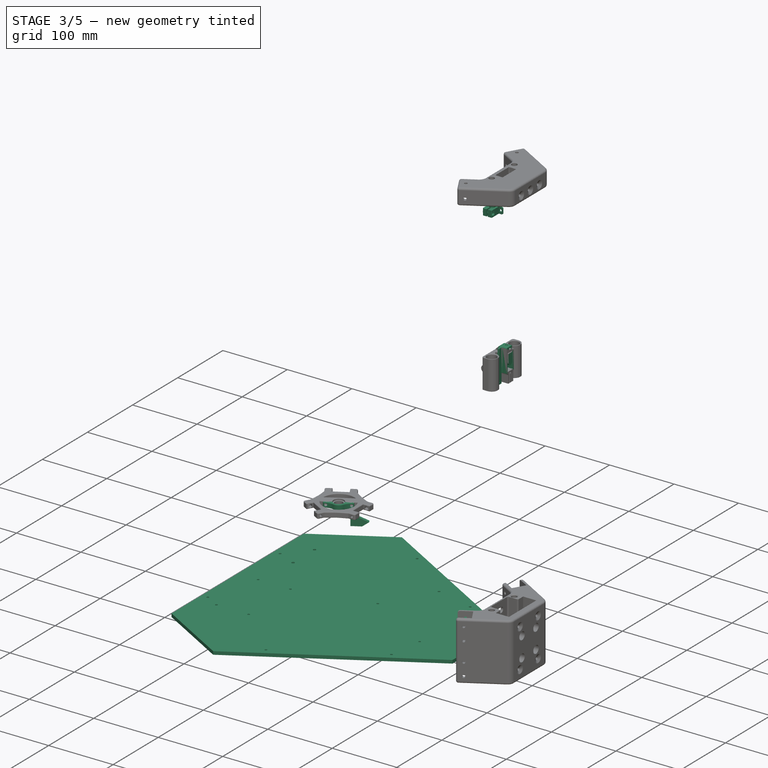
[diagram: stage 3 of 5 — iso view after this stage's code; geometry added in this stage tinted green]
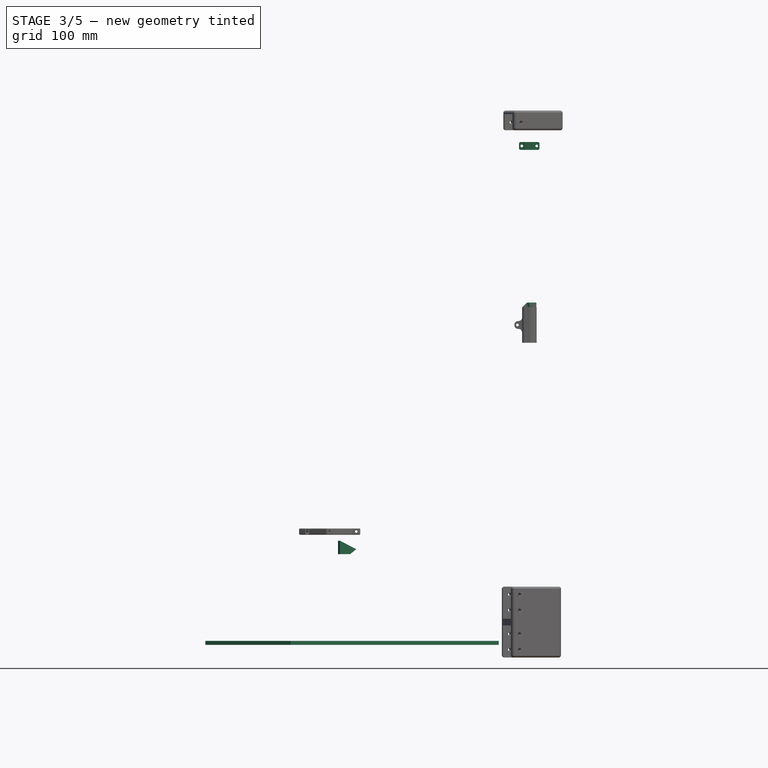
[diagram: stage 3 of 5 — front view after this stage's code; geometry added in this stage tinted green]
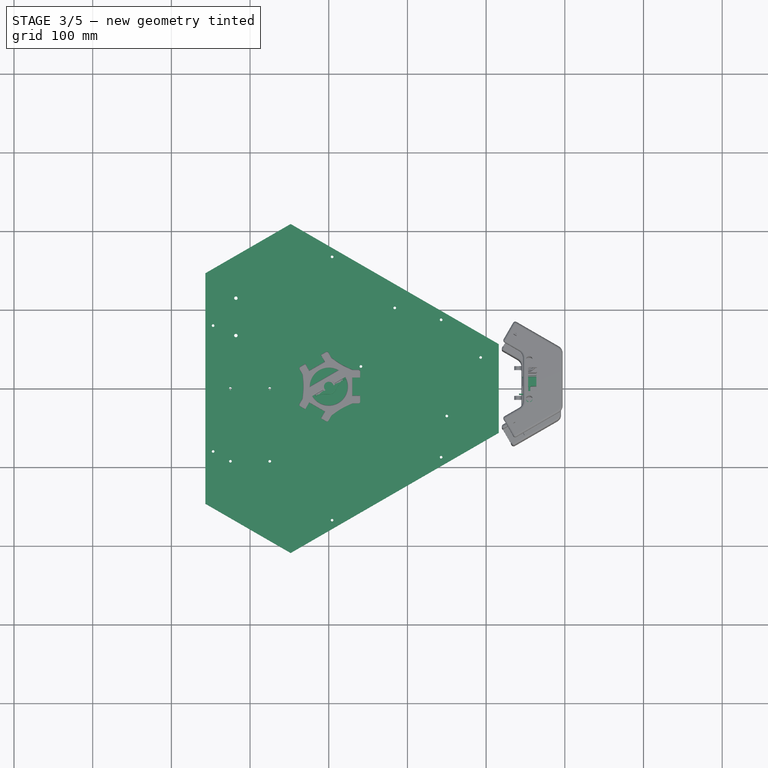
[diagram: stage 3 of 5 — top view after this stage's code; geometry added in this stage tinted green]
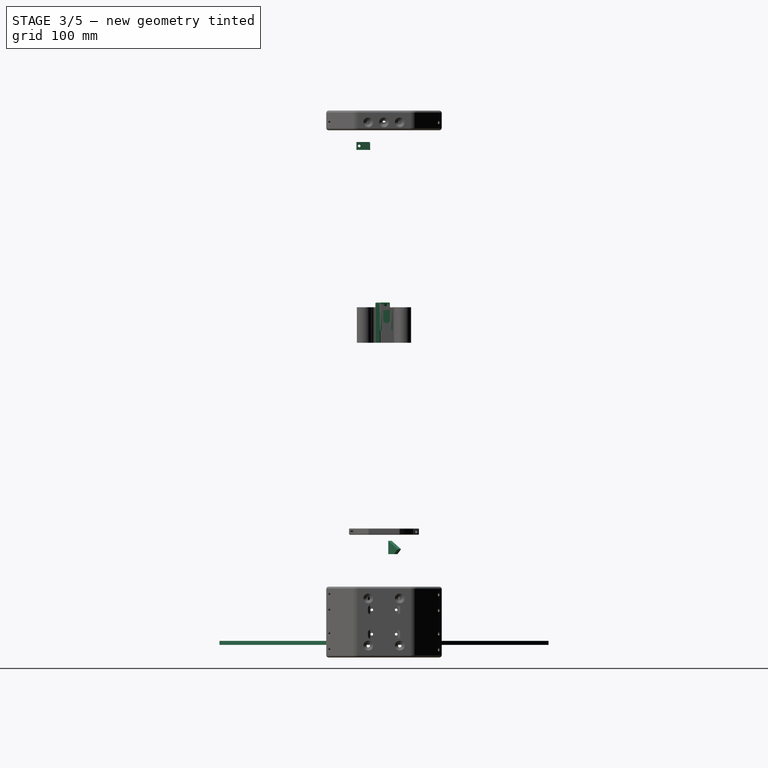
[diagram: stage 3 of 5 — right view after this stage's code; geometry added in this stage tinted green]
FEATURE [Sketcher::SketchObject] Sketch286
  Placement = pos=(0,0,645) rot=(0,0,1;0rad)
  sketch-geometry (12):
    g0: LineSegment StartX=241.8 StartY=-17.6 StartZ=0 EndX=241.8 EndY=-19.1 EndZ=0
    g1: LineSegment StartX=241.8 StartY=-19.1 StartZ=0 EndX=247.8 EndY=-19.1 EndZ=0
    g2: LineSegment StartX=247.8 StartY=-19.1 StartZ=0 EndX=247.8 EndY=-35.1 EndZ=0
    g3: LineSegment StartX=247.8 StartY=-35.1 StartZ=0 EndX=253.8 EndY=-35.1 EndZ=0
    g4: LineSegment StartX=261.8 StartY=-35.1 StartZ=0 EndX=261.8 EndY=-19.1 EndZ=0
    g5: LineSegment StartX=261.8 StartY=-19.1 StartZ=0 EndX=267.8 EndY=-19.1 EndZ=0
    g6: LineSegment StartX=267.8 StartY=-19.1 StartZ=0 EndX=267.8 EndY=-17.6 EndZ=0
    g7: LineSegment StartX=267.8 StartY=-17.6 StartZ=0 EndX=241.8 EndY=-17.6 EndZ=0
    g8: ArcOfCircle CenterX=254.8 CenterY=-23.5 CenterZ=0 NormalX=0 NormalY=0 NormalZ=1 Radius=4.2 StartAngle=4.95279 EndAngle=10.7552
    g9: LineSegment StartX=253.8 StartY=-27.5792 StartZ=0 EndX=253.8 EndY=-35.1 EndZ=0
    g10: LineSegment StartX=255.8 StartY=-27.5792 StartZ=0 EndX=255.8 EndY=-35.1 EndZ=0
    g11: LineSegment StartX=255.8 StartY=-35.1 StartZ=0 EndX=261.8 EndY=-35.1 EndZ=0
  constraints (37):
    c: Vertical(g0)
    c: Coincident(g0,g1)
    c: Horizontal(g1)
    c: Coincident(g1,g2)
    c: Vertical(g2)
    c: Coincident(g2,g3)
    c: Horizontal(g3)
    c: Coincident(g11,g4)
    c: Vertical(g4)
    c: Coincident(g4,g5)
    c: Horizontal(g5)
    c: Coincident(g5,g6)
    c: Vertical(g6)
    c: Coincident(g6,g7)
    c: Coincident(g7,g0)
    c: Horizontal(g7)
    c: DistanceX(g7,g7) = 26
    c: Equal(g0,g6)
    c: DistanceY(g0,g0) = 1.5
    c: DistanceY(g0,g-1) = 17.6
    c: DistanceX(g-1,g0) = 241.8
    c: DistanceX(g1,g4) = 14
    c: Radius(g8) = 4.2
    c: DistanceY(g8,g4) = 4.4
    c: DistanceY(g4,g4) = 16
    c: DistanceX(g1,g1) = 6
    c: Equal(g1,g5)
    c: DistanceX(g8,g4) = 7
    c: Vertical(g9)
    c: Vertical(g10)
    c: Coincident(g8,g10)
    c: Coincident(g8,g9)
    c: Coincident(g3,g9)
    c: Coincident(g11,g10)
    c: Tangent(g3,g11)
    c: Equal(g9,g10)
    c: DistanceX(g3,g10) = 2
FEATURE [PartDesign::Pad] Pad077
  Length = 10
  Length2 = 100
  Placement = pos=(0,0,645) rot=(0,0,1;0rad)
  Sketch = -> Sketch286
  Type = 0
FEATURE [Sketcher::SketchObject] Sketch287
  Placement = pos=(247.8,0,645) rot=(0.57735,-0.57735,-0.57735;2.0944rad)
  Support = -> Pad077 [Face9]
  sketch-geometry (1):
    g0: Circle CenterX=31.5 CenterY=5 CenterZ=0 NormalX=0 NormalY=0 NormalZ=1 Radius=1.7
  constraints (3):
    c: Radius(g0) = 1.7
    c: DistanceY(g-1,g0) = 5
    c: DistanceX(g-1,g0) = 31.5
FEATURE [PartDesign::Pocket] Pocket206
  Length = 5
  Placement = pos=(0,0,645) rot=(0,0,1;0rad)
  Sketch = -> Sketch287
  Type = 1
FEATURE [Sketcher::SketchObject] Sketch288
  Placement = pos=(261.8,0,645) rot=(0.57735,0.57735,0.57735;2.0944rad)
  Support = -> Pocket206 [Face8]
  sketch-geometry (7):
    g0: LineSegment StartX=-28.55 StartY=3.29682 StartZ=0 EndX=-28.55 EndY=6.70318 EndZ=0
    g1: LineSegment StartX=-28.55 StartY=6.70318 StartZ=0 EndX=-31.5 EndY=8.40637 EndZ=0
    g2: LineSegment StartX=-31.5 StartY=8.40637 StartZ=0 EndX=-34.45 EndY=6.70318 EndZ=0
    g3: LineSegment StartX=-34.45 StartY=6.70318 StartZ=0 EndX=-34.45 EndY=3.29682 EndZ=0
    g4: LineSegment StartX=-34.45 StartY=3.29682 StartZ=0 EndX=-31.5 EndY=1.59363 EndZ=0
    g5: LineSegment StartX=-31.5 StartY=1.59363 StartZ=0 EndX=-28.55 EndY=3.29682 EndZ=0
    g6: Circle [constr] CenterX=-31.5 CenterY=5 CenterZ=0 NormalX=0 NormalY=0 NormalZ=1 Radius=3.40637
  constraints (17):
    c: Coincident(g0,g1)
    c: Coincident(g1,g2)
    c: Coincident(g2,g3)
    c: Coincident(g3,g4)
    c: Coincident(g4,g5)
    c: Coincident(g5,g0)
    c: Equal(g0, g1-g5) x5
    c: PointOnObject(g0,g6)
    c: PointOnObject(g1,g6)
    c: PointOnObject(g2,g6)
    c: PointOnObject(g3,g6)
    c: PointOnObject(g4,g6)
    c: PointOnObject(g5,g6)
    c: Vertical(g0)
    c: DistanceY(g-1,g6) = 5
    c: DistanceX(g6,g-1) = 31.5
    c: DistanceX(g3,g0) = 5.9
FEATURE [PartDesign::Pocket] Pocket207
  Length = 3
  Placement = pos=(0,0,645) rot=(0,0,1;0rad)
  Sketch = -> Sketch288
  Type = 0
FEATURE [Sketcher::SketchObject] Sketch289
  Placement = pos=(247.8,0,645) rot=(0.57735,-0.57735,-0.57735;2.0944rad)
  Support = -> Pocket207 [Face14]
  sketch-geometry (1):
    g0: Circle CenterX=31.5 CenterY=5 CenterZ=0 NormalX=0 NormalY=0 NormalZ=1 Radius=3
  constraints (3):
    c: DistanceY(g-1,g0) = 5
    c: DistanceX(g-1,g0) = 31.5
    c: Radius(g0) = 3
FEATURE [PartDesign::Pocket] Pocket208
  Length = 3
  Placement = pos=(0,0,645) rot=(0,0,1;0rad)
  Sketch = -> Sketch289
  Type = 0
FEATURE [Sketcher::SketchObject] Sketch290
  Placement = pos=(0,-17.6,645) rot=(0,0.707107,0.707107;3.14159rad)
  Support = -> Pocket208 [Face11]
  sketch-geometry (2):
    g0: Circle CenterX=-264.3 CenterY=5 CenterZ=0 NormalX=0 NormalY=0 NormalZ=1 Radius=1.7
    g1: Circle CenterX=-245.3 CenterY=5 CenterZ=0 NormalX=0 NormalY=0 NormalZ=1 Radius=1.7
  constraints (6):
    c: DistanceY(g-1,g1) = 5
    c: DistanceY(g-1,g0) = 5
    c: DistanceX(g0,g1) = 19
    c: DistanceX(g1,g-1) = 245.3
    c: Radius(g0) = 1.7
    c: Equal(g0,g1)
FEATURE [PartDesign::Pocket] Pocket209
  Length = 5
  Placement = pos=(0,0,645) rot=(0,0,1;0rad)
  Sketch = -> Sketch290
  Type = 0
FEATURE [PartDesign::Pad] Pad093
  Length = 5
  Length2 = 100
  Midplane = true
  Placement = pos=(0,0,-6) rot=(0.935113,0.250563,0.250563;1.63783rad)
  Sketch = -> Sketch252
  Type = 0
FEATURE [PartDesign::Pad] Pad097
  Length = 8
  Length2 = 100
  Midplane = true
  Placement = pos=(0,0,160) rot=(0,0,1;0.523599rad)
  Sketch = -> Sketch320
  Type = 0
FEATURE [Sketcher::SketchObject] Sketch326
  Placement = pos=(0,0,164) rot=(0,0,1;0.523599rad)
  Support = -> Pad097 [Face10]
  sketch-geometry (1):
    g0: Circle CenterX=0 CenterY=0 CenterZ=0 NormalX=0 NormalY=0 NormalZ=1 Radius=8.15
  constraints (2):
    c: Coincident(g0,g-1)
    c: Radius(g0) = 8.15
FEATURE [PartDesign::Pocket] Pocket252
  Length = 2.1
  Placement = pos=(0,0,160) rot=(0,0,1;0.523599rad)
  Sketch = -> Sketch326
  Type = 0
FEATURE [PartDesign::Fillet] Fillet183
  Base = -> Pocket252 [Edge27,Edge28]
  Placement = pos=(0,0,160) rot=(0,0,1;0.523599rad)
  Radius = 22.07
FEATURE [PartDesign::Chamfer] Chamfer012
  Base = -> Fillet183 [Edge26,Edge32,Edge20,Edge22]
  Placement = pos=(0,0,160) rot=(0,0,1;0.523599rad)
  Size = 0.5
FEATURE [PartDesign::Fillet] Fillet184
  Base = -> Chamfer012 [Edge33,Edge8,Edge41,Edge11,Edge16,Edge1,Edge7,Edge30,Edge31,Edge38,Edge10,Edge39,Edge14,Edge21,Edge3,Edge22]
  Placement = pos=(0,0,160) rot=(0,0,1;0.523599rad)
  Radius = 1
FEATURE [App::DocumentObjectGroup] Group034  label="Hot End Clamp Files"
  Group = -> [Pad097,Pocket252,Fillet183,Chamfer012,Fillet184]
FEATURE [Sketcher::SketchObject] Sketch327
  Placement = pos=(0,0,160) rot=(-0.186157,0.694747,0.694747;3.50969rad)
  Support = -> Fillet184 [Face14]
  sketch-geometry (4):
    g0: Circle CenterX=-16.5 CenterY=0 CenterZ=0 NormalX=0 NormalY=0 NormalZ=1 Radius=2.2
    g1: Circle CenterX=-11.5 CenterY=0 CenterZ=0 NormalX=0 NormalY=0 NormalZ=1 Radius=2.2
    g2: Circle CenterX=11.5 CenterY=0 CenterZ=0 NormalX=0 NormalY=0 NormalZ=1 Radius=2.2
    g3: Circle CenterX=16.5 CenterY=0 CenterZ=0 NormalX=0 NormalY=0 NormalZ=1 Radius=2.2
  constraints (12):
    c: PointOnObject(g0,g-1)
    c: PointOnObject(g1,g-1)
    c: PointOnObject(g2,g-1)
    c: PointOnObject(g3,g-1)
    c: Radius(g0) = 2.2
    c: Equal(g0,g1)
    c: Equal(g0,g2)
    c: Equal(g0,g3)
    c: Symmetric(g1,g2,g-2)
    c: Symmetric(g0,g3,g-2)
    c: DistanceX(g1,g-1) = 11.5
    c: DistanceX(g0,g1) = 5
FEATURE [PartDesign::Pocket] Pocket253  label="Hot End Clamp"
  Length = 3.75
  Placement = pos=(0,0,160) rot=(0,0,1;0.523599rad)
  Sketch = -> Sketch327
  Type = 0
FEATURE [Sketcher::SketchObject] Sketch330
  Placement = pos=(0,0,448) rot=(0,0,1;0rad)
  sketch-geometry (6):
    g0: LineSegment StartX=254.9 StartY=6.4 StartZ=0 EndX=263.8 EndY=6.4 EndZ=0
    g1: LineSegment StartX=263.8 StartY=6.4 StartZ=0 EndX=263.8 EndY=0.7 EndZ=0
    g2: LineSegment StartX=263.8 StartY=0.7 StartZ=0 EndX=254.9 EndY=0.7 EndZ=0
    g3: LineSegment StartX=254.9 StartY=6.4 StartZ=0 EndX=253.255 EndY=3.55 EndZ=0
    g4: LineSegment StartX=254.9 StartY=0.7 StartZ=0 EndX=253.255 EndY=3.55 EndZ=0
    g5: LineSegment [constr] StartX=263.8 StartY=3.55 StartZ=0 EndX=248.8 EndY=3.55 EndZ=0
  constraints (19):
    c: Coincident(g0,g1)
    c: Coincident(g1,g2)
    c: Horizontal(g2)
    c: Vertical(g1)
    c: Horizontal(g0)
    c: DistanceY(g1,g0) = 5.7
    c: DistanceY(g-1,g1) = 0.7
    c: Equal(g2,g0)
    c: DistanceX(g0,g0) = 8.9
    c: Coincident(g3,g0)
    c: Coincident(g4,g2)
    c: Coincident(g4,g3)
    c: Horizontal(g5)
    c: Symmetric(g0,g1,g5)
    c: PointOnObject(g3,g5)
    c: Angle(g4,g3) = 2.0944
    c: DistanceX(g5,g5) = 15
    c: DistanceX(g-1,g1) = 263.8
    c: PointOnObject(g5,g1)
FEATURE [PartDesign::Pad] Pad099
  Length = 2.9
  Length2 = 100
  Midplane = true
  Placement = pos=(0,0,448) rot=(0,0,1;0rad)
  Sketch = -> Sketch330
  Type = 0
FEATURE [PartDesign::Pocket] Pocket257
  Length = 1
  Placement = pos=(0,0,645) rot=(0,0,1;0rad)
  Sketch = -> Sketch294
  Type = 0
FEATURE [PartDesign::Fillet] Fillet195
  Base = -> Pocket257 [Edge54,Edge29]
  Placement = pos=(0,0,645) rot=(0,0,1;0rad)
  Radius = 1
FEATURE [App::DocumentObjectGroup] Group033  label="Endstop Mount Files"
  Group = -> [Pad077,Pocket206,Pocket207,Pocket208,Pocket209,Pocket257,Fillet195]
FEATURE [PartDesign::Fillet] Fillet196  label="Endstop Mount"
  Base = -> Fillet195 [Edge8,Edge44,Edge61,Edge12]
  Placement = pos=(0,0,645) rot=(0,0,1;0rad)
  Radius = 2
FEATURE [PartDesign::Pad] Pad102  label="Belt Tensioner Base"
  Length = 12
  Length2 = 100
  Placement = pos=(252,0,0) rot=(0.57735,0.57735,0.57735;2.0944rad)
  Sketch = -> Sketch304
  Type = 0
FEATURE [Sketcher::SketchObject] Sketch305
  Placement = pos=(252,0,442) rot=(0,0,-1;1.5708rad)
  Support = -> Pad102 [Face1]
  sketch-geometry (1):
    g0: Circle CenterX=-3.5 CenterY=5.8 CenterZ=0 NormalX=0 NormalY=0 NormalZ=1 Radius=1.7
  constraints (3):
    c: Radius(g0) = 1.7
    c: DistanceX(g0,g-1) = 3.5
    c: DistanceY(g-1,g0) = 5.8
FEATURE [PartDesign::Pocket] Pocket258  label="Belt Tensioner"
  Length = 8
  Placement = pos=(252,0,0) rot=(0.57735,0.57735,0.57735;2.0944rad)
  Sketch = -> Sketch305
  Type = 0
FEATURE [PartDesign::Pad] Pad103
  Length = 4.3
  Length2 = 100
  Sketch = -> Sketch308
  Type = 0
FEATURE [Sketcher::SketchObject] Sketch309
  ExternalGeometry = -> [Pad103]
  Placement = pos=(0,0,445) rot=(0,0,1;0rad)
  Support = -> Pad103 [Face90]
  sketch-geometry (8):
    g0: LineSegment StartX=253.6 StartY=-4.5 StartZ=0 EndX=253.6 EndY=-11 EndZ=0
    g1: LineSegment StartX=253.6 StartY=-11 StartZ=0 EndX=256.1 EndY=-11 EndZ=0
    g2: LineSegment StartX=256.1 StartY=-11 StartZ=0 EndX=256.1 EndY=-4.5 EndZ=0
    g3: LineSegment StartX=256.1 StartY=-4.5 StartZ=0 EndX=263.8 EndY=-4.5 EndZ=0
    g4: LineSegment StartX=263.8 StartY=-4.5 StartZ=0 EndX=263.8 EndY=7.5 EndZ=0
    g5: LineSegment StartX=263.8 StartY=7.5 StartZ=0 EndX=251.8 EndY=7.5 EndZ=0
    g6: LineSegment StartX=251.8 StartY=7.5 StartZ=0 EndX=251.8 EndY=-4.5 EndZ=0
    g7: LineSegment StartX=251.8 StartY=-4.5 StartZ=0 EndX=253.6 EndY=-4.5 EndZ=0
  constraints (23):
    c: Coincident(g0,g1)
    c: Coincident(g1,g2)
    c: Horizontal(g1)
    c: Vertical(g0)
    c: Vertical(g2)
    c: DistanceY(g2,g2) = 6.5
    c: DistanceX(g0,g2) = 2.5
    c: Coincident(g3,g2)
    c: Horizontal(g3)
    c: Coincident(g4,g3)
    c: Vertical(g4)
    c: Coincident(g4,g5)
    c: Horizontal(g5)
    c: Coincident(g5,g6)
    c: Vertical(g6)
    c: Coincident(g6,g7)
    c: Coincident(g7,g0)
    c: Horizontal(g7)
    c: Equal(g2,g0)
    c: Coincident(g3,g-3)
    c: Coincident(g1,g-4)
    c: DistanceY(g6,g6) = 12
    c: DistanceX(g5,g5) = 12
FEATURE [PartDesign::Pad] Pad104
  Length = 6
  Length2 = 100
  Sketch = -> Sketch309
  Type = 0
FEATURE [Part::Cut] Cut008
  Base = -> Pad104
  Tool = -> Pad099
FEATURE [Sketcher::SketchObject] Sketch307
  ExternalGeometry = -> [Pad083]
  Placement = pos=(0,0,445) rot=(0,0,1;0rad)
  Support = -> Cut008 [Face4]
  sketch-geometry (4):
    g0: LineSegment StartX=251.8 StartY=9 StartZ=0 EndX=263.8 EndY=9 EndZ=0
    g1: LineSegment StartX=263.8 StartY=9 StartZ=0 EndX=263.8 EndY=7.5 EndZ=0
    g2: LineSegment StartX=263.8 StartY=7.5 StartZ=0 EndX=251.8 EndY=7.5 EndZ=0
    g3: LineSegment StartX=251.8 StartY=7.5 StartZ=0 EndX=251.8 EndY=9 EndZ=0
  constraints (11):
    c: Coincident(g0,g1)
    c: Coincident(g1,g2)
    c: Coincident(g2,g3)
    c: Coincident(g3,g0)
    c: Horizontal(g0)
    c: Horizontal(g2)
    c: Vertical(g1)
    c: Vertical(g3)
    c: Coincident(g0,g-3)
    c: DistanceY(g1,g1) = 1.5
    c: DistanceX(g2,g2) = 12
FEATURE [PartDesign::Pocket] Pocket259
  Length = 5
  Sketch = -> Sketch307
  Type = 0
FEATURE [Sketcher::SketchObject] Sketch329
  Placement = pos=(0,0,451) rot=(0,0,1;0rad)
  Support = -> Pocket259 [Face7]
  sketch-geometry (1):
    g0: Circle CenterX=257.8 CenterY=3.5 CenterZ=0 NormalX=0 NormalY=0 NormalZ=1 Radius=1.7
  constraints (3):
    c: DistanceY(g-1,g0) = 3.5
    c: DistanceX(g-1,g0) = 257.8
    c: Radius(g0) = 1.7
FEATURE [PartDesign::Pocket] Pocket260
  Length = 1
  Sketch = -> Sketch329
  Type = 0
FEATURE [Sketcher::SketchObject] Sketch331
  Placement = pos=(0,0,446.55) rot=(0,0,1;0rad)
  Support = -> Pocket260 [Face71]
  sketch-geometry (1):
    g0: Circle CenterX=257.8 CenterY=3.5 CenterZ=0 NormalX=0 NormalY=0 NormalZ=1 Radius=1.7
  constraints (3):
    c: DistanceY(g-1,g0) = 3.5
    c: DistanceX(g-1,g0) = 257.8
    c: Radius(g0) = 1.7
FEATURE [PartDesign::Pocket] Pocket261
  Length = 2.8
  Sketch = -> Sketch331
  Type = 0
FEATURE [Sketcher::SketchObject] Sketch332
  ExternalGeometry = -> [Pocket261]
  Placement = pos=(0,0,429) rot=(1,0,0;3.14159rad)
  Support = -> Pocket261 [Face61]
  sketch-geometry (8):
    g0: LineSegment StartX=251.8 StartY=4.5 StartZ=0 EndX=263.8 EndY=4.5 EndZ=0
    g1: LineSegment StartX=263.8 StartY=4.5 StartZ=0 EndX=263.8 EndY=2.5 EndZ=0
    g2: LineSegment StartX=263.8 StartY=2.5 StartZ=0 EndX=251.8 EndY=2.5 EndZ=0
    g3: LineSegment StartX=251.8 StartY=2.5 StartZ=0 EndX=251.8 EndY=4.5 EndZ=0
    g4: LineSegment StartX=263.8 StartY=-11 StartZ=0 EndX=251.8 EndY=-11 EndZ=0
    g5: LineSegment StartX=251.8 StartY=-11 StartZ=0 EndX=251.8 EndY=-9 EndZ=0
    g6: LineSegment StartX=251.8 StartY=-9 StartZ=0 EndX=263.8 EndY=-9 EndZ=0
    g7: LineSegment StartX=263.8 StartY=-9 StartZ=0 EndX=263.8 EndY=-11 EndZ=0
  constraints (22):
    c: Coincident(g0,g1)
    c: Coincident(g1,g2)
    c: Coincident(g2,g3)
    c: Coincident(g3,g0)
    c: Horizontal(g0)
    c: Horizontal(g2)
    c: Vertical(g1)
    c: Vertical(g3)
    c: Coincident(g4,g5)
    c: Coincident(g5,g6)
    c: Coincident(g6,g7)
    c: Coincident(g7,g4)
    c: Horizontal(g4)
    c: Horizontal(g6)
    c: Vertical(g5)
    c: Vertical(g7)
    c: Equal(g1,g7)
    c: Equal(g4,g2)
    c: Coincident(g4,g-5)
    c: Coincident(g0,g-3)
    c: DistanceX(g4,g4) = 12
    c: DistanceY(g7,g7) = 2
FEATURE [PartDesign::Pad] Pad105
  Length = 14
  Length2 = 100
  Sketch = -> Sketch332
  Type = 0
FEATURE [Sketcher::SketchObject] Sketch333
  ExternalGeometry = -> [Pad105]
  Placement = pos=(0,-2.5,0) rot=(0,0.707107,0.707107;3.14159rad)
  Support = -> Pad105 [Face106]
  sketch-geometry (4):
    g0: LineSegment StartX=-251.8 StartY=415 StartZ=0 EndX=-263.8 EndY=415 EndZ=0
    g1: LineSegment StartX=-263.8 StartY=415 StartZ=0 EndX=-263.8 EndY=417 EndZ=0
    g2: LineSegment StartX=-263.8 StartY=417 StartZ=0 EndX=-251.8 EndY=417 EndZ=0
    g3: LineSegment StartX=-251.8 StartY=417 StartZ=0 EndX=-251.8 EndY=415 EndZ=0
  constraints (11):
    c: Coincident(g0,g1)
    c: Coincident(g1,g2)
    c: Coincident(g2,g3)
    c: Coincident(g3,g0)
    c: Horizontal(g0)
    c: Horizontal(g2)
    c: Vertical(g1)
    c: Vertical(g3)
    c: DistanceY(g0,g1) = 2
    c: Coincident(g0,g-3)
    c: PointOnObject(g1,g-4)
FEATURE [PartDesign::Pad] Pad106
  Length = 2
  Length2 = 100
  Sketch = -> Sketch333
  Type = 0
FEATURE [PartDesign::Fillet] Fillet197
  Base = -> Pad106 [Edge78]
  Radius = 0.99
FEATURE [PartDesign::Fillet] Fillet198
  Base = -> Fillet197 [Edge101]
  Radius = 3.49
FEATURE [Sketcher::SketchObject] Sketch334
  Placement = pos=(0,0,16) rot=(0,0,1;0rad)
  sketch-geometry (6):
    g0: LineSegment StartX=-156.8 StartY=146.5 StartZ=0 EndX=-156.8 EndY=-146.5 EndZ=0
    g1: LineSegment StartX=-156.8 StartY=146.5 StartZ=0 EndX=-48.4289 EndY=209.068 EndZ=0
    g2: LineSegment StartX=-48.4289 StartY=209.068 StartZ=0 EndX=216 EndY=56.4 EndZ=0
    g3: LineSegment StartX=216 StartY=56.4 StartZ=0 EndX=216 EndY=-56.4 EndZ=0
    g4: LineSegment StartX=-156.8 StartY=-146.5 StartZ=0 EndX=-48.4289 EndY=-209.068 EndZ=0
    g5: LineSegment StartX=-48.4289 StartY=-209.068 StartZ=0 EndX=216 EndY=-56.4 EndZ=0
  constraints (17):
    c: Vertical(g0)
    c: Coincident(g1,g0)
    c: Coincident(g2,g1)
    c: Coincident(g3,g2)
    c: Vertical(g3)
    c: Coincident(g4,g0)
    c: Coincident(g5,g3)
    c: Coincident(g4,g5)
    c: Angle(g4,g0) = 2.0944
    c: Angle(g2,g3) = 2.0944
    c: DistanceY(g0,g0) = 293
    c: Symmetric(g4,g1,g-1)
    c: DistanceX(g0,g-1) = 156.8
    c: Angle(g3,g5) = 2.0944
    c: Angle(g0,g1) = 2.0944
    c: DistanceY(g-1,g2) = 56.4
    c: DistanceX(g-1,g3) = 216
FEATURE [PartDesign::Pad] Pad107
  Length = 5
  Length2 = 100
  Placement = pos=(0,0,16) rot=(0,0,1;0rad)
  Sketch = -> Sketch334
  Type = 0
FEATURE [Sketcher::SketchObject] Sketch335
  Placement = pos=(0,0,21) rot=(0,0,1;0rad)
  Support = -> Pad107 [Face8]
  sketch-geometry (9):
    g0: LineSegment [constr] StartX=83.8808 StartY=102.478 StartZ=0 EndX=193 EndY=39.4782 EndZ=0
    g1: LineSegment [constr] StartX=193 StartY=39.4782 StartZ=0 EndX=150 EndY=-35 EndZ=0
    g2: LineSegment [constr] StartX=150 StartY=-35 StartZ=0 EndX=40.8808 EndY=28 EndZ=0
    g3: LineSegment [constr] StartX=40.8808 StartY=28 StartZ=0 EndX=83.8808 EndY=102.478 EndZ=0
    g4: LineSegment [constr] StartX=0 StartY=-35 StartZ=0 EndX=150 EndY=-35 EndZ=0
    g5: Circle CenterX=83.8808 CenterY=102.478 CenterZ=0 NormalX=0 NormalY=0 NormalZ=1 Radius=1.7
    g6: Circle CenterX=193 CenterY=39.4782 CenterZ=0 NormalX=0 NormalY=0 NormalZ=1 Radius=1.7
    g7: Circle CenterX=150 CenterY=-35 CenterZ=0 NormalX=0 NormalY=0 NormalZ=1 Radius=1.7
    g8: Circle CenterX=40.8808 CenterY=28 CenterZ=0 NormalX=0 NormalY=0 NormalZ=1 Radius=1.7
  constraints (24):
    c: Coincident(g2,g1)
    c: Coincident(g3,g2)
    c: Coincident(g3,g0)
    c: Angle(g2,g3) = 1.5708
    c: Angle(g0,g1) = 1.5708
    c: Coincident(g1,g0)
    c: Distance(g3) = 86
    c: Distance(g0,g0) = 126
    c: Equal(g3,g1)
    c: Equal(g0,g2)
    c: Angle(g2,g4) = 0.523599
    c: Coincident(g4,g1)
    c: DistanceX(g4,g4) = 150
    c: Coincident(g5,g0)
    c: Coincident(g6,g0)
    c: Coincident(g8,g2)
    c: Radius(g8) = 1.7
    c: Equal(g8,g5)
    c: Equal(g8,g6)
    c: Equal(g8,g7)
    c: Coincident(g7,g1)
    c: Horizontal(g4)
    c: PointOnObject(g4,g-2)
    c: DistanceY(g4,g-1) = 35
FEATURE [PartDesign::Pocket] Pocket262
  Length = 5
  Placement = pos=(0,0,16) rot=(0,0,1;0rad)
  Sketch = -> Sketch335
  Type = 0
FEATURE [Sketcher::SketchObject] Sketch336
  Placement = pos=(0,0,21) rot=(0,0,1;0rad)
  Support = -> Pocket262 [Face5]
  sketch-geometry (11):
    g0: LineSegment [constr] StartX=-125 StartY=0 StartZ=0 EndX=-75 EndY=0 EndZ=0
    g1: LineSegment [constr] StartX=-75 StartY=0 StartZ=0 EndX=-75 EndY=-92.5 EndZ=0
    g2: LineSegment [constr] StartX=-75 StartY=-92.5 StartZ=0 EndX=-125 EndY=-92.5 EndZ=0
    g3: LineSegment [constr] StartX=-125 StartY=-92.5 StartZ=0 EndX=-125 EndY=0 EndZ=0
    g4: Circle CenterX=-125 CenterY=0 CenterZ=0 NormalX=0 NormalY=0 NormalZ=1 Radius=1.7
    g5: Circle CenterX=-75 CenterY=0 CenterZ=0 NormalX=0 NormalY=0 NormalZ=1 Radius=1.7
    g6: Circle CenterX=-75 CenterY=-92.5 CenterZ=0 NormalX=0 NormalY=0 NormalZ=1 Radius=1.7
    g7: Circle CenterX=-125 CenterY=-92.5 CenterZ=0 NormalX=0 NormalY=0 NormalZ=1 Radius=1.7
    g8: Circle CenterX=-118 CenterY=114.85 CenterZ=0 NormalX=0 NormalY=0 NormalZ=1 Radius=2.2
    g9: Circle CenterX=-118 CenterY=67.35 CenterZ=0 NormalX=0 NormalY=0 NormalZ=1 Radius=2.2
    g10: LineSegment [constr] StartX=-118 StartY=114.85 StartZ=0 EndX=-118 EndY=67.35 EndZ=0
  constraints (28):
    c: Coincident(g0,g1)
    c: Coincident(g1,g2)
    c: Coincident(g2,g3)
    c: Coincident(g3,g0)
    c: Horizontal(g0)
    c: Horizontal(g2)
    c: Vertical(g1)
    c: Vertical(g3)
    c: DistanceX(g0,g0) = 50
    c: DistanceY(g1,g1) = 92.5
    c: PointOnObject(g0,g-1)
    c: DistanceX(g0,g-1) = 75
    c: Coincident(g6,g1)
    c: Coincident(g7,g2)
    c: Radius(g6) = 1.7
    c: Equal(g6,g7)
    c: Equal(g6,g4)
    c: Equal(g6,g5)
    c: Coincident(g5,g0)
    c: Coincident(g4,g0)
    c: DistanceY(g9,g8) = 47.5
    c: Coincident(g10,g8)
    c: Coincident(g10,g9)
    c: Vertical(g10)
    c: DistanceY(g-1,g9) = 67.35
    c: DistanceX(g9,g-1) = 118
    c: Radius(g9) = 2.2
    c: Equal(g9,g8)
FEATURE [PartDesign::Pocket] Pocket263
  Length = 5
  Placement = pos=(0,0,16) rot=(0,0,1;0rad)
  Sketch = -> Sketch336
  Type = 0
FEATURE [Sketcher::SketchObject] Sketch337
  ExternalGeometry = -> [Pocket263]
  Placement = pos=(0,0,21) rot=(0,0,1;0rad)
  Support = -> Pocket263 [Face5]
  sketch-geometry (10):
    g0: Circle CenterX=-147 CenterY=80 CenterZ=0 NormalX=0 NormalY=0 NormalZ=1 Radius=1.7
    g1: Circle CenterX=-147 CenterY=-80 CenterZ=0 NormalX=0 NormalY=0 NormalZ=1 Radius=1.7
    g2: Circle CenterX=4.2618 CenterY=-167.331 CenterZ=0 NormalX=0 NormalY=0 NormalZ=1 Radius=1.7
    g3: Circle CenterX=142.826 CenterY=-87.331 CenterZ=0 NormalX=0 NormalY=0 NormalZ=1 Radius=1.7
    g4: LineSegment [constr] StartX=-147 StartY=-80 StartZ=0 EndX=4.2618 EndY=-167.331 EndZ=0
    g5: LineSegment [constr] StartX=4.2618 StartY=-167.331 StartZ=0 EndX=142.826 EndY=-87.331 EndZ=0
    g6: LineSegment [constr] StartX=-147 StartY=80 StartZ=0 EndX=4.2618 EndY=167.331 EndZ=0
    g7: LineSegment [constr] StartX=4.2618 StartY=167.331 StartZ=0 EndX=142.826 EndY=87.331 EndZ=0
    g8: Circle CenterX=4.2618 CenterY=167.331 CenterZ=0 NormalX=0 NormalY=0 NormalZ=1 Radius=1.7
    g9: Circle CenterX=142.826 CenterY=87.331 CenterZ=0 NormalX=0 NormalY=0 NormalZ=1 Radius=1.7
  constraints (24):
    c: Radius(g1) = 1.7
    c: Equal(g1,g0)
    c: DistanceX(g1,g-1) = 147
    c: DistanceY(g1,g-1) = 80
    c: Symmetric(g1,g0,g-1)
    c: Equal(g2,g3)
    c: Equal(g3,g1)
    c: Distance(g3,g2) = 160
    c: Coincident(g4,g1)
    c: Coincident(g5,g3)
    c: Coincident(g5,g2)
    c: Coincident(g4,g2)
    c: Angle(g5,g4) = 2.0944
    c: Coincident(g7,g6)
    c: Angle(g6,g7) = 2.0944
    c: Distance(g6,g7) = 160
    c: DistanceX(g-1,g2) = 4.2618
    c: Symmetric(g6,g2,g-1)
    c: DistanceY(g2,g-1) = 167.331
    c: Coincident(g6,g0)
    c: Coincident(g8,g6)
    c: Coincident(g9,g7)
    c: Equal(g9,g8)
    c: Equal(g8,g0)
FEATURE [PartDesign::Pocket] Pocket264  label="Electronics Plate"
  Length = 5
  Placement = pos=(0,0,16) rot=(0,0,1;0rad)
  Sketch = -> Sketch337
  Type = 0
FEATURE [PartDesign::Chamfer] Chamfer013
  Base = -> Fillet198 [Edge109]
  Size = 5.99
FEATURE [PartDesign::Fillet] Fillet199
  Base = -> Chamfer013 [Edge78,Edge71]
  Radius = 1
FEATURE [PartDesign::Fillet] Fillet200
  Base = -> Fillet199 [Edge8,Edge9,Edge5,Edge3,Edge1,Edge14,Edge18,Edge28]
  Radius = 1
FEATURE [PartDesign::Fillet] Fillet201
  Base = -> Fillet200 [Edge36]
  Radius = 1
FEATURE [App::DocumentObjectGroup] Group005  label="Carriage Files"
  Group = -> [Pad015,Fillet033,Pad016,Fillet146,Fillet147,Fillet148,Pocket215,Pocket216,Mirrored,Cut005,Pad081,Pocket218,Pad082,LinearPattern,Pad083,Pad103,Cut008,Pocket259,Pocket260,Pocket261,Pad105,Pad106,Fillet197,Fillet198,Chamfer013,Fillet199,Fillet200,Fillet201]
FEATURE [PartDesign::Chamfer] Chamfer014  label="Carriage"
  Base = -> Fillet201 [Edge131,Edge148,Edge86,Edge69]
  Size = 0.75
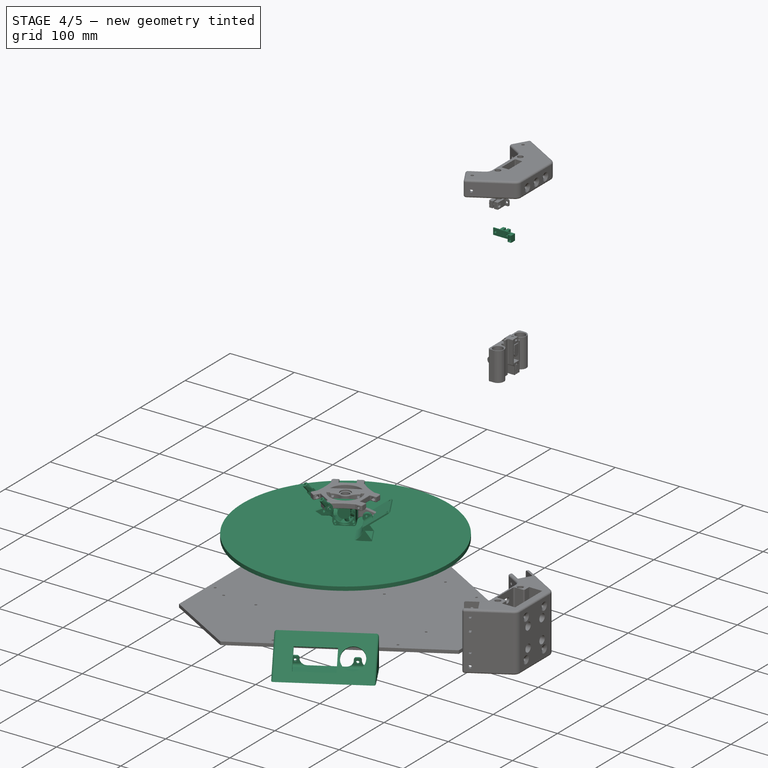
[diagram: stage 4 of 5 — iso view after this stage's code; geometry added in this stage tinted green]
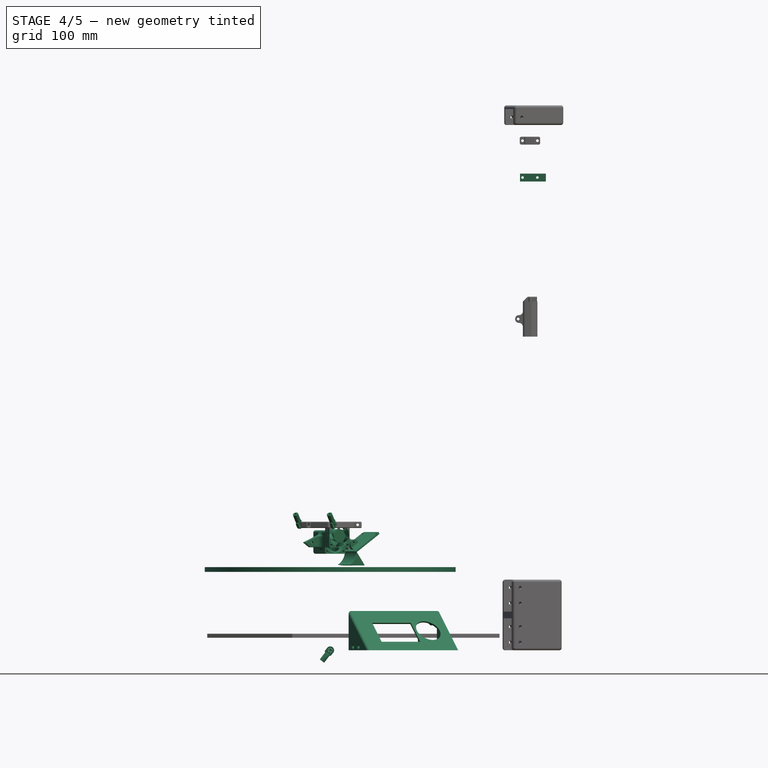
[diagram: stage 4 of 5 — front view after this stage's code; geometry added in this stage tinted green]
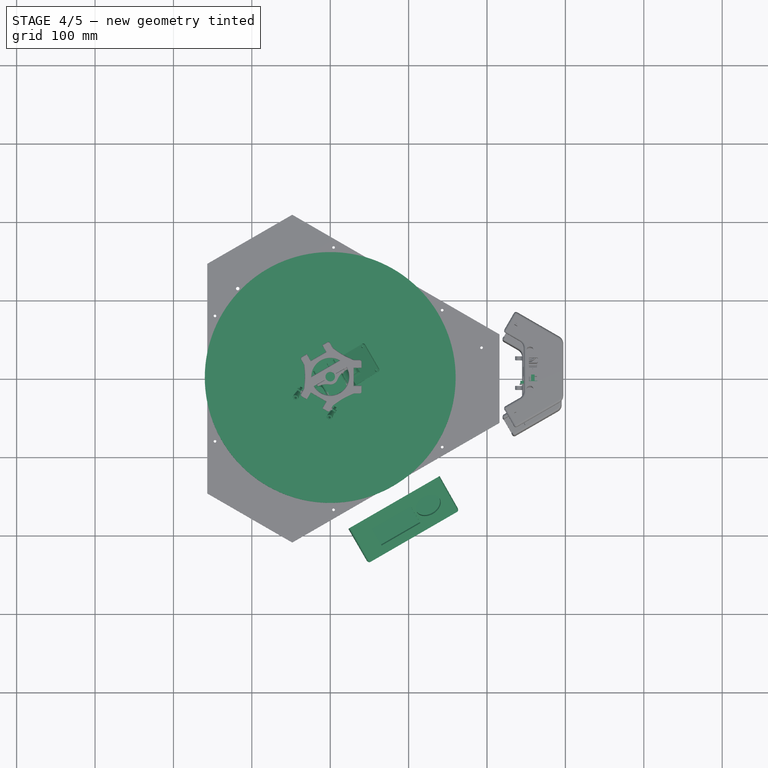
[diagram: stage 4 of 5 — top view after this stage's code; geometry added in this stage tinted green]
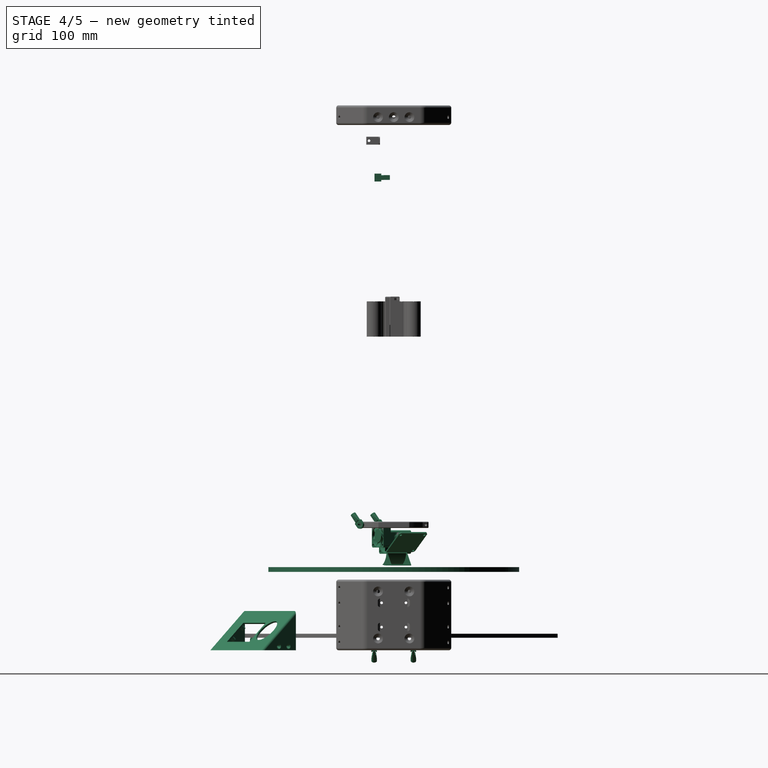
[diagram: stage 4 of 5 — right view after this stage's code; geometry added in this stage tinted green]
FEATURE [Part::Cylinder] Cylinder  label="Build Plate"
  Angle = 360
  Height = 6
  Placement = pos=(0,0,100) rot=(0,0,1;0rad)
  Radius = 160
FEATURE [Part::Feature] Part__Feature060  label="5347 ball008"
  shape: bbox 6.98 x 5.29 x 5.29 mm, 11 faces (baked)
FEATURE [Part::Feature] Part__Feature061  label="rod end 5355"
  Placement = pos=(-0.00421036,0.0017498,0.0142902) rot=(0.550048,0.628407,0.550048;2.0195rad)
  shape: bbox 7.577 x 11.49 x 22.98 mm, 43 faces (baked)
FEATURE [Part::MultiFuse] Fusion030  label="Ball Joint008"
  Placement = pos=(0,25,0) rot=(0.357407,0.357407,0.862856;1.71777rad)
  Shapes = -> [Part__Feature060,Part__Feature061]
FEATURE [Part::Feature] Part__Feature062  label="5347 ball009"
  shape: bbox 6.98 x 5.29 x 5.29 mm, 11 faces (baked)
FEATURE [Part::Feature] Part__Feature063  label="rod end 5356"
  Placement = pos=(-0.00421036,0.0017498,0.0142902) rot=(0.550048,0.628407,0.550048;2.0195rad)
  shape: bbox 7.577 x 11.49 x 22.98 mm, 43 faces (baked)
FEATURE [Part::MultiFuse] Fusion031  label="Ball Joint009"
  Placement = pos=(0,-25,0) rot=(0.357407,0.357407,0.862856;1.71777rad)
  Shapes = -> [Part__Feature062,Part__Feature063]
FEATURE [Part::Feature] Part__Feature064  label="5347 ball010"
  shape: bbox 6.98 x 5.29 x 5.29 mm, 11 faces (baked)
FEATURE [Part::Feature] Part__Feature065  label="rod end 5357"
  Placement = pos=(-0.00421036,0.0017498,0.0142902) rot=(0.550048,0.628407,0.550048;2.0195rad)
  shape: bbox 7.577 x 11.49 x 22.98 mm, 43 faces (baked)
FEATURE [Part::MultiFuse] Fusion033  label="Ball Joint010"
  Placement = pos=(0,25,0) rot=(0.357407,0.357407,0.862856;1.71777rad)
  Shapes = -> [Part__Feature064,Part__Feature065]
FEATURE [Part::Feature] Part__Feature066  label="5347 ball011"
  shape: bbox 6.98 x 5.29 x 5.29 mm, 11 faces (baked)
FEATURE [Part::Feature] Part__Feature067  label="rod end 5358"
  Placement = pos=(-0.00421036,0.0017498,0.0142902) rot=(0.550048,0.628407,0.550048;2.0195rad)
  shape: bbox 7.577 x 11.49 x 22.98 mm, 43 faces (baked)
FEATURE [Part::MultiFuse] Fusion034  label="Ball Joint011"
  Placement = pos=(0,-25,0) rot=(0.357407,0.357407,0.862856;1.71777rad)
  Shapes = -> [Part__Feature066,Part__Feature067]
FEATURE [Part::MultiFuse] Fusion035  label="Effector Ball Joints 003"
  Placement = pos=(-17.5,-30.3109,160) rot=(0.866025,0.5,0;3.14159rad)
  Shapes = -> [Fusion034,Fusion033]
FEATURE [Part::Feature] Part__Feature072  label="Heatbreak001"
  Placement = pos=(0,0,115.982) rot=(0,0,1;0rad)
  shape: bbox 8.125 x 8.125 x 22.74 mm, 18 faces (baked)
FEATURE [Part::Feature] Part__Feature073  label="Heaterblock001"
  Placement = pos=(-48.8288,18.574,109.482) rot=(0,0,1;2.0944rad)
  shape: bbox 23.36 x 24.82 x 12.14 mm, 50 faces (baked)
FEATURE [Part::Feature] Part__Feature074  label="Nozzle 0.4mm001"
  Placement = pos=(25,0,105.982) rot=(0,0,1;0rad)
  shape: bbox 8.09 x 7.007 x 12.64 mm, 25 faces (baked)
FEATURE [Part::Feature] Part__Feature075  label="Heatsink001"
  Placement = pos=(0,50,123.1) rot=(0,0,1;0rad)
  shape: bbox 22.3 x 22.3 x 43.02 mm, 75 faces (baked)
FEATURE [App::DocumentObjectGroup] Group024  label="E3D v6"
  Group = -> [Part__Feature072,Part__Feature075,Part__Feature073,Part__Feature074]
FEATURE [Sketcher::SketchObject] Sketch237
  Placement = pos=(0,0,123) rot=(0,0,-1;1.0472rad)
  sketch-geometry (8):
    g0: LineSegment StartX=-17 StartY=15 StartZ=0 EndX=13 EndY=15 EndZ=0
    g1: LineSegment StartX=13 StartY=15 StartZ=0 EndX=13 EndY=-15 EndZ=0
    g2: LineSegment StartX=13 StartY=-15 StartZ=0 EndX=-17 EndY=-15 EndZ=0
    g3: LineSegment StartX=-17 StartY=-15 StartZ=0 EndX=-17 EndY=-5 EndZ=0
    g4: ArcOfCircle CenterX=0 CenterY=0 CenterZ=0 NormalX=0 NormalY=0 NormalZ=1 Radius=11.4 StartAngle=3.59563 EndAngle=8.97074
    g5: LineSegment StartX=-17 StartY=5 StartZ=0 EndX=-10.245 EndY=5 EndZ=0
    g6: LineSegment StartX=-17 StartY=-5 StartZ=0 EndX=-10.245 EndY=-5 EndZ=0
    g7: LineSegment StartX=-17 StartY=5 StartZ=0 EndX=-17 EndY=15 EndZ=0
  constraints (23):
    c: Coincident(g0,g1)
    c: Coincident(g1,g2)
    c: Coincident(g2,g3)
    c: Coincident(g7,g0)
    c: Horizontal(g0)
    c: Horizontal(g2)
    c: Vertical(g1)
    c: Vertical(g3)
    c: Symmetric(g1,g0,g-1)
    c: DistanceX(g2,g2) = 30
    c: DistanceX(g-1,g1) = 13
    c: Coincident(g4,g-1)
    c: Radius(g4) = 11.4
    c: DistanceY(g3,g7) = 30
    c: Horizontal(g5)
    c: Horizontal(g6)
    c: Coincident(g3,g6)
    c: Coincident(g7,g5)
    c: Tangent(g3,g7)
    c: DistanceY(g3,g5) = 10
    c: Symmetric(g3,g5,g-1)
    c: Coincident(g4,g6)
    c: Coincident(g4,g5)
FEATURE [PartDesign::Pad] Pad058
  Length = 30
  Length2 = 100
  Placement = pos=(0,0,123) rot=(0,0,-1;1.0472rad)
  Sketch = -> Sketch237
  Type = 0
FEATURE [Sketcher::SketchObject] Sketch238
  Placement = pos=(6.5,-11.2583,123) rot=(0.935113,0.250563,0.250563;1.63783rad)
  Support = -> Pad058 [Face3]
  sketch-geometry (1):
    g0: Circle CenterX=0 CenterY=15 CenterZ=0 NormalX=0 NormalY=0 NormalZ=1 Radius=12
  constraints (3):
    c: PointOnObject(g0,g-2)
    c: DistanceY(g-1,g0) = 15
    c: Radius(g0) = 12
FEATURE [PartDesign::Pocket] Pocket180
  Length = 5
  Placement = pos=(0,0,123) rot=(0,0,-1;1.0472rad)
  Sketch = -> Sketch238
  Type = 0
FEATURE [Part::Feature] Part__Feature076  label="Part 1"
  shape: bbox 30 x 30.5 x 10.5 mm, 33 faces (baked)
FEATURE [Part::Feature] Part__Feature077  label="Part 2"
  shape: bbox 28.66 x 28.3 x 8.25 mm, 39 faces (baked)
FEATURE [Part::MultiFuse] Fusion037  label="30mm Fan"
  Placement = pos=(11.75,-20.3516,146) rot=(-0.447214,-0.774597,-0.447214;1.82348rad)
  Shapes = -> [Part__Feature076,Part__Feature077]
FEATURE [Sketcher::SketchObject] Sketch240
  Placement = pos=(6.5,-11.2583,123) rot=(0.935113,0.250563,0.250563;1.63783rad)
  Support = -> Pocket180 [Face7]
  sketch-geometry (8):
    g0: LineSegment [constr] StartX=-12 StartY=27 StartZ=0 EndX=12 EndY=27 EndZ=0
    g1: LineSegment [constr] StartX=12 StartY=27 StartZ=0 EndX=12 EndY=3 EndZ=0
    g2: LineSegment [constr] StartX=12 StartY=3 StartZ=0 EndX=-12 EndY=3 EndZ=0
    g3: LineSegment [constr] StartX=-12 StartY=3 StartZ=0 EndX=-12 EndY=27 EndZ=0
    g4: Circle CenterX=-12 CenterY=27 CenterZ=0 NormalX=0 NormalY=0 NormalZ=1 Radius=1.5
    g5: Circle CenterX=12 CenterY=27 CenterZ=0 NormalX=0 NormalY=0 NormalZ=1 Radius=1.5
    g6: Circle CenterX=12 CenterY=3 CenterZ=0 NormalX=0 NormalY=0 NormalZ=1 Radius=1.5
    g7: Circle CenterX=-12 CenterY=3 CenterZ=0 NormalX=0 NormalY=0 NormalZ=1 Radius=1.5
  constraints (20):
    c: Coincident(g0,g1)
    c: Coincident(g1,g2)
    c: Coincident(g2,g3)
    c: Coincident(g3,g0)
    c: Horizontal(g0)
    c: Horizontal(g2)
    c: Vertical(g1)
    c: Vertical(g3)
    c: Symmetric(g1,g2,g-2)
    c: DistanceY(g-1,g2) = 3
    c: DistanceX(g2,g2) = 24
    c: DistanceY(g3,g3) = 24
    c: Coincident(g5,g0)
    c: Coincident(g6,g1)
    c: Coincident(g7,g2)
    c: Radius(g7) = 1.5
    c: Equal(g7,g6)
    c: Equal(g7,g5)
    c: Equal(g7,g4)
    c: Coincident(g4,g0)
FEATURE [PartDesign::Pocket] Pocket181
  Length = 15
  Placement = pos=(0,0,123) rot=(0,0,-1;1.0472rad)
  Sketch = -> Sketch240
  Type = 0
FEATURE [PartDesign::Fillet] Fillet106
  Base = -> Pocket181 [Edge10,Edge9,Edge12,Edge17]
  Placement = pos=(0,0,123) rot=(0,0,-1;1.0472rad)
  Radius = 3
FEATURE [Sketcher::SketchObject] Sketch241
  Placement = pos=(12.9904,7.5,123) rot=(0.377964,0.654654,0.654654;2.41886rad)
  Support = -> Fillet106 [Face2]
  sketch-geometry (1):
    g0: Circle CenterX=13.5 CenterY=15 CenterZ=0 NormalX=0 NormalY=0 NormalZ=1 Radius=1.7
  constraints (3):
    c: DistanceY(g-1,g0) = 15
    c: DistanceX(g-1,g0) = 13.5
    c: Radius(g0) = 1.7
FEATURE [PartDesign::Pocket] Pocket182
  Length = 5
  Placement = pos=(0,0,123) rot=(0,0,-1;1.0472rad)
  Sketch = -> Sketch241
  Type = 1
FEATURE [Sketcher::SketchObject] Sketch242
  Placement = pos=(12.9904,7.5,123) rot=(0.377964,0.654654,0.654654;2.41886rad)
  Support = -> Pocket182 [Face2]
  sketch-geometry (1):
    g0: Circle CenterX=13.5 CenterY=15 CenterZ=0 NormalX=0 NormalY=0 NormalZ=1 Radius=3
  constraints (3):
    c: DistanceY(g-1,g0) = 15
    c: DistanceX(g-1,g0) = 13.5
    c: Radius(g0) = 3
FEATURE [PartDesign::Pocket] Pocket183
  Length = 3
  Placement = pos=(0,0,123) rot=(0,0,-1;1.0472rad)
  Sketch = -> Sketch242
  Type = 0
FEATURE [Sketcher::SketchObject] Sketch243
  Placement = pos=(-12.9904,-7.5,123) rot=(0.774597,-0.447214,-0.447214;1.82348rad)
  Support = -> Pocket183 [Face16]
  sketch-geometry (7):
    g0: LineSegment StartX=-13.5 StartY=11.5936 StartZ=0 EndX=-10.55 EndY=13.2968 EndZ=0
    g1: LineSegment StartX=-10.55 StartY=13.2968 StartZ=0 EndX=-10.55 EndY=16.7032 EndZ=0
    g2: LineSegment StartX=-10.55 StartY=16.7032 StartZ=0 EndX=-13.5 EndY=18.4064 EndZ=0
    g3: LineSegment StartX=-13.5 StartY=18.4064 StartZ=0 EndX=-16.45 EndY=16.7032 EndZ=0
    g4: LineSegment StartX=-16.45 StartY=16.7032 StartZ=0 EndX=-16.45 EndY=13.2968 EndZ=0
    g5: LineSegment StartX=-16.45 StartY=13.2968 StartZ=0 EndX=-13.5 EndY=11.5936 EndZ=0
    g6: Circle [constr] CenterX=-13.5 CenterY=15 CenterZ=0 NormalX=0 NormalY=0 NormalZ=1 Radius=3.40637
  constraints (17):
    c: Coincident(g0,g1)
    c: Coincident(g1,g2)
    c: Coincident(g2,g3)
    c: Coincident(g3,g4)
    c: Coincident(g4,g5)
    c: Coincident(g5,g0)
    c: Equal(g0, g1-g5) x5
    c: PointOnObject(g0,g6)
    c: PointOnObject(g1,g6)
    c: PointOnObject(g2,g6)
    c: PointOnObject(g3,g6)
    c: PointOnObject(g4,g6)
    c: PointOnObject(g5,g6)
    c: Vertical(g4)
    c: DistanceX(g3,g1) = 5.9
    c: DistanceY(g-1,g6) = 15
    c: DistanceX(g6,g-1) = 13.5
FEATURE [PartDesign::Pocket] Pocket184
  Length = 3
  Placement = pos=(0,0,123) rot=(0,0,-1;1.0472rad)
  Sketch = -> Sketch243
  Type = 0
FEATURE [Part::Chamfer] Chamfer
  Base = -> Pocket184
  Edges = 1 edges: [Edge33 r1=2 r2=1]
FEATURE [Sketcher::SketchObject] Sketch247
  Placement = pos=(7,0,-6) rot=(0.57735,0.57735,0.57735;2.0944rad)
  sketch-geometry (4):
    g0: LineSegment StartX=18.7857 StartY=131.423 StartZ=0 EndX=30.2 EndY=115 EndZ=0
    g1: ArcOfCircle CenterX=0 CenterY=133 CenterZ=0 NormalX=0 NormalY=0 NormalZ=1 Radius=18.8518 StartAngle=5.16809 EndAngle=6.19943
    g2: LineSegment StartX=8.29654 StartY=116.072 StartZ=0 EndX=14.2 EndY=115 EndZ=0
    g3: LineSegment StartX=30.2 StartY=115 StartZ=0 EndX=14.2 EndY=115 EndZ=0
  constraints (13):
    c: Coincident(g1,g0)
    c: Coincident(g2,g1)
    c: Coincident(g3,g0)
    c: Coincident(g3,g2)
    c: PointOnObject(g1,g-2)
    c: Distance(g0) = 20
    c: Horizontal(g3)
    c: DistanceX(g-1,g0) = 30.2
    c: Angle(g0,g3) = 0.963422
    c: DistanceX(g3,g3) = 16
    c: DistanceY(g-1,g0) = 115
    c: Distance(g2) = 6
    c: DistanceY(g-1,g1) = 133
FEATURE [PartDesign::Pad] Pad059
  Length = 30
  Length2 = 100
  Midplane = true
  Placement = pos=(7,0,-6) rot=(0.57735,0.57735,0.57735;2.0944rad)
  Sketch = -> Sketch247
  Type = 0
FEATURE [Sketcher::SketchObject] Sketch249
  Placement = pos=(7,0,-6) rot=(0.57735,0.57735,0.57735;2.0944rad)
  sketch-geometry (4):
    g0: LineSegment StartX=19.5 StartY=130.62 StartZ=0 EndX=30 EndY=116 EndZ=0
    g1: ArcOfCircle CenterX=0 CenterY=133 CenterZ=0 NormalX=0 NormalY=0 NormalZ=1 Radius=19.6447 StartAngle=5.10411 EndAngle=6.16174
    g2: LineSegment StartX=7.5 StartY=114.843 StartZ=0 EndX=12.4211 EndY=115.728 EndZ=0
    g3: LineSegment StartX=30 StartY=116 StartZ=0 EndX=12.4211 EndY=115.728 EndZ=0
  constraints (13):
    c: Coincident(g1,g0)
    c: Coincident(g2,g1)
    c: Coincident(g3,g0)
    c: PointOnObject(g1,g-2)
    c: Distance(g0) = 18
    c: DistanceX(g-1,g0) = 30
    c: Angle(g0,g3) = 0.963422
    c: DistanceY(g-1,g0) = 116
    c: Distance(g2) = 5
    c: Coincident(g2,g3)
    c: DistanceY(g-1,g1) = 133
    c: DistanceX(g-1,g0) = 19.5
    c: DistanceX(g1,g1) = 7.5
FEATURE [PartDesign::Pad] Pad060
  Length = 28
  Length2 = 100
  Midplane = true
  Placement = pos=(7,0,-6) rot=(0.57735,0.57735,0.57735;2.0944rad)
  Sketch = -> Sketch249
  Type = 0
FEATURE [App::DocumentObjectGroup] Group  label="Bottom Bracket Files"
  Group = -> [Group001,Chamfer002]
FEATURE [Part::Feature] Part__Feature085  label="Optical endstop v3"
  shape: bbox 24.5 x 13.6 x 6 mm, 49 faces (baked)
FEATURE [Part::Feature] Part__Feature086  label="Optical endstop v004"
  shape: bbox 33 x 9.5 x 10 mm, 61 faces (baked)
FEATURE [Part::MultiFuse] Fusion048  label="Optical Endstop"
  Placement = pos=(254.8,-16,600) rot=(0,0,1;0rad)
  Shapes = -> [Part__Feature085,Part__Feature086]
FEATURE [Sketcher::SketchObject] Sketch304
  Placement = pos=(252,0,0) rot=(0.57735,0.57735,0.57735;2.0944rad)
  sketch-geometry (18):
    g0: LineSegment StartX=-1 StartY=442 StartZ=0 EndX=7.5 EndY=442 EndZ=0
    g1: LineSegment StartX=-1 StartY=441 StartZ=0 EndX=-1 EndY=440 EndZ=0
    g2: LineSegment StartX=7.5 StartY=442 StartZ=0 EndX=7.5 EndY=429 EndZ=0
    g3: ArcOfCircle CenterX=3.25 CenterY=429 CenterZ=0 NormalX=0 NormalY=0 NormalZ=1 Radius=4.25 StartAngle=3.14159 EndAngle=6.28319
    g4: LineSegment [constr] StartX=-1 StartY=429 StartZ=0 EndX=7.5 EndY=429 EndZ=0
    g5: ArcOfCircle CenterX=-1 CenterY=429.5 CenterZ=0 NormalX=0 NormalY=0 NormalZ=1 Radius=0.5 StartAngle=1.5708 EndAngle=4.71239
    g6: ArcOfCircle CenterX=-1 CenterY=431.5 CenterZ=0 NormalX=0 NormalY=0 NormalZ=1 Radius=0.5 StartAngle=1.5708 EndAngle=4.71239
    g7: ArcOfCircle CenterX=-1 CenterY=433.5 CenterZ=0 NormalX=0 NormalY=0 NormalZ=1 Radius=0.5 StartAngle=1.5708 EndAngle=4.71239
    g8: ArcOfCircle CenterX=-1 CenterY=435.5 CenterZ=0 NormalX=0 NormalY=0 NormalZ=1 Radius=0.5 StartAngle=1.5708 EndAngle=4.71239
    g9: ArcOfCircle CenterX=-1 CenterY=437.5 CenterZ=0 NormalX=0 NormalY=0 NormalZ=1 Radius=0.5 StartAngle=1.5708 EndAngle=4.71239
    g10: ArcOfCircle CenterX=-1 CenterY=439.5 CenterZ=0 NormalX=0 NormalY=0 NormalZ=1 Radius=0.5 StartAngle=1.5708 EndAngle=4.71239
    g11: ArcOfCircle CenterX=-1 CenterY=441.5 CenterZ=0 NormalX=0 NormalY=0 NormalZ=1 Radius=0.5 StartAngle=1.5708 EndAngle=4.71239
    g12: LineSegment StartX=-1 StartY=439 StartZ=0 EndX=-1 EndY=438 EndZ=0
    g13: LineSegment StartX=-1 StartY=437 StartZ=0 EndX=-1 EndY=436 EndZ=0
    g14: LineSegment StartX=-1 StartY=435 StartZ=0 EndX=-1 EndY=434 EndZ=0
    g15: LineSegment StartX=-1 StartY=433 StartZ=0 EndX=-1 EndY=432 EndZ=0
    g16: LineSegment StartX=-1 StartY=431 StartZ=0 EndX=-1 EndY=430 EndZ=0
    g17: LineSegment [constr] StartX=-1 StartY=442 StartZ=0 EndX=-1 EndY=429 EndZ=0
  constraints (64):
    c: Horizontal(g0)
    c: Vertical(g1)
    c: Vertical(g2)
    c: Coincident(g3,g2)
    c: Coincident(g4,g3)
    c: Coincident(g4,g2)
    c: Horizontal(g4)
    c: PointOnObject(g3,g4)
    c: Coincident(g0,g2)
    c: DistanceX(g0,g0) = 8.5
    c: PointOnObject(g5,g1)
    c: PointOnObject(g5,g1)
    c: PointOnObject(g6,g1)
    c: PointOnObject(g6,g1)
    c: PointOnObject(g6,g1)
    c: PointOnObject(g7,g1)
    c: PointOnObject(g7,g1)
    c: PointOnObject(g7,g1)
    c: PointOnObject(g8,g1)
    c: PointOnObject(g8,g1)
    c: PointOnObject(g8,g1)
    c: PointOnObject(g9,g1)
    c: PointOnObject(g9,g1)
    c: Equal(g10,g9)
    c: Equal(g9,g8)
    c: Equal(g8,g7)
    c: Equal(g7,g6)
    c: Equal(g6,g5)
    c: Radius(g5) = 0.5
    c: DistanceY(g5,g6) = 1
    c: DistanceY(g6,g7) = 1
    c: DistanceY(g7,g8) = 1
    c: DistanceY(g8,g9) = 1
    c: PointOnObject(g9,g1)
    c: Coincident(g11,g0)
    c: Equal(g11,g10)
    c: Coincident(g1,g11)
    c: Coincident(g12,g10)
    c: Tangent(g1,g12)
    c: Coincident(g1,g10)
    c: PointOnObject(g12,g9)
    c: PointOnObject(g13,g9)
    c: Tangent(g12,g13)
    c: PointOnObject(g13,g8)
    c: PointOnObject(g14,g8)
    c: Tangent(g13,g14)
    c: PointOnObject(g14,g7)
    c: PointOnObject(g15,g7)
    c: Tangent(g14,g15)
    c: PointOnObject(g15,g6)
    c: PointOnObject(g16,g6)
    c: Tangent(g15,g16)
    c: Coincident(g5,g3)
    c: DistanceY(g12,g12) = 1
    c: DistanceY(g1,g1) = 1
    c: Coincident(g17,g0)
    c: Coincident(g17,g3)
    c: Vertical(g17)
    c: PointOnObject(g16,g5)
    c: PointOnObject(g5,g17)
    c: PointOnObject(g11,g17)
    c: PointOnObject(g10,g17)
    c: DistanceY(g-1,g3) = 429
    c: DistanceX(g0,g-1) = 1
FEATURE [Sketcher::SketchObject] Sketch308
  ExternalGeometry = -> [Pad083]
  Placement = pos=(251.8,0,0) rot=(0.57735,0.57735,0.57735;2.0944rad)
  Support = -> Pad083 [Face9]
  sketch-geometry (4):
    g0: LineSegment StartX=-11 StartY=445 StartZ=0 EndX=-4.5 EndY=445 EndZ=0
    g1: LineSegment StartX=-4.5 StartY=445 StartZ=0 EndX=-4.5 EndY=400 EndZ=0
    g2: LineSegment StartX=-4.5 StartY=400 StartZ=0 EndX=-11 EndY=400 EndZ=0
    g3: LineSegment StartX=-11 StartY=400 StartZ=0 EndX=-11 EndY=445 EndZ=0
  constraints (11):
    c: Coincident(g0,g1)
    c: Coincident(g0,g3)
    c: Coincident(g1,g2)
    c: Coincident(g2,g3)
    c: Vertical(g3)
    c: Vertical(g1)
    c: Horizontal(g0)
    c: DistanceX(g2,g1) = 6.5
    c: Horizontal(g2)
    c: Coincident(g0,g-3)
    c: Coincident(g2,g-4)
FEATURE [Part::Feature] Part__Feature087  label="Face"
  shape: bbox 134 x 52.12 x 52.12 mm, 39 faces (baked)
FEATURE [Part::Feature] Part__Feature088  label="Base"
  Placement = pos=(0,0,-25) rot=(0,0,1;0rad)
  shape: bbox 125.6 x 46.6 x 16 mm, 47 faces (baked)
FEATURE [Part::MultiFuse] Fusion049  label="Mini Viki Case"
  Placement = pos=(94,-180,25) rot=(0,0,1;0.523599rad)
  Shapes = -> [Part__Feature087,Part__Feature088]
FEATURE [Part::Feature] Part__Feature090  label="Blower_Fan"
  Placement = pos=(-37.0429,-20,137) rot=(-0.257962,0.962726,-0.081334;3.73101rad)
  shape: bbox 53.47 x 54.55 x 39.35 mm, 84 faces (baked)
FEATURE [Part::Feature] Part__Feature091  label="Fan_Mount"
  Placement = pos=(-4.2,-2.55,-7) rot=(0,0,1;2.0944rad)
  shape: bbox 53.85 x 56.37 x 43.18 mm, 60 faces (baked)
FEATURE [Part::Feature] Part__Feature101  label="Blower_Fan"
  Placement = pos=(38.0429,18,137) rot=(0.924023,0.247591,0.291342;3.2974rad)
  shape: bbox 53.47 x 54.55 x 39.35 mm, 84 faces (baked)
FEATURE [Sketcher::SketchObject] Sketch320
  Placement = pos=(0,0,160) rot=(0,0,1;0.523599rad)
  sketch-geometry (8):
    g0: LineSegment StartX=-20 StartY=0 StartZ=0 EndX=-20 EndY=-3 EndZ=0
    g1: LineSegment StartX=20 StartY=0 StartZ=0 EndX=20 EndY=-3 EndZ=0
    g2: LineSegment StartX=-20 StartY=0 StartZ=0 EndX=-6.1 EndY=0 EndZ=0
    g3: ArcOfCircle CenterX=0 CenterY=0 CenterZ=0 NormalX=0 NormalY=0 NormalZ=1 Radius=6.1 StartAngle=3.14159 EndAngle=6.28319
    g4: LineSegment StartX=6.1 StartY=0 StartZ=0 EndX=20 EndY=0 EndZ=0
    g5: LineSegment StartX=-20 StartY=-3 StartZ=0 EndX=-9.53939 EndY=-3 EndZ=0
    g6: LineSegment StartX=20 StartY=-3 StartZ=0 EndX=9.53939 EndY=-3 EndZ=0
    g7: ArcOfCircle CenterX=0 CenterY=0 CenterZ=0 NormalX=0 NormalY=0 NormalZ=1 Radius=10 StartAngle=3.44629 EndAngle=5.97849
  constraints (24):
    c: Vertical(g0)
    c: Vertical(g1)
    c: Symmetric(g1,g0,g-2)
    c: Equal(g0,g1)
    c: DistanceY(g0,g0) = 3
    c: PointOnObject(g0,g-1)
    c: DistanceX(g0,g1) = 40
    c: Coincident(g2,g0)
    c: Horizontal(g2)
    c: Coincident(g3,g-1)
    c: Coincident(g3,g2)
    c: PointOnObject(g3,g-1)
    c: Coincident(g4,g3)
    c: Coincident(g4,g1)
    c: Coincident(g5,g0)
    c: Horizontal(g5)
    c: Coincident(g6,g1)
    c: Horizontal(g6)
    c: Symmetric(g5,g6,g-2)
    c: Coincident(g7,g-1)
    c: Coincident(g7,g5)
    c: Coincident(g7,g6)
    c: Radius(g3) = 6.1
    c: Radius(g7) = 10
FEATURE [PartDesign::Pad] Pad092
  Length = 5
  Length2 = 100
  Midplane = true
  Placement = pos=(0,0,-6) rot=(-0.186157,0.694747,0.694747;3.50969rad)
  Sketch = -> Sketch255
  Type = 0
FEATURE [Part::MultiFuse] Fusion051
  Shapes = -> [Chamfer,Pad092,Pad093]
FEATURE [Sketcher::SketchObject] Sketch323
  Placement = pos=(1.25,-2.16506,0) rot=(0.935113,0.250563,0.250563;1.63783rad)
  Support = -> Fusion051 [Face29]
  sketch-geometry (2):
    g0: Circle CenterX=-27.625 CenterY=137.3 CenterZ=0 NormalX=0 NormalY=0 NormalZ=1 Radius=1.7
    g1: Circle CenterX=27.625 CenterY=137.3 CenterZ=0 NormalX=0 NormalY=0 NormalZ=1 Radius=1.7
  constraints (5):
    c: Symmetric(g0,g1,g-2)
    c: Radius(g0) = 1.7
    c: Equal(g0,g1)
    c: DistanceY(g-1,g0) = 137.3
    c: DistanceX(g0,g1) = 55.25
FEATURE [PartDesign::Pocket] Pocket239
  Length = 5
  Sketch = -> Sketch323
  Type = 0
FEATURE [Part::Cut] Cut
  Base = -> Pad059
  Placement = pos=(6,0,-0.84) rot=(0,0,-1;1.0472rad)
  Tool = -> Pad060
FEATURE [Sketcher::SketchObject] Sketch250
  Placement = pos=(67.8735,35.7227,48.8158) rot=(0.2584,0.447562,0.856106;2.22348rad)
  Support = -> Cut [Face1]
  sketch-geometry (8):
    g0: LineSegment StartX=-22 StartY=94.3 StartZ=0 EndX=8 EndY=94.3 EndZ=0
    g1: LineSegment StartX=8 StartY=94.3 StartZ=0 EndX=8 EndY=72.3 EndZ=0
    g2: LineSegment StartX=8 StartY=72.3 StartZ=0 EndX=-22 EndY=72.3 EndZ=0
    g3: LineSegment StartX=-22 StartY=72.3 StartZ=0 EndX=-22 EndY=94.3 EndZ=0
    g4: LineSegment StartX=-21 StartY=91.15 StartZ=0 EndX=7 EndY=91.15 EndZ=0
    g5: LineSegment StartX=7 StartY=91.15 StartZ=0 EndX=7 EndY=73.5 EndZ=0
    g6: LineSegment StartX=7 StartY=73.5 StartZ=0 EndX=-21 EndY=73.5 EndZ=0
    g7: LineSegment StartX=-21 StartY=73.5 StartZ=0 EndX=-21 EndY=91.15 EndZ=0
  constraints (24):
    c: Coincident(g0,g1)
    c: Coincident(g1,g2)
    c: Coincident(g2,g3)
    c: Coincident(g3,g0)
    c: Horizontal(g0)
    c: Horizontal(g2)
    c: Vertical(g1)
    c: Vertical(g3)
    c: Coincident(g4,g5)
    c: Coincident(g5,g6)
    c: Coincident(g6,g7)
    c: Coincident(g7,g4)
    c: Horizontal(g4)
    c: Horizontal(g6)
    c: Vertical(g5)
    c: Vertical(g7)
    c: DistanceX(g6,g6) = 28
    c: DistanceX(g2,g2) = 30
    c: DistanceX(g5,g1) = 1
    c: DistanceY(g1,g5) = 1.2
    c: DistanceY(g5,g5) = 17.65
    c: DistanceX(g-1,g1) = 8
    c: DistanceY(g1,g1) = 22
    c: DistanceY(g-1,g1) = 72.3
FEATURE [PartDesign::Pad] Pad094
  Length = 1
  Length2 = 100
  Placement = pos=(6,0,-0.84) rot=(0,0,-1;1.0472rad)
  Sketch = -> Sketch250
  Type = 0
FEATURE [Sketcher::SketchObject] Sketch251
  Placement = pos=(68.5846,36.1332,49.3865) rot=(0.2584,0.447562,0.856106;2.22348rad)
  Support = -> Pad094 [Face1]
  sketch-geometry (4):
    g0: LineSegment StartX=-22 StartY=94.3 StartZ=0 EndX=19 EndY=94.3 EndZ=0
    g1: LineSegment StartX=19 StartY=94.3 StartZ=0 EndX=19 EndY=92.3 EndZ=0
    g2: LineSegment StartX=19 StartY=92.3 StartZ=0 EndX=-22 EndY=92.3 EndZ=0
    g3: LineSegment StartX=-22 StartY=92.3 StartZ=0 EndX=-22 EndY=94.3 EndZ=0
  constraints (12):
    c: Coincident(g0,g1)
    c: Coincident(g1,g2)
    c: Coincident(g2,g3)
    c: Coincident(g3,g0)
    c: Horizontal(g0)
    c: Horizontal(g2)
    c: Vertical(g1)
    c: Vertical(g3)
    c: DistanceY(g3,g3) = 2
    c: DistanceY(g-1,g1) = 92.3
    c: DistanceX(g0,g0) = 41
    c: DistanceX(g2,g-1) = 22
FEATURE [PartDesign::Pad] Pad095
  Length = 42
  Length2 = 100
  Placement = pos=(6,0,-0.84) rot=(0,0,-1;1.0472rad)
  Sketch = -> Sketch251
  Type = 0
FEATURE [Sketcher::SketchObject] Sketch311
  Placement = pos=(-40.608,-26.9091,76.5944) rot=(0.459922,-0.265536,-0.847327;1.19624rad)
  Support = -> Pad095 [Face23]
  sketch-geometry (7):
    g0: Circle CenterX=-15.95 CenterY=125.65 CenterZ=0 NormalX=0 NormalY=0 NormalZ=1 Radius=1.7
    g1: Circle CenterX=-15.95 CenterY=91 CenterZ=0 NormalX=0 NormalY=0 NormalZ=1 Radius=1.7
    g2: LineSegment [constr] StartX=19.65 StartY=125.65 StartZ=0 EndX=-15.95 EndY=125.65 EndZ=0
    g3: LineSegment [constr] StartX=-15.95 StartY=125.65 StartZ=0 EndX=-15.95 EndY=91 EndZ=0
    g4: LineSegment [constr] StartX=-15.95 StartY=91 StartZ=0 EndX=19.65 EndY=91 EndZ=0
    g5: LineSegment [constr] StartX=19.65 StartY=91 StartZ=0 EndX=19.65 EndY=125.65 EndZ=0
    g6: Circle CenterX=18.75 CenterY=125.65 CenterZ=0 NormalX=0 NormalY=0 NormalZ=1 Radius=1.7
  constraints (19):
    c: Radius(g0) = 1.7
    c: DistanceX(g0,g-1) = 15.95
    c: Radius(g1) = 1.7
    c: Coincident(g2,g3)
    c: Coincident(g3,g4)
    c: Coincident(g4,g5)
    c: Horizontal(g2)
    c: Horizontal(g4)
    c: Vertical(g3)
    c: Vertical(g5)
    c: Coincident(g3,g1)
    c: DistanceY(g-1,g4) = 91
    c: Coincident(g0,g2)
    c: DistanceX(g2,g2) = 35.6
    c: DistanceY(g5,g5) = 34.65
    c: Coincident(g5,g2)
    c: PointOnObject(g6,g2)
    c: Equal(g6,g0)
    c: DistanceX(g6,g2) = 0.9
FEATURE [PartDesign::Pocket] Pocket240
  Length = 5
  Placement = pos=(6,0,-0.84) rot=(0,0,-1;1.0472rad)
  Sketch = -> Sketch311
  Type = 0
FEATURE [Sketcher::SketchObject] Sketch253
  ExternalGeometry = -> [Pocket240]
  Placement = pos=(-40.608,-26.9091,76.5944) rot=(0.459922,-0.265536,-0.847327;1.19624rad)
  Support = -> Pocket240 [Face6]
  sketch-geometry (9):
    g0: LineSegment StartX=-6.2 StartY=103 StartZ=0 EndX=-1.2 EndY=103 EndZ=0
    g1: LineSegment StartX=-1.2 StartY=103 StartZ=0 EndX=-1.2 EndY=91 EndZ=0
    g2: LineSegment StartX=-1.2 StartY=91 StartZ=0 EndX=-6.2 EndY=91 EndZ=0
    g3: LineSegment StartX=-6.2 StartY=91 StartZ=0 EndX=-6.2 EndY=103 EndZ=0
    g4: LineSegment StartX=4.2 StartY=103 StartZ=0 EndX=9.2 EndY=103 EndZ=0
    g5: LineSegment StartX=9.2 StartY=103 StartZ=0 EndX=9.2 EndY=91 EndZ=0
    g6: LineSegment StartX=9.2 StartY=91 StartZ=0 EndX=4.2 EndY=91 EndZ=0
    g7: LineSegment StartX=4.2 StartY=91 StartZ=0 EndX=4.2 EndY=103 EndZ=0
    g8: LineSegment [constr] StartX=1.5 StartY=130.006 StartZ=0 EndX=1.5 EndY=88.0065 EndZ=0
  constraints (27):
    c: Coincident(g0,g1)
    c: Coincident(g1,g2)
    c: Coincident(g2,g3)
    c: Coincident(g3,g0)
    c: Horizontal(g0)
    c: Horizontal(g2)
    c: Vertical(g1)
    c: Vertical(g3)
    c: Coincident(g4,g5)
    c: Coincident(g5,g6)
    c: Coincident(g6,g7)
    c: Coincident(g7,g4)
    c: Horizontal(g4)
    c: Horizontal(g6)
    c: Vertical(g5)
    c: Vertical(g7)
    c: Equal(g4,g0)
    c: Equal(g5,g3)
    c: DistanceX(g6,g6) = 5
    c: DistanceY(g5,g5) = 12
    c: DistanceY(g-1,g1) = 91
    c: Vertical(g8)
    c: Symmetric(g0,g4,g8)
    c: Symmetric(g-3,g-3,g8)
    c: DistanceX(g0,g4) = 5.4
    c: PointOnObject(g8,g-3)
    c: DistanceY(g8,g8) = 42
FEATURE [PartDesign::Pad] Pad096
  Length = 10
  Length2 = 100
  Placement = pos=(6,0,-0.84) rot=(0,0,-1;1.0472rad)
  Sketch = -> Sketch253
  Type = 0
FEATURE [Sketcher::SketchObject] Sketch314
  Placement = pos=(10.6,-7.96743,-0.84) rot=(0.935113,0.250563,0.250563;1.63783rad)
  Support = -> Pad096 [Face22]
  sketch-geometry (1):
    g0: Circle CenterX=22.43 CenterY=138.15 CenterZ=0 NormalX=0 NormalY=0 NormalZ=1 Radius=1.7
  constraints (3):
    c: DistanceX(g-1,g0) = 22.43
    c: DistanceY(g-1,g0) = 138.15
    c: Radius(g0) = 1.7
FEATURE [PartDesign::Pocket] Pocket241
  Length = 5
  Placement = pos=(6,0,-0.84) rot=(0,0,-1;1.0472rad)
  Sketch = -> Sketch314
  Type = 1
FEATURE [PartDesign::Fillet] Fillet172
  Base = -> Pocket241 [Edge28]
  Placement = pos=(6,0,-0.84) rot=(0,0,-1;1.0472rad)
  Radius = 1
FEATURE [PartDesign::Fillet] Fillet173
  Base = -> Fillet172 [Edge3,Edge16]
  Placement = pos=(6,0,-0.84) rot=(0,0,-1;1.0472rad)
  Radius = 1
FEATURE [PartDesign::Fillet] Fillet174
  Base = -> Fillet173 [Edge24]
  Placement = pos=(6,0,-0.84) rot=(0,0,-1;1.0472rad)
  Radius = 2
FEATURE [PartDesign::Fillet] Fillet175
  Base = -> Fillet174 [Edge19]
  Placement = pos=(6,0,-0.84) rot=(0,0,-1;1.0472rad)
  Radius = 30
FEATURE [PartDesign::Fillet] Fillet176
  Base = -> Fillet175 [Edge112,Edge106,Edge102,Edge96]
  Placement = pos=(6,0,-0.84) rot=(0,0,-1;1.0472rad)
  Radius = 5.99
FEATURE [PartDesign::Fillet] Fillet177
  Base = -> Fillet176 [Edge45,Edge48,Edge52]
  Placement = pos=(6,0,-0.84) rot=(0,0,-1;1.0472rad)
  Radius = 3
FEATURE [PartDesign::Fillet] Fillet178  label="Layer Fan Mount"
  Base = -> Fillet177 [Edge80]
  Placement = pos=(6,0,-0.84) rot=(0,0,-1;1.0472rad)
  Radius = 0.5
FEATURE [App::DocumentObjectGroup] Group025  label="Layer Fan Mount Files"
  Group = -> [Cut,Pad094,Pad095,Pocket240,Pad096,Pocket241,Fillet172,Fillet173,Fillet174,Fillet175,Fillet176,Fillet177,Fillet178]
FEATURE [PartDesign::Fillet] Fillet179  label="Layer Fan Mount"
  Base = -> Fillet178 [Edge45,Edge47]
  Placement = pos=(6,0,-0.84) rot=(0,0,-1;1.0472rad)
  Radius = 4
FEATURE [PartDesign::Fillet] Fillet180
  Base = -> Pocket239 [Edge9,Edge8,Edge6,Edge7,Edge109,Edge114,Edge108,Edge113]
  Radius = 1
FEATURE [App::DocumentObjectGroup] Group026  label="Hot End Fan Files"
  Group = -> [Pocket183,Fillet106,Pocket180,Pad058,Pocket181,Pocket182,Fusion051,Pocket239,Fillet180]
FEATURE [PartDesign::Fillet] Fillet181  label="Hot End Fan"
  Base = -> Fillet180 [Edge19,Edge72]
  Radius = 6
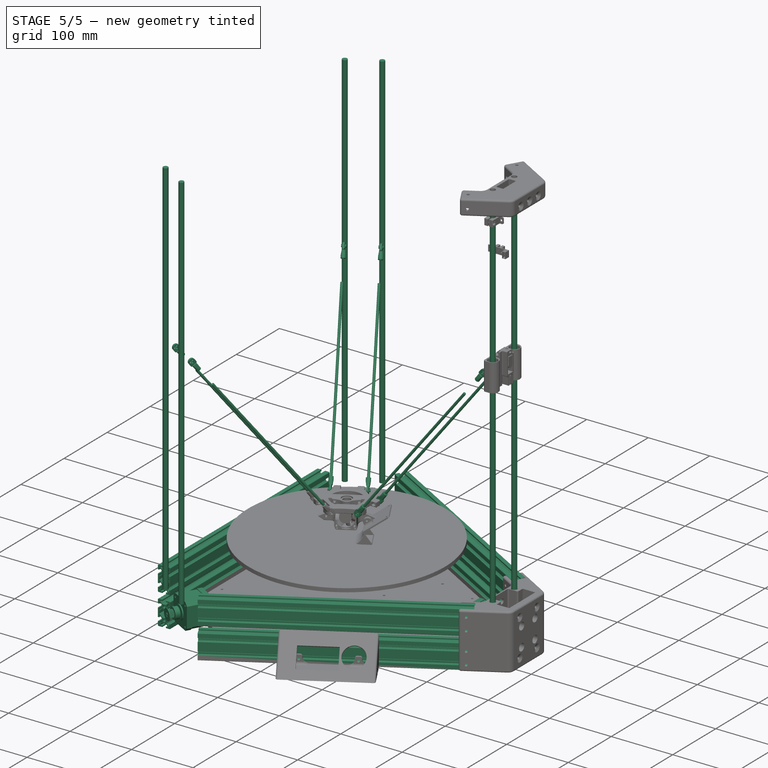
[diagram: stage 5 of 5 — iso view after this stage's code; geometry added in this stage tinted green]
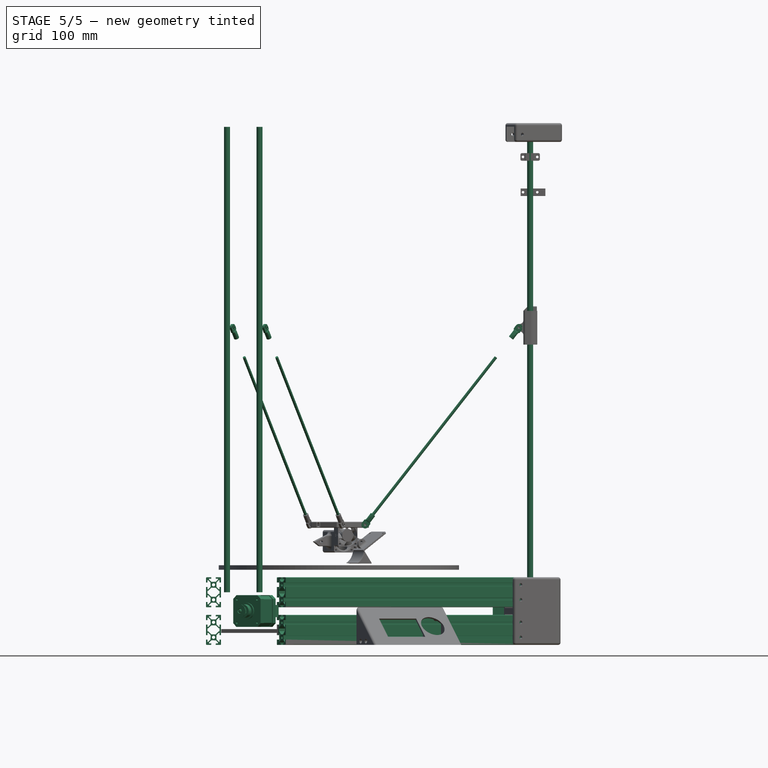
[diagram: stage 5 of 5 — front view after this stage's code; geometry added in this stage tinted green]
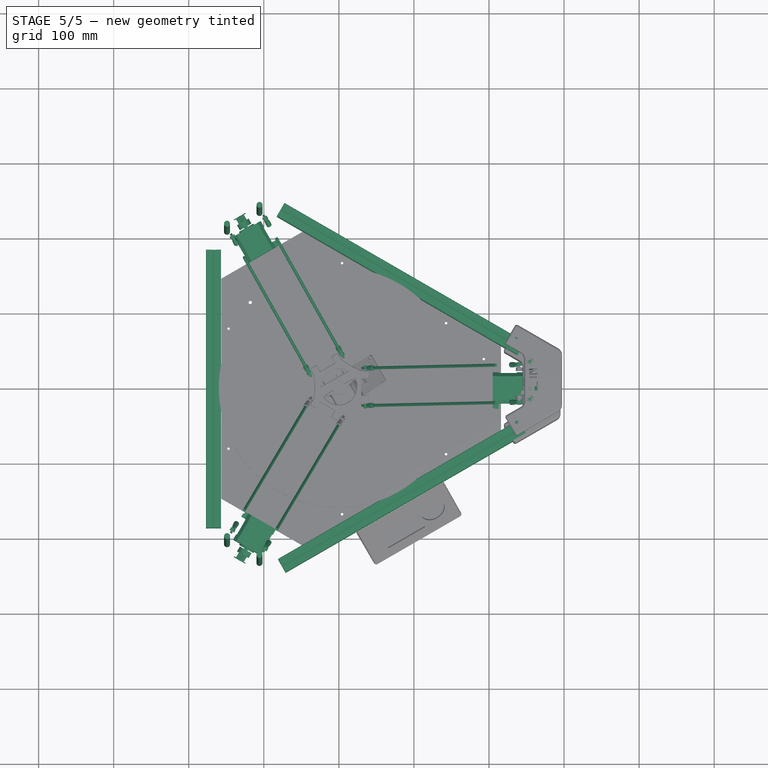
[diagram: stage 5 of 5 — top view after this stage's code; geometry added in this stage tinted green]
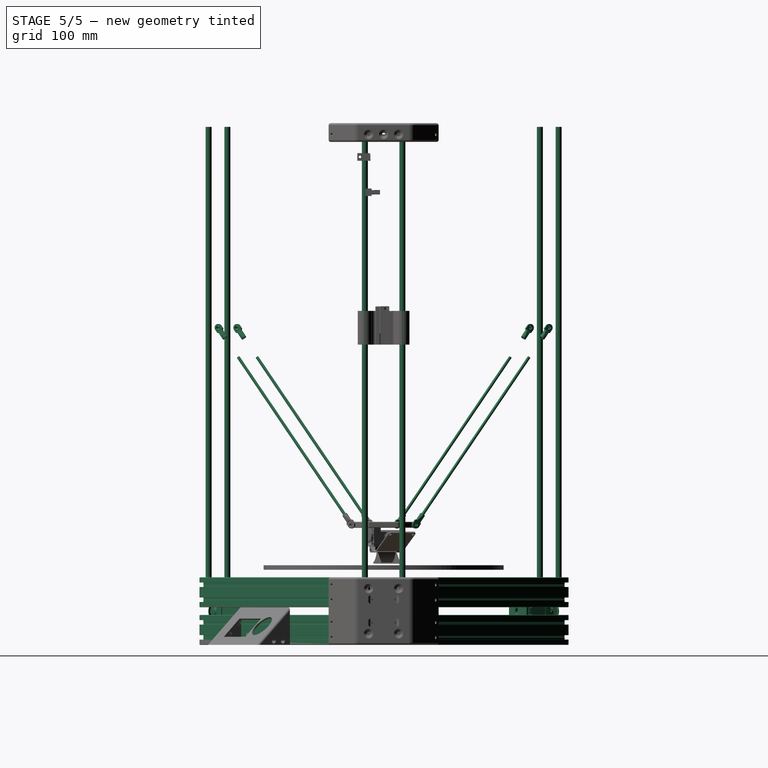
[diagram: stage 5 of 5 — right view after this stage's code; geometry added in this stage tinted green]
FEATURE [Sketcher::SketchObject] Sketch048
  Placement = pos=(246.8,0,670) rot=(0.57735,-0.57735,-0.57735;2.0944rad)
  Support = -> Pocket038 [Face16]
  sketch-geometry (1):
    g0: Circle CenterX=0 CenterY=12.5 CenterZ=0 NormalX=0 NormalY=0 NormalZ=1 Radius=2.7
  constraints (3):
    c: PointOnObject(g0,g-2)
    c: DistanceY(g-1,g0) = 12.5
    c: Radius(g0) = 2.7
FEATURE [Part::Cylinder] Cylinder003
  Angle = 360
  Height = 620
  Placement = pos=(164.8,25,70) rot=(0,0,1;0rad)
  Radius = 4
FEATURE [Part::Cylinder] Cylinder004
  Angle = 360
  Height = 620
  Placement = pos=(164.8,-25,70) rot=(0,0,1;0rad)
  Radius = 4
FEATURE [Sketcher::SketchObject] Sketch079
  Placement = pos=(245.8,0,400) rot=(0.57735,-0.57735,-0.57735;2.0944rad)
  Support = -> Fillet033 [Face6]
  sketch-geometry (4):
    g0: LineSegment StartX=-21.4 StartY=27.5 StartZ=0 EndX=-16.4 EndY=27.5 EndZ=0
    g1: LineSegment StartX=-16.4 StartY=27.5 StartZ=0 EndX=-16.4 EndY=17.5 EndZ=0
    g2: LineSegment StartX=-16.4 StartY=17.5 StartZ=0 EndX=-21.4 EndY=17.5 EndZ=0
    g3: LineSegment StartX=-21.4 StartY=17.5 StartZ=0 EndX=-21.4 EndY=27.5 EndZ=0
  constraints (12):
    c: Coincident(g0,g1)
    c: Coincident(g1,g2)
    c: Coincident(g2,g3)
    c: Coincident(g3,g0)
    c: Horizontal(g0)
    c: Horizontal(g2)
    c: Vertical(g1)
    c: Vertical(g3)
    c: DistanceY(g-1,g1) = 17.5
    c: DistanceX(g2,g-1) = 21.4
    c: DistanceX(g0,g0) = 5
    c: DistanceY(g1,g1) = 10
FEATURE [Part::Feature] Part__Feature015  label="5347 ball"
  shape: bbox 6.98 x 5.29 x 5.29 mm, 11 faces (baked)
FEATURE [Part::Feature] Part__Feature016  label="rod end 5347"
  Placement = pos=(-0.00421036,0.0017498,0.0142902) rot=(0.550048,0.628407,0.550048;2.0195rad)
  shape: bbox 7.577 x 11.49 x 22.98 mm, 43 faces (baked)
FEATURE [Part::MultiFuse] Fusion  label="Ball Joint"
  Placement = pos=(150.5,25,422.5) rot=(0.357407,0.357407,0.862856;1.71777rad)
  Shapes = -> [Part__Feature015,Part__Feature016]
FEATURE [Part::Feature] Part__Feature017  label="5347 ball001"
  shape: bbox 6.98 x 5.29 x 5.29 mm, 11 faces (baked)
FEATURE [Part::Feature] Part__Feature018  label="rod end 5348"
  Placement = pos=(-0.00421036,0.0017498,0.0142902) rot=(0.550048,0.628407,0.550048;2.0195rad)
  shape: bbox 7.577 x 11.49 x 22.98 mm, 43 faces (baked)
FEATURE [Part::MultiFuse] Fusion001  label="Ball Joint001"
  Placement = pos=(150.5,-25,422.5) rot=(0.357407,0.357407,0.862856;1.71777rad)
  Shapes = -> [Part__Feature017,Part__Feature018]
FEATURE [Part::MultiFuse] Fusion006  label="Motor/Pulley"
  Placement = pos=(91,0,0) rot=(0,0,1;0rad)
  Shapes = -> [Part__Feature005,Part__Feature006]
FEATURE [Part::MultiFuse] Fusion009  label="Rails 1"
  Placement = pos=(90,0,0) rot=(0,0,1;0rad)
  Shapes = -> [Cylinder003,Cylinder004]
FEATURE [Part::Cylinder] Cylinder005
  Angle = 360
  Height = 620
  Placement = pos=(164.8,25,70) rot=(0,0,1;0rad)
  Radius = 4
FEATURE [Part::Cylinder] Cylinder006
  Angle = 360
  Height = 620
  Placement = pos=(164.8,-25,70) rot=(0,0,1;0rad)
  Radius = 4
FEATURE [Part::MultiFuse] Fusion010  label="Rails 002"
  Placement = pos=(-45,77.9423,0) rot=(0,0,1;2.0944rad)
  Shapes = -> [Cylinder005,Cylinder006]
FEATURE [Part::Cylinder] Cylinder007
  Angle = 360
  Height = 620
  Placement = pos=(164.8,25,70) rot=(0,0,1;0rad)
  Radius = 4
FEATURE [Part::Cylinder] Cylinder008
  Angle = 360
  Height = 620
  Placement = pos=(164.8,-25,70) rot=(0,0,1;0rad)
  Radius = 4
FEATURE [Part::MultiFuse] Fusion011  label="Rails 003"
  Placement = pos=(-45,-77.9423,0) rot=(0,0,-1;2.0944rad)
  Shapes = -> [Cylinder007,Cylinder008]
FEATURE [App::DocumentObjectGroup] Group007  label="Rails"
  Group = -> [Fusion009,Fusion010,Fusion011]
FEATURE [Part::MultiFuse] Fusion012  label="Carriage Ball Joints 1 "
  Placement = pos=(89.3,0,0) rot=(0,0,1;0rad)
  Shapes = -> [Fusion001,Fusion]
FEATURE [Part::Feature] Part__Feature033  label="PM Wantai 609  Nema 018"
  Placement = pos=(114,0,45) rot=(0.57735,0.57735,0.57735;2.0944rad)
  shape: bbox 60 x 48.3 x 42.3 mm, 226 faces (baked)
FEATURE [Part::Feature] Part__Feature034  label="GT2 Pulley001"
  Placement = pos=(165,0,45) rot=(0,-1,0;1.5708rad)
  shape: bbox 16.13 x 17.78 x 17.78 mm, 134 faces (baked)
FEATURE [Part::MultiFuse] Fusion013  label="Motor/Pulley001"
  Placement = pos=(-45.5,78.8083,0) rot=(0,0,1;2.0944rad)
  Shapes = -> [Part__Feature033,Part__Feature034]
FEATURE [Part::Feature] Part__Feature035  label="PM Wantai 609  Nema 019"
  Placement = pos=(114,0,45) rot=(0.57735,0.57735,0.57735;2.0944rad)
  shape: bbox 60 x 48.3 x 42.3 mm, 226 faces (baked)
FEATURE [Part::Feature] Part__Feature036  label="GT2 Pulley002"
  Placement = pos=(165,0,45) rot=(0,-1,0;1.5708rad)
  shape: bbox 16.13 x 17.78 x 17.78 mm, 134 faces (baked)
FEATURE [Part::MultiFuse] Fusion014  label="Motor/Pulley002"
  Placement = pos=(-45.5,-78.8083,0) rot=(0,0,-1;2.0944rad)
  Shapes = -> [Part__Feature035,Part__Feature036]
FEATURE [App::DocumentObjectGroup] Group015  label="Motors"
  Group = -> [Fusion006,Fusion013,Fusion014]
FEATURE [Part::Feature] Part__Feature037  label="5347 ball002"
  shape: bbox 6.98 x 5.29 x 5.29 mm, 11 faces (baked)
FEATURE [Part::Feature] Part__Feature038  label="rod end 5349"
  Placement = pos=(-0.00421036,0.0017498,0.0142902) rot=(0.550048,0.628407,0.550048;2.0195rad)
  shape: bbox 7.577 x 11.49 x 22.98 mm, 43 faces (baked)
FEATURE [Part::MultiFuse] Fusion015  label="Ball Joint002"
  Placement = pos=(150.5,25,422.5) rot=(0.357407,0.357407,0.862856;1.71777rad)
  Shapes = -> [Part__Feature037,Part__Feature038]
FEATURE [Part::Feature] Part__Feature039  label="5347 ball003"
  shape: bbox 6.98 x 5.29 x 5.29 mm, 11 faces (baked)
FEATURE [Part::Feature] Part__Feature040  label="rod end 5350"
  Placement = pos=(-0.00421036,0.0017498,0.0142902) rot=(0.550048,0.628407,0.550048;2.0195rad)
  shape: bbox 7.577 x 11.49 x 22.98 mm, 43 faces (baked)
FEATURE [Part::MultiFuse] Fusion016  label="Ball Joint003"
  Placement = pos=(150.5,-25,422.5) rot=(0.357407,0.357407,0.862856;1.71777rad)
  Shapes = -> [Part__Feature039,Part__Feature040]
FEATURE [Part::MultiFuse] Fusion017  label="Carriage Ball Joints 2"
  Placement = pos=(-44.65,77.3361,0) rot=(0,0,1;2.0944rad)
  Shapes = -> [Fusion016,Fusion015]
FEATURE [Part::Feature] Part__Feature041  label="5347 ball004"
  shape: bbox 6.98 x 5.29 x 5.29 mm, 11 faces (baked)
FEATURE [Part::Feature] Part__Feature042  label="rod end 5351"
  Placement = pos=(-0.00421036,0.0017498,0.0142902) rot=(0.550048,0.628407,0.550048;2.0195rad)
  shape: bbox 7.577 x 11.49 x 22.98 mm, 43 faces (baked)
FEATURE [Part::MultiFuse] Fusion018  label="Ball Joint004"
  Placement = pos=(150.5,25,422.5) rot=(0.357407,0.357407,0.862856;1.71777rad)
  Shapes = -> [Part__Feature041,Part__Feature042]
FEATURE [Part::Feature] Part__Feature043  label="5347 ball005"
  shape: bbox 6.98 x 5.29 x 5.29 mm, 11 faces (baked)
FEATURE [Part::Feature] Part__Feature044  label="rod end 5352"
  Placement = pos=(-0.00421036,0.0017498,0.0142902) rot=(0.550048,0.628407,0.550048;2.0195rad)
  shape: bbox 7.577 x 11.49 x 22.98 mm, 43 faces (baked)
FEATURE [Part::MultiFuse] Fusion019  label="Ball Joint005"
  Placement = pos=(150.5,-25,422.5) rot=(0.357407,0.357407,0.862856;1.71777rad)
  Shapes = -> [Part__Feature043,Part__Feature044]
FEATURE [Part::MultiFuse] Fusion020  label="Carriage Ball Joints 3"
  Placement = pos=(-44.65,-77.3361,0) rot=(0,0,-1;2.0944rad)
  Shapes = -> [Fusion019,Fusion018]
FEATURE [App::DocumentObjectGroup] Group014  label="Carriage Ball Joints"
  Group = -> [Fusion012,Fusion017,Fusion020]
FEATURE [Part::Feature] Part__Feature045  label="_NFS5-2060-691"
  Placement = pos=(-137.5,238.157,690) rot=(0,0,1;2.0944rad)
  shape: bbox 61.23 x 46.59 x 690 mm, 165 faces (baked)
FEATURE [Part::Feature] Part__Feature046  label="_NFS5-2060-692"
  Placement = pos=(-137.5,-238.157,690) rot=(0,0,-1;2.0944rad)
  shape: bbox 61.23 x 46.59 x 690 mm, 165 faces (baked)
FEATURE [Part::Feature] Part__Feature047  label="_NFS5-2020-370"
  Placement = pos=(-166,-185,680) rot=(1,0,0;1.5708rad)
  shape: bbox 20 x 370 x 20 mm, 79 faces (baked)
FEATURE [Part::Feature] Part__Feature048  label="_NFS5-2040-370"
  Placement = pos=(-167,-186,20) rot=(1,0,0;1.5708rad)
  shape: bbox 20 x 370 x 40 mm, 134 faces (baked)
FEATURE [Part::Feature] Part__Feature049  label="_NFS5-2040-371"
  Placement = pos=(-167,-186,70) rot=(1,0,0;1.5708rad)
  shape: bbox 20 x 370 x 40 mm, 134 faces (baked)
FEATURE [Part::MultiFuse] Fusion021  label="Bottom Extrusion 1"
  Shapes = -> [Part__Feature049,Part__Feature048]
FEATURE [Part::Feature] Part__Feature050  label="_NFS5-2040-372"
  Placement = pos=(-167,-186,20) rot=(1,0,0;1.5708rad)
  shape: bbox 20 x 370 x 40 mm, 134 faces (baked)
FEATURE [Part::Feature] Part__Feature051  label="_NFS5-2040-373"
  Placement = pos=(-167,-186,70) rot=(1,0,0;1.5708rad)
  shape: bbox 20 x 370 x 40 mm, 134 faces (baked)
FEATURE [Part::MultiFuse] Fusion022  label="Bottom Extrusion 002"
  Placement = pos=(0,0,0) rot=(0,0,1;2.0944rad)
  Shapes = -> [Part__Feature051,Part__Feature050]
FEATURE [Part::Feature] Part__Feature052  label="_NFS5-2040-374"
  Placement = pos=(-167,-186,20) rot=(1,0,0;1.5708rad)
  shape: bbox 20 x 370 x 40 mm, 134 faces (baked)
FEATURE [Part::Feature] Part__Feature053  label="_NFS5-2040-375"
  Placement = pos=(-167,-186,70) rot=(1,0,0;1.5708rad)
  shape: bbox 20 x 370 x 40 mm, 134 faces (baked)
FEATURE [Part::MultiFuse] Fusion023  label="Bottom Extrusion 003"
  Placement = pos=(0,0,0) rot=(0,0,-1;2.0944rad)
  Shapes = -> [Part__Feature053,Part__Feature052]
FEATURE [Part::Feature] Part__Feature054  label="_NFS5-2020-371"
  Placement = pos=(243.215,-51.2602,680) rot=(0.377964,0.654654,0.654654;2.41886rad)
  shape: bbox 330.4 x 202.3 x 20 mm, 79 faces (baked)
FEATURE [Part::Feature] Part__Feature055  label="_NFS5-2020-372"
  Placement = pos=(-77.2147,236.26,680) rot=(-0.377964,0.654654,0.654654;3.86433rad)
  shape: bbox 330.4 x 202.3 x 20 mm, 79 faces (baked)
FEATURE [App::DocumentObjectGroup] Group004  label="Extrusions"
  Group = -> [Part__Feature,Part__Feature045,Part__Feature046,Fusion021,Fusion022,Fusion023,Part__Feature047,Part__Feature054,Part__Feature055]
FEATURE [Part::Cylinder] Cylinder009  label="Cylinder"
  Angle = 360
  Height = 270
  Placement = pos=(43,25,170.5) rot=(0,1,0;0.663225rad)
  Radius = 2
FEATURE [Part::Cylinder] Cylinder010  label="Cylinder009"
  Angle = 360
  Height = 270
  Placement = pos=(43,-25,170.5) rot=(0,1,0;0.663225rad)
  Radius = 2
FEATURE [Part::MultiFuse] Fusion024  label="Arms"
  Shapes = -> [Cylinder009,Cylinder010]
FEATURE [Part::Cylinder] Cylinder011  label="Cylinder019"
  Angle = 360
  Height = 270
  Placement = pos=(43,25,170.5) rot=(0,1,0;0.663225rad)
  Radius = 2
FEATURE [Part::Cylinder] Cylinder012  label="Cylinder011"
  Angle = 360
  Height = 270
  Placement = pos=(43,-25,170.5) rot=(0,1,0;0.663225rad)
  Radius = 2
FEATURE [Part::MultiFuse] Fusion025  label="Arms001"
  Placement = pos=(0,0,0) rot=(0,0,1;2.0944rad)
  Shapes = -> [Cylinder011,Cylinder012]
FEATURE [Part::Cylinder] Cylinder013  label="Cylinder020"
  Angle = 360
  Height = 270
  Placement = pos=(43,25,170.5) rot=(0,1,0;0.663225rad)
  Radius = 2
FEATURE [Part::Cylinder] Cylinder014  label="Cylinder021"
  Angle = 360
  Height = 270
  Placement = pos=(43,-25,170.5) rot=(0,1,0;0.663225rad)
  Radius = 2
FEATURE [Part::MultiFuse] Fusion026  label="Arms002"
  Placement = pos=(0,0,0) rot=(0,0,-1;2.0944rad)
  Shapes = -> [Cylinder013,Cylinder014]
FEATURE [App::DocumentObjectGroup] Group022  label="Delta Arms"
  Group = -> [Fusion024,Fusion025,Fusion026]
FEATURE [Part::Feature] Part__Feature056  label="5347 ball006"
  shape: bbox 6.98 x 5.29 x 5.29 mm, 11 faces (baked)
FEATURE [Part::Feature] Part__Feature057  label="rod end 5353"
  Placement = pos=(-0.00421036,0.0017498,0.0142902) rot=(0.550048,0.628407,0.550048;2.0195rad)
  shape: bbox 7.577 x 11.49 x 22.98 mm, 43 faces (baked)
FEATURE [Part::MultiFuse] Fusion027  label="Ball Joint006"
  Placement = pos=(0,25,0) rot=(0.357407,0.357407,0.862856;1.71777rad)
  Shapes = -> [Part__Feature056,Part__Feature057]
FEATURE [Part::Feature] Part__Feature058  label="5347 ball007"
  shape: bbox 6.98 x 5.29 x 5.29 mm, 11 faces (baked)
FEATURE [Part::Feature] Part__Feature059  label="rod end 5354"
  Placement = pos=(-0.00421036,0.0017498,0.0142902) rot=(0.550048,0.628407,0.550048;2.0195rad)
  shape: bbox 7.577 x 11.49 x 22.98 mm, 43 faces (baked)
FEATURE [Part::MultiFuse] Fusion028  label="Ball Joint007"
  Placement = pos=(0,-25,0) rot=(0.357407,0.357407,0.862856;1.71777rad)
  Shapes = -> [Part__Feature058,Part__Feature059]
FEATURE [Part::MultiFuse] Fusion029  label="Effector Ball Joints 1"
  Placement = pos=(35,0,160) rot=(0,1,0;3.14159rad)
  Shapes = -> [Fusion028,Fusion027]
FEATURE [Part::MultiFuse] Fusion032  label="Effector Ball Joints 002"
  Placement = pos=(-17.5,30.3109,160) rot=(0.866025,-0.5,0;3.14159rad)
  Shapes = -> [Fusion031,Fusion030]
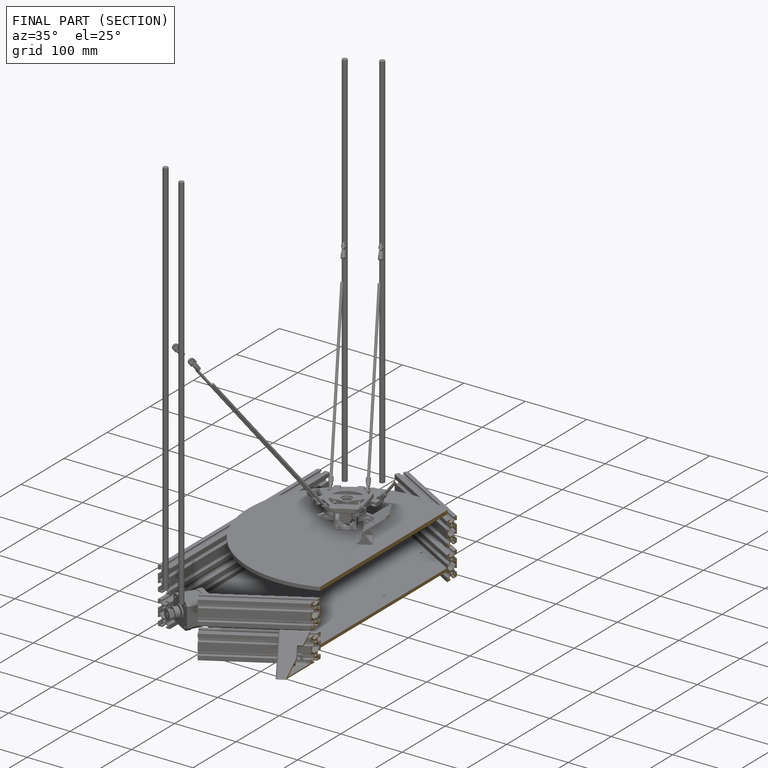
[diagram: finished part — half-section view (interior)]
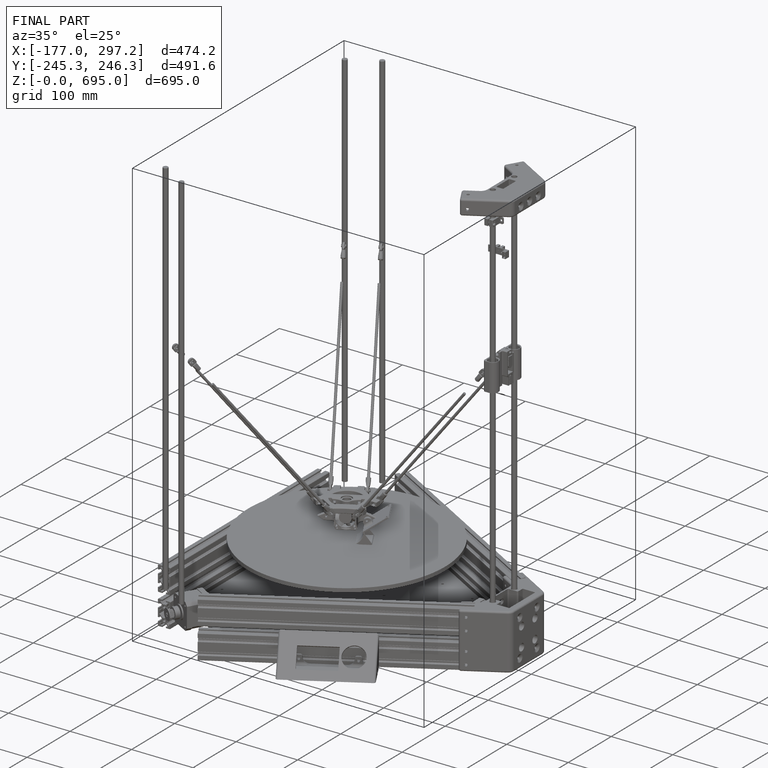
[diagram: finished part — iso view with bounding-box wireframe]
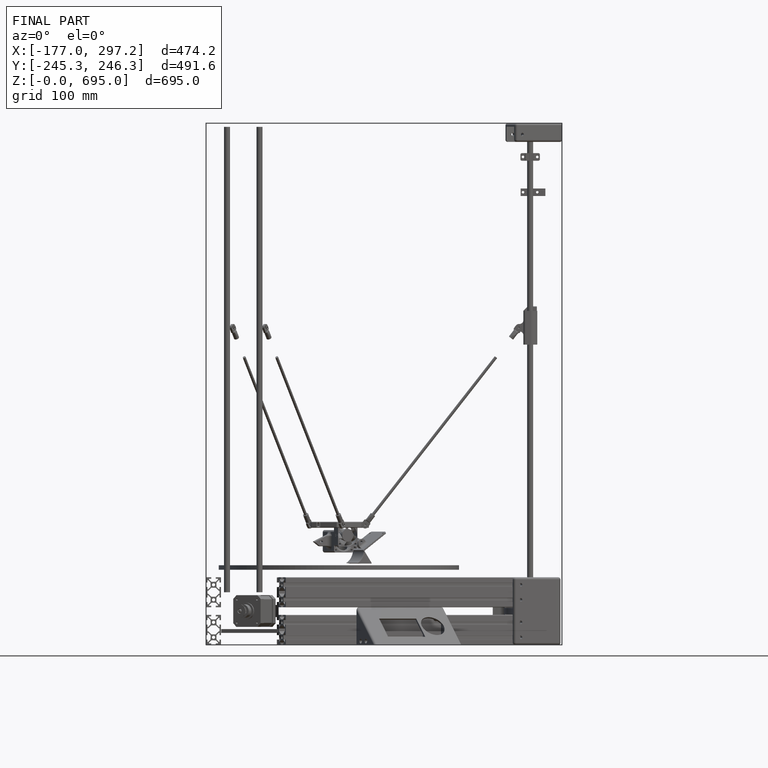
[diagram: finished part — front view with bounding-box wireframe]
